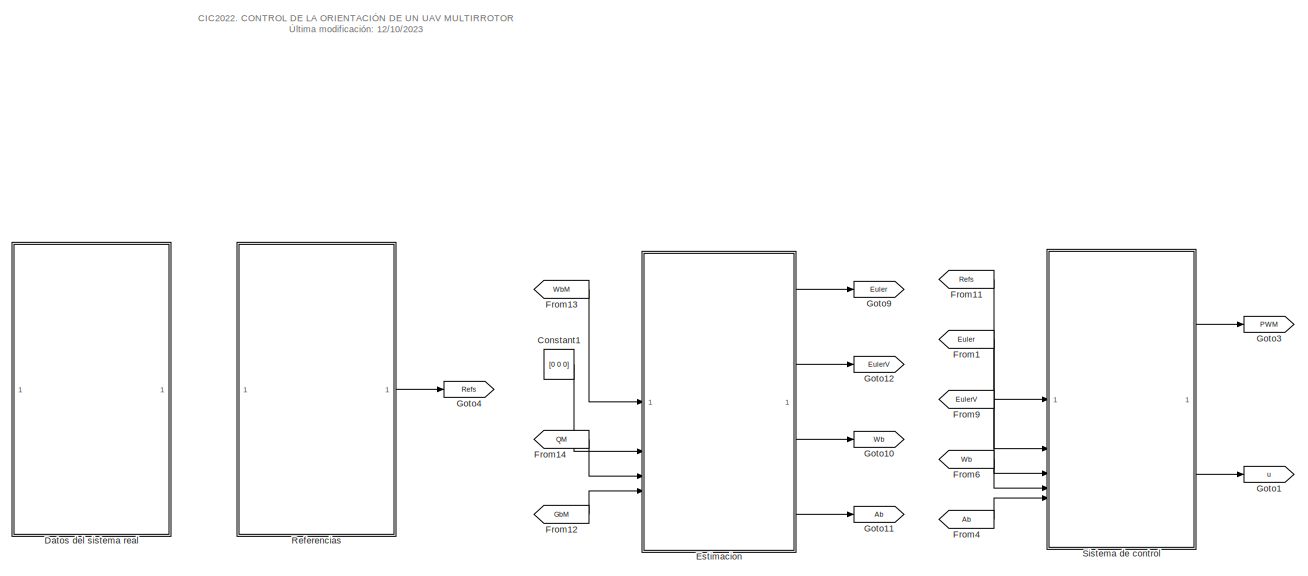
[diagram: root canvas - part 1/2, left side, full height]
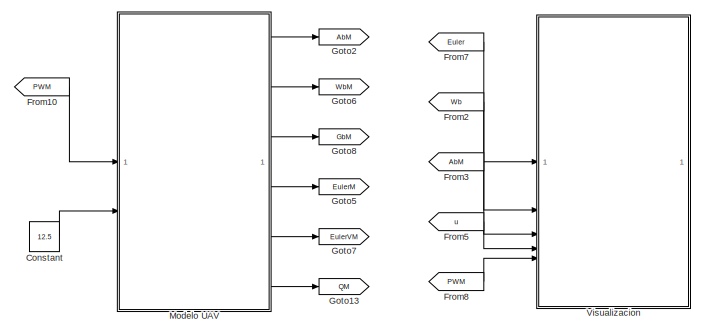
[diagram: root canvas - part 2/2, bottom right region]
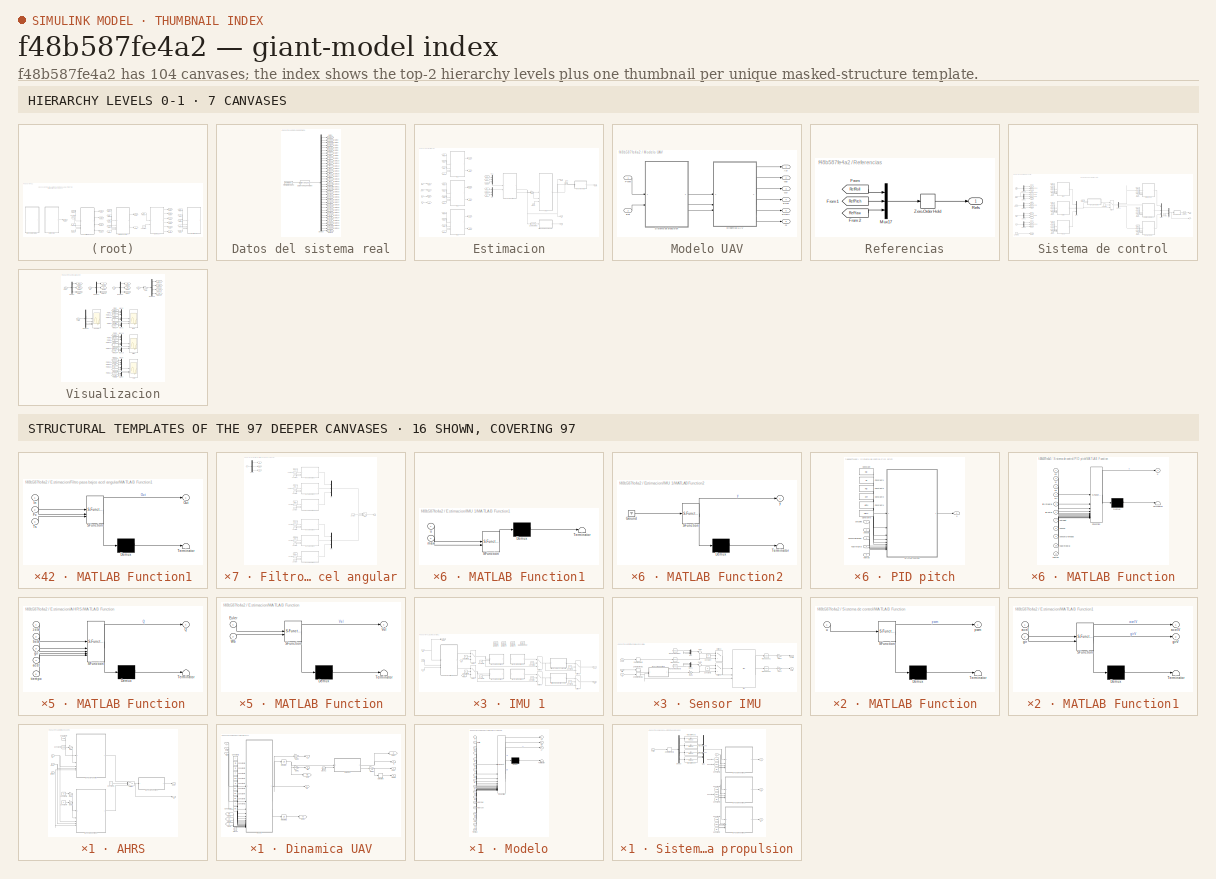
[diagram: thumbnail index - top-2 hierarchy levels (7 canvases) + 16 structural-template representatives of the remaining 97 canvases]
MODEL slx_f48b587fe4a2
KIND model
CONFIG AbsTol = auto
CONFIG EnableMultiTasking = off
CONFIG FixedStep = Ts
CONFIG MaxStep = auto
CONFIG MinStep = auto
CONFIG RelTol = 1e-3
CONFIG SampleTimeConstraint = Unconstrained
CONFIG SolverName = FixedStepAuto
CONFIG StartTime = 0.0
CONFIG StopTime = 70
BLOCK [Constant] Constant
  Value = 12.5
BLOCK [Constant] Constant1
  Value = [0 0 0]
BLOCK [SubSystem] Datos del sistema real
BLOCK [DataTypeConversion] Datos del sistema real/Data Type Conversion
  OutDataTypeStr = double
  RndMeth = Floor
  SaturateOnIntegerOverflow = off
BLOCK [Demux] Datos del sistema real/Demux
  Outputs = 38
BLOCK [FromWorkspace] Datos del sistema real/From Workspace
  SampleTime = Ts
  VariableName = Datos
BLOCK [Goto] Datos del sistema real/Goto1
  GotoTag = RefRoll
  TagVisibility = global
BLOCK [Goto] Datos del sistema real/Goto10
  GotoTag = pImu1
  TagVisibility = global
BLOCK [Goto] Datos del sistema real/Goto11
  GotoTag = qImu1
  TagVisibility = global
BLOCK [Goto] Datos del sistema real/Goto12
  GotoTag = rImu1
  TagVisibility = global
BLOCK [Goto] Datos del sistema real/Goto13
  GotoTag = mxVirt
  TagVisibility = global
BLOCK [Goto] Datos del sistema real/Goto14
  GotoTag = myVirt
  TagVisibility = global
BLOCK [Goto] Datos del sistema real/Goto15
  GotoTag = mzVirt
  TagVisibility = global
BLOCK [Goto] Datos del sistema real/Goto2
  GotoTag = RefPitch
  TagVisibility = global
BLOCK [Goto] Datos del sistema real/Goto21
  GotoTag = pImu2
  TagVisibility = global
BLOCK [Goto] Datos del sistema real/Goto22
  GotoTag = qImu2
  TagVisibility = global
BLOCK [Goto] Datos del sistema real/Goto26
  GotoTag = rImu2
  TagVisibility = global
BLOCK [Goto] Datos del sistema real/Goto27
  GotoTag = pImu3
  TagVisibility = global
BLOCK [Goto] Datos del sistema real/Goto28
  GotoTag = qImu3
  TagVisibility = global
BLOCK [Goto] Datos del sistema real/Goto29
  GotoTag = rImu3
  TagVisibility = global
BLOCK [Goto] Datos del sistema real/Goto3
  GotoTag = RefYaw
  TagVisibility = global
BLOCK [Goto] Datos del sistema real/Goto30
  GotoTag = axImuVirt
  TagVisibility = global
BLOCK [Goto] Datos del sistema real/Goto31
  GotoTag = ayImuVirt
  TagVisibility = global
BLOCK [Goto] Datos del sistema real/Goto32
  GotoTag = azImuVirt
  TagVisibility = global
BLOCK [Goto] Datos del sistema real/Goto33
  GotoTag = axImu1
  TagVisibility = global
BLOCK [Goto] Datos del sistema real/Goto34
  GotoTag = ayImu1
  TagVisibility = global
BLOCK [Goto] Datos del sistema real/Goto35
  GotoTag = azImu1
  TagVisibility = global
BLOCK [Goto] Datos del sistema real/Goto36
  GotoTag = axImu2
  TagVisibility = global
BLOCK [Goto] Datos del sistema real/Goto37
  GotoTag = ayImu2
  TagVisibility = global
BLOCK [Goto] Datos del sistema real/Goto38
  GotoTag = azImu2
  TagVisibility = global
BLOCK [Goto] Datos del sistema real/Goto39
  GotoTag = axImu3
  TagVisibility = global
BLOCK [Goto] Datos del sistema real/Goto4
  GotoTag = RollObj
  TagVisibility = global
BLOCK [Goto] Datos del sistema real/Goto40
  GotoTag = ayImu3
  TagVisibility = global
BLOCK [Goto] Datos del sistema real/Goto41
  GotoTag = azImu3
  TagVisibility = global
BLOCK [Goto] Datos del sistema real/Goto42
  GotoTag = uRollObj
  TagVisibility = global
BLOCK [Goto] Datos del sistema real/Goto43
  GotoTag = uPitchObj
  TagVisibility = global
BLOCK [Goto] Datos del sistema real/Goto44
  GotoTag = uYawObj
  TagVisibility = global
BLOCK [Goto] Datos del sistema real/Goto45
  GotoTag = uAltObj
  TagVisibility = global
BLOCK [Goto] Datos del sistema real/Goto5
  GotoTag = PitchObj
  TagVisibility = global
BLOCK [Goto] Datos del sistema real/Goto6
  GotoTag = YawObj
  TagVisibility = global
BLOCK [Goto] Datos del sistema real/Goto7
  GotoTag = pObj
  TagVisibility = global
BLOCK [Goto] Datos del sistema real/Goto8
  GotoTag = qObj
  TagVisibility = global
BLOCK [Goto] Datos del sistema real/Goto9
  GotoTag = rObj
  TagVisibility = global
BLOCK [SubSystem] Estimacion
BLOCK [SubSystem] Estimacion/AHRS
  SystemSampleTime = TsPos
  TreatAsAtomicUnit = on
BLOCK [Constant] Estimacion/AHRS/Constant1
  Value = T
BLOCK [Constant] Estimacion/AHRS/Constant2
  Value = Beta
BLOCK [Constant] Estimacion/AHRS/Constant3
  Value = Zeta
BLOCK [Constant] Estimacion/AHRS/Constant4
  Value = Ki
BLOCK [Constant] Estimacion/AHRS/Constant5
  Value = Kp
BLOCK [Outport] Estimacion/AHRS/Euler
BLOCK [Gain] Estimacion/AHRS/Gain
  Gain = 2
BLOCK [Gain] Estimacion/AHRS/Gain1
  Gain = 2
BLOCK [Gain] Estimacion/AHRS/Gain2
  Gain = 2
BLOCK [SubSystem] Estimacion/AHRS/MATLAB Function
  ErrorFcn = Stateflow.Translate.translate
  PermitHierarchicalResolution = ExplicitOnly
  SFBlockType = MATLAB Function
BLOCK [Demux] Estimacion/AHRS/MATLAB Function/ Demux 
  Outputs = 1
BLOCK [S-Function] Estimacion/AHRS/MATLAB Function/ SFunction 
  EnableBusSupport = on
  FunctionName = sf_sfun
  PortCounts = [5 2]
  SFcnIsStateOwnerBlock = off
  SFunctionDeploymentMode = off
  Tag = Stateflow S-Function 1
BLOCK [Terminator] Estimacion/AHRS/MATLAB Function/ Terminator 
BLOCK [Outport] Estimacion/AHRS/MATLAB Function/Q
BLOCK [Inport] Estimacion/AHRS/MATLAB Function/acel
  Port = 4
BLOCK [Inport] Estimacion/AHRS/MATLAB Function/beta
  Port = 2
BLOCK [Inport] Estimacion/AHRS/MATLAB Function/gir
  Port = 3
BLOCK [Inport] Estimacion/AHRS/MATLAB Function/tiempo
  Port = 5
BLOCK [Inport] Estimacion/AHRS/MATLAB Function/zeta
BLOCK [SubSystem] Estimacion/AHRS/MATLAB Function2
  ErrorFcn = Stateflow.Translate.translate
  PermitHierarchicalResolution = ExplicitOnly
  SFBlockType = MATLAB Function
BLOCK [Demux] Estimacion/AHRS/MATLAB Function2/ Demux 
  Outputs = 1
BLOCK [S-Function] Estimacion/AHRS/MATLAB Function2/ SFunction 
  EnableBusSupport = on
  FunctionName = sf_sfun
  PortCounts = [5 2]
  SFcnIsStateOwnerBlock = off
  SFunctionDeploymentMode = off
  Tag = Stateflow S-Function 6
BLOCK [Terminator] Estimacion/AHRS/MATLAB Function2/ Terminator 
BLOCK [Outport] Estimacion/AHRS/MATLAB Function2/Q
BLOCK [Inport] Estimacion/AHRS/MATLAB Function2/acel
  Port = 4
BLOCK [Inport] Estimacion/AHRS/MATLAB Function2/gir
  Port = 3
BLOCK [Inport] Estimacion/AHRS/MATLAB Function2/ki
  Port = 2
BLOCK [Inport] Estimacion/AHRS/MATLAB Function2/kp
BLOCK [Inport] Estimacion/AHRS/MATLAB Function2/tiempo
  Port = 5
BLOCK [SubSystem] Estimacion/AHRS/MATLAB Function4
  ErrorFcn = Stateflow.Translate.translate
  PermitHierarchicalResolution = ExplicitOnly
  SFBlockType = MATLAB Function
BLOCK [Demux] Estimacion/AHRS/MATLAB Function4/ Demux 
  Outputs = 1
BLOCK [S-Function] Estimacion/AHRS/MATLAB Function4/ SFunction 
  EnableBusSupport = on
  FunctionName = sf_sfun
  PortCounts = [1 2]
  SFcnIsStateOwnerBlock = off
  SFunctionDeploymentMode = off
  Tag = Stateflow S-Function 10
BLOCK [Terminator] Estimacion/AHRS/MATLAB Function4/ Terminator 
BLOCK [Outport] Estimacion/AHRS/MATLAB Function4/Euler
BLOCK [Inport] Estimacion/AHRS/MATLAB Function4/Q
BLOCK [Outport] Estimacion/AHRS/Q
  Port = 2
BLOCK [Switch] Estimacion/AHRS/Switch
  Criteria = u2 > Threshold
  InputSameDT = off
  SaturateOnIntegerOverflow = off
BLOCK [Inport] Estimacion/AHRS/acel
BLOCK [Inport] Estimacion/AHRS/gir
  Port = 2
BLOCK [Inport] Estimacion/AHRS/tiempo
  Port = 3
BLOCK [Outport] Estimacion/Ab
  Port = 4
BLOCK [Clock] Estimacion/Clock2
BLOCK [Reference] Estimacion/Discrete Derivative  REF=simulink/Discrete/Discrete Derivative
  SourceBlock = simulink/Discrete/Discrete Derivative
  SourceType = Discrete Derivative
BLOCK [Outport] Estimacion/Euler
BLOCK [Outport] Estimacion/EulerV
  Port = 2
BLOCK [SubSystem] Estimacion/Filtro pasa bajos acel angular
  SystemSampleTime = TsVel
  TreatAsAtomicUnit = on
BLOCK [Constant] Estimacion/Filtro pasa bajos acel angular/Constant
  Value = P
BLOCK [Constant] Estimacion/Filtro pasa bajos acel angular/Constant1
  Value = Fc
BLOCK [Constant] Estimacion/Filtro pasa bajos acel angular/Constant10
  Value = Fc
BLOCK [Constant] Estimacion/Filtro pasa bajos acel angular/Constant11
  Value = Fc
BLOCK [Constant] Estimacion/Filtro pasa bajos acel angular/Constant12
  Value = TsF
BLOCK [Constant] Estimacion/Filtro pasa bajos acel angular/Constant2
  Value = TsF
BLOCK [Constant] Estimacion/Filtro pasa bajos acel angular/Constant3
  Value = Fc
BLOCK [Constant] Estimacion/Filtro pasa bajos acel angular/Constant4
  Value = TsF
BLOCK [Constant] Estimacion/Filtro pasa bajos acel angular/Constant5
  Value = TsF
BLOCK [Constant] Estimacion/Filtro pasa bajos acel angular/Constant6
  Value = Fc
BLOCK [Constant] Estimacion/Filtro pasa bajos acel angular/Constant7
  Value = TsF
BLOCK [Constant] Estimacion/Filtro pasa bajos acel angular/Constant8
  Value = Fc
BLOCK [Constant] Estimacion/Filtro pasa bajos acel angular/Constant9
  Value = TsF
BLOCK [Demux] Estimacion/Filtro pasa bajos acel angular/Demux
  Outputs = 3
BLOCK [From] Estimacion/Filtro pasa bajos acel angular/From1
  GotoTag = In2
BLOCK [From] Estimacion/Filtro pasa bajos acel angular/From10
  GotoTag = In1
BLOCK [From] Estimacion/Filtro pasa bajos acel angular/From11
  GotoTag = In3
BLOCK [From] Estimacion/Filtro pasa bajos acel angular/From13
  GotoTag = In1
BLOCK [From] Estimacion/Filtro pasa bajos acel angular/From2
  GotoTag = In3
BLOCK [From] Estimacion/Filtro pasa bajos acel angular/From9
  GotoTag = In2
BLOCK [Goto] Estimacion/Filtro pasa bajos acel angular/Goto1
  GotoTag = In2
BLOCK [Goto] Estimacion/Filtro pasa bajos acel angular/Goto2
  GotoTag = In3
BLOCK [Goto] Estimacion/Filtro pasa bajos acel angular/Goto4
  GotoTag = In1
BLOCK [Inport] Estimacion/Filtro pasa bajos acel angular/In
BLOCK [SubSystem] Estimacion/Filtro pasa bajos acel angular/MATLAB Function1
  ErrorFcn = Stateflow.Translate.translate
  LibrarySourceBlock = simulink/User-Defined\nFunctions/MATLAB Function
  PermitHierarchicalResolution = ExplicitOnly
  SFBlockType = MATLAB Function
  TreatAsAtomicUnit = on
BLOCK [Demux] Estimacion/Filtro pasa bajos acel angular/MATLAB Function1/ Demux 
  Outputs = 1
BLOCK [S-Function] Estimacion/Filtro pasa bajos acel angular/MATLAB Function1/ SFunction 
  EnableBusSupport = on
  FunctionName = sf_sfun
  PortCounts = [3 2]
  SFcnIsStateOwnerBlock = off
  SFunctionDeploymentMode = off
  Tag = Stateflow S-Function 52
BLOCK [Terminator] Estimacion/Filtro pasa bajos acel angular/MATLAB Function1/ Terminator 
BLOCK [Inport] Estimacion/Filtro pasa bajos acel angular/MATLAB Function1/Fc
  Port = 2
BLOCK [Inport] Estimacion/Filtro pasa bajos acel angular/MATLAB Function1/In
BLOCK [Outport] Estimacion/Filtro pasa bajos acel angular/MATLAB Function1/Out
BLOCK [Inport] Estimacion/Filtro pasa bajos acel angular/MATLAB Function1/Ts
  Port = 3
BLOCK [SubSystem] Estimacion/Filtro pasa bajos acel angular/MATLAB Function2
  ErrorFcn = Stateflow.Translate.translate
  LibrarySourceBlock = simulink/User-Defined\nFunctions/MATLAB Function
  PermitHierarchicalResolution = ExplicitOnly
  SFBlockType = MATLAB Function
  TreatAsAtomicUnit = on
BLOCK [Demux] Estimacion/Filtro pasa bajos acel angular/MATLAB Function2/ Demux 
  Outputs = 1
BLOCK [S-Function] Estimacion/Filtro pasa bajos acel angular/MATLAB Function2/ SFunction 
  EnableBusSupport = on
  FunctionName = sf_sfun
  PortCounts = [3 2]
  SFcnIsStateOwnerBlock = off
  SFunctionDeploymentMode = off
  Tag = Stateflow S-Function 53
BLOCK [Terminator] Estimacion/Filtro pasa bajos acel angular/MATLAB Function2/ Terminator 
BLOCK [Inport] Estimacion/Filtro pasa bajos acel angular/MATLAB Function2/Fc
  Port = 2
BLOCK [Inport] Estimacion/Filtro pasa bajos acel angular/MATLAB Function2/In
BLOCK [Outport] Estimacion/Filtro pasa bajos acel angular/MATLAB Function2/Out
BLOCK [Inport] Estimacion/Filtro pasa bajos acel angular/MATLAB Function2/Ts
  Port = 3
BLOCK [SubSystem] Estimacion/Filtro pasa bajos acel angular/MATLAB Function3
  ErrorFcn = Stateflow.Translate.translate
  LibrarySourceBlock = simulink/User-Defined\nFunctions/MATLAB Function
  PermitHierarchicalResolution = ExplicitOnly
  SFBlockType = MATLAB Function
  TreatAsAtomicUnit = on
BLOCK [Demux] Estimacion/Filtro pasa bajos acel angular/MATLAB Function3/ Demux 
  Outputs = 1
BLOCK [S-Function] Estimacion/Filtro pasa bajos acel angular/MATLAB Function3/ SFunction 
  EnableBusSupport = on
  FunctionName = sf_sfun
  PortCounts = [3 2]
  SFcnIsStateOwnerBlock = off
  SFunctionDeploymentMode = off
  Tag = Stateflow S-Function 54
BLOCK [Terminator] Estimacion/Filtro pasa bajos acel angular/MATLAB Function3/ Terminator 
BLOCK [Inport] Estimacion/Filtro pasa bajos acel angular/MATLAB Function3/Fc
  Port = 2
BLOCK [Inport] Estimacion/Filtro pasa bajos acel angular/MATLAB Function3/In
BLOCK [Outport] Estimacion/Filtro pasa bajos acel angular/MATLAB Function3/Out
BLOCK [Inport] Estimacion/Filtro pasa bajos acel angular/MATLAB Function3/Ts
  Port = 3
BLOCK [SubSystem] Estimacion/Filtro pasa bajos acel angular/MATLAB Function4
  ErrorFcn = Stateflow.Translate.translate
  LibrarySourceBlock = simulink/User-Defined\nFunctions/MATLAB Function
  PermitHierarchicalResolution = ExplicitOnly
  SFBlockType = MATLAB Function
  TreatAsAtomicUnit = on
BLOCK [Demux] Estimacion/Filtro pasa bajos acel angular/MATLAB Function4/ Demux 
  Outputs = 1
BLOCK [S-Function] Estimacion/Filtro pasa bajos acel angular/MATLAB Function4/ SFunction 
  EnableBusSupport = on
  FunctionName = sf_sfun
  PortCounts = [3 2]
  SFcnIsStateOwnerBlock = off
  SFunctionDeploymentMode = off
  Tag = Stateflow S-Function 55
BLOCK [Terminator] Estimacion/Filtro pasa bajos acel angular/MATLAB Function4/ Terminator 
BLOCK [Inport] Estimacion/Filtro pasa bajos acel angular/MATLAB Function4/Fc
  Port = 2
BLOCK [Inport] Estimacion/Filtro pasa bajos acel angular/MATLAB Function4/In
BLOCK [Outport] Estimacion/Filtro pasa bajos acel angular/MATLAB Function4/Out
BLOCK [Inport] Estimacion/Filtro pasa bajos acel angular/MATLAB Function4/Ts
  Port = 3
BLOCK [SubSystem] Estimacion/Filtro pasa bajos acel angular/MATLAB Function5
  ErrorFcn = Stateflow.Translate.translate
  LibrarySourceBlock = simulink/User-Defined\nFunctions/MATLAB Function
  PermitHierarchicalResolution = ExplicitOnly
  SFBlockType = MATLAB Function
  TreatAsAtomicUnit = on
BLOCK [Demux] Estimacion/Filtro pasa bajos acel angular/MATLAB Function5/ Demux 
  Outputs = 1
BLOCK [S-Function] Estimacion/Filtro pasa bajos acel angular/MATLAB Function5/ SFunction 
  EnableBusSupport = on
  FunctionName = sf_sfun
  PortCounts = [3 2]
  SFcnIsStateOwnerBlock = off
  SFunctionDeploymentMode = off
  Tag = Stateflow S-Function 56
BLOCK [Terminator] Estimacion/Filtro pasa bajos acel angular/MATLAB Function5/ Terminator 
BLOCK [Inport] Estimacion/Filtro pasa bajos acel angular/MATLAB Function5/Fc
  Port = 2
BLOCK [Inport] Estimacion/Filtro pasa bajos acel angular/MATLAB Function5/In
BLOCK [Outport] Estimacion/Filtro pasa bajos acel angular/MATLAB Function5/Out
BLOCK [Inport] Estimacion/Filtro pasa bajos acel angular/MATLAB Function5/Ts
  Port = 3
BLOCK [SubSystem] Estimacion/Filtro pasa bajos acel angular/MATLAB Function6
  ErrorFcn = Stateflow.Translate.translate
  LibrarySourceBlock = simulink/User-Defined\nFunctions/MATLAB Function
  PermitHierarchicalResolution = ExplicitOnly
  SFBlockType = MATLAB Function
  TreatAsAtomicUnit = on
BLOCK [Demux] Estimacion/Filtro pasa bajos acel angular/MATLAB Function6/ Demux 
  Outputs = 1
BLOCK [S-Function] Estimacion/Filtro pasa bajos acel angular/MATLAB Function6/ SFunction 
  EnableBusSupport = on
  FunctionName = sf_sfun
  PortCounts = [3 2]
  SFcnIsStateOwnerBlock = off
  SFunctionDeploymentMode = off
  Tag = Stateflow S-Function 57
BLOCK [Terminator] Estimacion/Filtro pasa bajos acel angular/MATLAB Function6/ Terminator 
BLOCK [Inport] Estimacion/Filtro pasa bajos acel angular/MATLAB Function6/Fc
  Port = 2
BLOCK [Inport] Estimacion/Filtro pasa bajos acel angular/MATLAB Function6/In
BLOCK [Outport] Estimacion/Filtro pasa bajos acel angular/MATLAB Function6/Out
BLOCK [Inport] Estimacion/Filtro pasa bajos acel angular/MATLAB Function6/Ts
  Port = 3
BLOCK [Mux] Estimacion/Filtro pasa bajos acel angular/Mux
  DisplayOption = bar
  Inputs = 3
BLOCK [Mux] Estimacion/Filtro pasa bajos acel angular/Mux1
  DisplayOption = bar
  Inputs = 3
BLOCK [Switch] Estimacion/Filtro pasa bajos acel angular/Switch
  Criteria = u2 > Threshold
  InputSameDT = off
  SaturateOnIntegerOverflow = off
  Threshold = 1
BLOCK [Outport] Estimacion/Filtro pasa bajos acel angular/value
BLOCK [From] Estimacion/From1
  GotoTag = gir
BLOCK [From] Estimacion/From10
  GotoTag = Q
BLOCK [From] Estimacion/From11
  GotoTag = Q
BLOCK [From] Estimacion/From12
  GotoTag = Q
BLOCK [From] Estimacion/From13
  GotoTag = gir1
BLOCK [From] Estimacion/From14
  GotoTag = gir2
BLOCK [From] Estimacion/From15
  GotoTag = gir3
BLOCK [From] Estimacion/From16
  GotoTag = acel1
BLOCK [From] Estimacion/From17
  GotoTag = acel2
BLOCK [From] Estimacion/From18
  GotoTag = acel3
BLOCK [From] Estimacion/From2
  GotoTag = acel
BLOCK [From] Estimacion/From3
  GotoTag = gir
BLOCK [From] Estimacion/From4
  GotoTag = gir
BLOCK [From] Estimacion/From5
  GotoTag = acel
BLOCK [From] Estimacion/From6
  GotoTag = acel
BLOCK [From] Estimacion/From7
  GotoTag = Gb
BLOCK [From] Estimacion/From8
  GotoTag = Gb
BLOCK [From] Estimacion/From9
  GotoTag = Gb
BLOCK [Gain] Estimacion/Gain5
  Gain = pi/180
BLOCK [Gain] Estimacion/Gain6
  Gain = pi/180
BLOCK [Inport] Estimacion/Gb
  Port = 4
BLOCK [Goto] Estimacion/Goto1
  GotoTag = acel
BLOCK [Goto] Estimacion/Goto10
  GotoTag = gir3
BLOCK [Goto] Estimacion/Goto2
  GotoTag = Gb
BLOCK [Goto] Estimacion/Goto3
  GotoTag = Q
BLOCK [Goto] Estimacion/Goto4
  GotoTag = acel1
BLOCK [Goto] Estimacion/Goto5
  GotoTag = acel2
BLOCK [Goto] Estimacion/Goto6
  GotoTag = acel3
BLOCK [Goto] Estimacion/Goto7
  GotoTag = gir1
BLOCK [Goto] Estimacion/Goto8
  GotoTag = gir2
BLOCK [Goto] Estimacion/Goto9
  GotoTag = gir
BLOCK [SubSystem] Estimacion/IMU 1
BLOCK [Outport] Estimacion/IMU 1/Acel
BLOCK [Inport] Estimacion/IMU 1/AcelT
  Port = 2
BLOCK [Constant] Estimacion/IMU 1/Constant
  Value = ESM
BLOCK [Constant] Estimacion/IMU 1/Constant1
  Value = 20
BLOCK [Constant] Estimacion/IMU 1/Constant2
  Value = 20
BLOCK [Constant] Estimacion/IMU 1/Constant3
  Value = ESM
BLOCK [Constant] Estimacion/IMU 1/Constant4
  Value = EF
BLOCK [Constant] Estimacion/IMU 1/Constant5
  Value = E
BLOCK [Constant] Estimacion/IMU 1/Constant6
  Value = EF
BLOCK [Constant] Estimacion/IMU 1/Constant7
  Value = E
BLOCK [DataStoreMemory] Estimacion/IMU 1/Data Store Memory
  DataStoreName = acumW1
  Dimensions = 3
  InitialValue = [0 0 0]
  OutDataTypeStr = double
  ShowAdditionalParam = off
  SignalType = real
  WriteAfterWriteMsg = warning
BLOCK [DataStoreMemory] Estimacion/IMU 1/Data Store Memory1
  DataStoreName = cntW1
  OutDataTypeStr = double
  ShowAdditionalParam = off
  SignalType = real
  WriteAfterWriteMsg = warning
BLOCK [DataStoreMemory] Estimacion/IMU 1/Data Store Memory2
  DataStoreName = acumA1
  Dimensions = 3
  InitialValue = [0 0 0]
  OutDataTypeStr = double
  ShowAdditionalParam = off
  SignalType = real
  WriteAfterWriteMsg = warning
BLOCK [DataStoreMemory] Estimacion/IMU 1/Data Store Memory3
  DataStoreName = cntA1
  OutDataTypeStr = double
  ShowAdditionalParam = off
  SignalType = real
  WriteAfterWriteMsg = warning
BLOCK [SubSystem] Estimacion/IMU 1/Filtro pasa bajos  acelerometro
  SystemSampleTime = TsSenF
  TreatAsAtomicUnit = on
BLOCK [Constant] Estimacion/IMU 1/Filtro pasa bajos  acelerometro/Constant
  Value = P
BLOCK [Constant] Estimacion/IMU 1/Filtro pasa bajos  acelerometro/Constant1
  Value = Fc
BLOCK [Constant] Estimacion/IMU 1/Filtro pasa bajos  acelerometro/Constant10
  Value = Fc
BLOCK [Constant] Estimacion/IMU 1/Filtro pasa bajos  acelerometro/Constant11
  Value = Fc
BLOCK [Constant] Estimacion/IMU 1/Filtro pasa bajos  acelerometro/Constant12
  Value = TsF
BLOCK [Constant] Estimacion/IMU 1/Filtro pasa bajos  acelerometro/Constant2
  Value = TsF
BLOCK [Constant] Estimacion/IMU 1/Filtro pasa bajos  acelerometro/Constant3
  Value = Fc
BLOCK [Constant] Estimacion/IMU 1/Filtro pasa bajos  acelerometro/Constant4
  Value = TsF
BLOCK [Constant] Estimacion/IMU 1/Filtro pasa bajos  acelerometro/Constant5
  Value = TsF
BLOCK [Constant] Estimacion/IMU 1/Filtro pasa bajos  acelerometro/Constant6
  Value = Fc
BLOCK [Constant] Estimacion/IMU 1/Filtro pasa bajos  acelerometro/Constant7
  Value = TsF
BLOCK [Constant] Estimacion/IMU 1/Filtro pasa bajos  acelerometro/Constant8
  Value = Fc
BLOCK [Constant] Estimacion/IMU 1/Filtro pasa bajos  acelerometro/Constant9
  Value = TsF
BLOCK [Demux] Estimacion/IMU 1/Filtro pasa bajos  acelerometro/Demux
  Outputs = 3
BLOCK [From] Estimacion/IMU 1/Filtro pasa bajos  acelerometro/From1
  GotoTag = In2
BLOCK [From] Estimacion/IMU 1/Filtro pasa bajos  acelerometro/From10
  GotoTag = In1
BLOCK [From] Estimacion/IMU 1/Filtro pasa bajos  acelerometro/From11
  GotoTag = In3
BLOCK [From] Estimacion/IMU 1/Filtro pasa bajos  acelerometro/From13
  GotoTag = In1
BLOCK [From] Estimacion/IMU 1/Filtro pasa bajos  acelerometro/From2
  GotoTag = In3
BLOCK [From] Estimacion/IMU 1/Filtro pasa bajos  acelerometro/From9
  GotoTag = In2
BLOCK [Goto] Estimacion/IMU 1/Filtro pasa bajos  acelerometro/Goto1
  GotoTag = In2
BLOCK [Goto] Estimacion/IMU 1/Filtro pasa bajos  acelerometro/Goto2
  GotoTag = In3
BLOCK [Goto] Estimacion/IMU 1/Filtro pasa bajos  acelerometro/Goto4
  GotoTag = In1
BLOCK [Inport] Estimacion/IMU 1/Filtro pasa bajos  acelerometro/In
BLOCK [SubSystem] Estimacion/IMU 1/Filtro pasa bajos  acelerometro/MATLAB Function1
  ErrorFcn = Stateflow.Translate.translate
  LibrarySourceBlock = simulink/User-Defined\nFunctions/MATLAB Function
  PermitHierarchicalResolution = ExplicitOnly
  SFBlockType = MATLAB Function
  TreatAsAtomicUnit = on
BLOCK [Demux] Estimacion/IMU 1/Filtro pasa bajos  acelerometro/MATLAB Function1/ Demux 
  Outputs = 1
BLOCK [S-Function] Estimacion/IMU 1/Filtro pasa bajos  acelerometro/MATLAB Function1/ SFunction 
  EnableBusSupport = on
  FunctionName = sf_sfun
  PortCounts = [3 2]
  SFcnIsStateOwnerBlock = off
  SFunctionDeploymentMode = off
  Tag = Stateflow S-Function 11
BLOCK [Terminator] Estimacion/IMU 1/Filtro pasa bajos  acelerometro/MATLAB Function1/ Terminator 
BLOCK [Inport] Estimacion/IMU 1/Filtro pasa bajos  acelerometro/MATLAB Function1/Fc
  Port = 2
BLOCK [Inport] Estimacion/IMU 1/Filtro pasa bajos  acelerometro/MATLAB Function1/In
BLOCK [Outport] Estimacion/IMU 1/Filtro pasa bajos  acelerometro/MATLAB Function1/Out
BLOCK [Inport] Estimacion/IMU 1/Filtro pasa bajos  acelerometro/MATLAB Function1/Ts
  Port = 3
BLOCK [SubSystem] Estimacion/IMU 1/Filtro pasa bajos  acelerometro/MATLAB Function2
  ErrorFcn = Stateflow.Translate.translate
  LibrarySourceBlock = simulink/User-Defined\nFunctions/MATLAB Function
  PermitHierarchicalResolution = ExplicitOnly
  SFBlockType = MATLAB Function
  TreatAsAtomicUnit = on
BLOCK [Demux] Estimacion/IMU 1/Filtro pasa bajos  acelerometro/MATLAB Function2/ Demux 
  Outputs = 1
BLOCK [S-Function] Estimacion/IMU 1/Filtro pasa bajos  acelerometro/MATLAB Function2/ SFunction 
  EnableBusSupport = on
  FunctionName = sf_sfun
  PortCounts = [3 2]
  SFcnIsStateOwnerBlock = off
  SFunctionDeploymentMode = off
  Tag = Stateflow S-Function 47
BLOCK [Terminator] Estimacion/IMU 1/Filtro pasa bajos  acelerometro/MATLAB Function2/ Terminator 
BLOCK [Inport] Estimacion/IMU 1/Filtro pasa bajos  acelerometro/MATLAB Function2/Fc
  Port = 2
BLOCK [Inport] Estimacion/IMU 1/Filtro pasa bajos  acelerometro/MATLAB Function2/In
BLOCK [Outport] Estimacion/IMU 1/Filtro pasa bajos  acelerometro/MATLAB Function2/Out
BLOCK [Inport] Estimacion/IMU 1/Filtro pasa bajos  acelerometro/MATLAB Function2/Ts
  Port = 3
BLOCK [SubSystem] Estimacion/IMU 1/Filtro pasa bajos  acelerometro/MATLAB Function3
  ErrorFcn = Stateflow.Translate.translate
  LibrarySourceBlock = simulink/User-Defined\nFunctions/MATLAB Function
  PermitHierarchicalResolution = ExplicitOnly
  SFBlockType = MATLAB Function
  TreatAsAtomicUnit = on
BLOCK [Demux] Estimacion/IMU 1/Filtro pasa bajos  acelerometro/MATLAB Function3/ Demux 
  Outputs = 1
BLOCK [S-Function] Estimacion/IMU 1/Filtro pasa bajos  acelerometro/MATLAB Function3/ SFunction 
  EnableBusSupport = on
  FunctionName = sf_sfun
  PortCounts = [3 2]
  SFcnIsStateOwnerBlock = off
  SFunctionDeploymentMode = off
  Tag = Stateflow S-Function 48
BLOCK [Terminator] Estimacion/IMU 1/Filtro pasa bajos  acelerometro/MATLAB Function3/ Terminator 
BLOCK [Inport] Estimacion/IMU 1/Filtro pasa bajos  acelerometro/MATLAB Function3/Fc
  Port = 2
BLOCK [Inport] Estimacion/IMU 1/Filtro pasa bajos  acelerometro/MATLAB Function3/In
BLOCK [Outport] Estimacion/IMU 1/Filtro pasa bajos  acelerometro/MATLAB Function3/Out
BLOCK [Inport] Estimacion/IMU 1/Filtro pasa bajos  acelerometro/MATLAB Function3/Ts
  Port = 3
BLOCK [SubSystem] Estimacion/IMU 1/Filtro pasa bajos  acelerometro/MATLAB Function4
  ErrorFcn = Stateflow.Translate.translate
  LibrarySourceBlock = simulink/User-Defined\nFunctions/MATLAB Function
  PermitHierarchicalResolution = ExplicitOnly
  SFBlockType = MATLAB Function
  TreatAsAtomicUnit = on
BLOCK [Demux] Estimacion/IMU 1/Filtro pasa bajos  acelerometro/MATLAB Function4/ Demux 
  Outputs = 1
BLOCK [S-Function] Estimacion/IMU 1/Filtro pasa bajos  acelerometro/MATLAB Function4/ SFunction 
  EnableBusSupport = on
  FunctionName = sf_sfun
  PortCounts = [3 2]
  SFcnIsStateOwnerBlock = off
  SFunctionDeploymentMode = off
  Tag = Stateflow S-Function 49
BLOCK [Terminator] Estimacion/IMU 1/Filtro pasa bajos  acelerometro/MATLAB Function4/ Terminator 
BLOCK [Inport] Estimacion/IMU 1/Filtro pasa bajos  acelerometro/MATLAB Function4/Fc
  Port = 2
BLOCK [Inport] Estimacion/IMU 1/Filtro pasa bajos  acelerometro/MATLAB Function4/In
BLOCK [Outport] Estimacion/IMU 1/Filtro pasa bajos  acelerometro/MATLAB Function4/Out
BLOCK [Inport] Estimacion/IMU 1/Filtro pasa bajos  acelerometro/MATLAB Function4/Ts
  Port = 3
BLOCK [SubSystem] Estimacion/IMU 1/Filtro pasa bajos  acelerometro/MATLAB Function5
  ErrorFcn = Stateflow.Translate.translate
  LibrarySourceBlock = simulink/User-Defined\nFunctions/MATLAB Function
  PermitHierarchicalResolution = ExplicitOnly
  SFBlockType = MATLAB Function
  TreatAsAtomicUnit = on
BLOCK [Demux] Estimacion/IMU 1/Filtro pasa bajos  acelerometro/MATLAB Function5/ Demux 
  Outputs = 1
BLOCK [S-Function] Estimacion/IMU 1/Filtro pasa bajos  acelerometro/MATLAB Function5/ SFunction 
  EnableBusSupport = on
  FunctionName = sf_sfun
  PortCounts = [3 2]
  SFcnIsStateOwnerBlock = off
  SFunctionDeploymentMode = off
  Tag = Stateflow S-Function 50
BLOCK [Terminator] Estimacion/IMU 1/Filtro pasa bajos  acelerometro/MATLAB Function5/ Terminator 
BLOCK [Inport] Estimacion/IMU 1/Filtro pasa bajos  acelerometro/MATLAB Function5/Fc
  Port = 2
BLOCK [Inport] Estimacion/IMU 1/Filtro pasa bajos  acelerometro/MATLAB Function5/In
BLOCK [Outport] Estimacion/IMU 1/Filtro pasa bajos  acelerometro/MATLAB Function5/Out
BLOCK [Inport] Estimacion/IMU 1/Filtro pasa bajos  acelerometro/MATLAB Function5/Ts
  Port = 3
BLOCK [SubSystem] Estimacion/IMU 1/Filtro pasa bajos  acelerometro/MATLAB Function6
  ErrorFcn = Stateflow.Translate.translate
  LibrarySourceBlock = simulink/User-Defined\nFunctions/MATLAB Function
  PermitHierarchicalResolution = ExplicitOnly
  SFBlockType = MATLAB Function
  TreatAsAtomicUnit = on
BLOCK [Demux] Estimacion/IMU 1/Filtro pasa bajos  acelerometro/MATLAB Function6/ Demux 
  Outputs = 1
BLOCK [S-Function] Estimacion/IMU 1/Filtro pasa bajos  acelerometro/MATLAB Function6/ SFunction 
  EnableBusSupport = on
  FunctionName = sf_sfun
  PortCounts = [3 2]
  SFcnIsStateOwnerBlock = off
  SFunctionDeploymentMode = off
  Tag = Stateflow S-Function 51
BLOCK [Terminator] Estimacion/IMU 1/Filtro pasa bajos  acelerometro/MATLAB Function6/ Terminator 
BLOCK [Inport] Estimacion/IMU 1/Filtro pasa bajos  acelerometro/MATLAB Function6/Fc
  Port = 2
BLOCK [Inport] Estimacion/IMU 1/Filtro pasa bajos  acelerometro/MATLAB Function6/In
BLOCK [Outport] Estimacion/IMU 1/Filtro pasa bajos  acelerometro/MATLAB Function6/Out
BLOCK [Inport] Estimacion/IMU 1/Filtro pasa bajos  acelerometro/MATLAB Function6/Ts
  Port = 3
BLOCK [Mux] Estimacion/IMU 1/Filtro pasa bajos  acelerometro/Mux
  DisplayOption = bar
  Inputs = 3
BLOCK [Mux] Estimacion/IMU 1/Filtro pasa bajos  acelerometro/Mux1
  DisplayOption = bar
  Inputs = 3
BLOCK [Switch] Estimacion/IMU 1/Filtro pasa bajos  acelerometro/Switch
  Criteria = u2 > Threshold
  InputSameDT = off
  SaturateOnIntegerOverflow = off
  Threshold = 1
BLOCK [Outport] Estimacion/IMU 1/Filtro pasa bajos  acelerometro/value
BLOCK [SubSystem] Estimacion/IMU 1/Filtro pasa bajos giroscopio
  SystemSampleTime = TsSenF
  TreatAsAtomicUnit = on
BLOCK [Constant] Estimacion/IMU 1/Filtro pasa bajos giroscopio/Constant
  Value = P
BLOCK [Constant] Estimacion/IMU 1/Filtro pasa bajos giroscopio/Constant1
  Value = Fc
BLOCK [Constant] Estimacion/IMU 1/Filtro pasa bajos giroscopio/Constant10
  Value = Fc
BLOCK [Constant] Estimacion/IMU 1/Filtro pasa bajos giroscopio/Constant11
  Value = Fc
BLOCK [Constant] Estimacion/IMU 1/Filtro pasa bajos giroscopio/Constant12
  Value = TsF
BLOCK [Constant] Estimacion/IMU 1/Filtro pasa bajos giroscopio/Constant2
  Value = TsF
BLOCK [Constant] Estimacion/IMU 1/Filtro pasa bajos giroscopio/Constant3
  Value = Fc
BLOCK [Constant] Estimacion/IMU 1/Filtro pasa bajos giroscopio/Constant4
  Value = TsF
BLOCK [Constant] Estimacion/IMU 1/Filtro pasa bajos giroscopio/Constant5
  Value = TsF
BLOCK [Constant] Estimacion/IMU 1/Filtro pasa bajos giroscopio/Constant6
  Value = Fc
BLOCK [Constant] Estimacion/IMU 1/Filtro pasa bajos giroscopio/Constant7
  Value = TsF
BLOCK [Constant] Estimacion/IMU 1/Filtro pasa bajos giroscopio/Constant8
  Value = Fc
BLOCK [Constant] Estimacion/IMU 1/Filtro pasa bajos giroscopio/Constant9
  Value = TsF
BLOCK [Demux] Estimacion/IMU 1/Filtro pasa bajos giroscopio/Demux
  Outputs = 3
BLOCK [From] Estimacion/IMU 1/Filtro pasa bajos giroscopio/From1
  GotoTag = In2
BLOCK [From] Estimacion/IMU 1/Filtro pasa bajos giroscopio/From10
  GotoTag = In1
BLOCK [From] Estimacion/IMU 1/Filtro pasa bajos giroscopio/From11
  GotoTag = In3
BLOCK [From] Estimacion/IMU 1/Filtro pasa bajos giroscopio/From13
  GotoTag = In1
BLOCK [From] Estimacion/IMU 1/Filtro pasa bajos giroscopio/From2
  GotoTag = In3
BLOCK [From] Estimacion/IMU 1/Filtro pasa bajos giroscopio/From9
  GotoTag = In2
BLOCK [Goto] Estimacion/IMU 1/Filtro pasa bajos giroscopio/Goto1
  GotoTag = In2
BLOCK [Goto] Estimacion/IMU 1/Filtro pasa bajos giroscopio/Goto2
  GotoTag = In3
BLOCK [Goto] Estimacion/IMU 1/Filtro pasa bajos giroscopio/Goto4
  GotoTag = In1
BLOCK [Inport] Estimacion/IMU 1/Filtro pasa bajos giroscopio/In
BLOCK [SubSystem] Estimacion/IMU 1/Filtro pasa bajos giroscopio/MATLAB Function1
  ErrorFcn = Stateflow.Translate.translate
  LibrarySourceBlock = simulink/User-Defined\nFunctions/MATLAB Function
  PermitHierarchicalResolution = ExplicitOnly
  SFBlockType = MATLAB Function
  TreatAsAtomicUnit = on
BLOCK [Demux] Estimacion/IMU 1/Filtro pasa bajos giroscopio/MATLAB Function1/ Demux 
  Outputs = 1
BLOCK [S-Function] Estimacion/IMU 1/Filtro pasa bajos giroscopio/MATLAB Function1/ SFunction 
  EnableBusSupport = on
  FunctionName = sf_sfun
  PortCounts = [3 2]
  SFcnIsStateOwnerBlock = off
  SFunctionDeploymentMode = off
  Tag = Stateflow S-Function 58
BLOCK [Terminator] Estimacion/IMU 1/Filtro pasa bajos giroscopio/MATLAB Function1/ Terminator 
BLOCK [Inport] Estimacion/IMU 1/Filtro pasa bajos giroscopio/MATLAB Function1/Fc
  Port = 2
BLOCK [Inport] Estimacion/IMU 1/Filtro pasa bajos giroscopio/MATLAB Function1/In
BLOCK [Outport] Estimacion/IMU 1/Filtro pasa bajos giroscopio/MATLAB Function1/Out
BLOCK [Inport] Estimacion/IMU 1/Filtro pasa bajos giroscopio/MATLAB Function1/Ts
  Port = 3
BLOCK [SubSystem] Estimacion/IMU 1/Filtro pasa bajos giroscopio/MATLAB Function2
  ErrorFcn = Stateflow.Translate.translate
  LibrarySourceBlock = simulink/User-Defined\nFunctions/MATLAB Function
  PermitHierarchicalResolution = ExplicitOnly
  SFBlockType = MATLAB Function
  TreatAsAtomicUnit = on
BLOCK [Demux] Estimacion/IMU 1/Filtro pasa bajos giroscopio/MATLAB Function2/ Demux 
  Outputs = 1
BLOCK [S-Function] Estimacion/IMU 1/Filtro pasa bajos giroscopio/MATLAB Function2/ SFunction 
  EnableBusSupport = on
  FunctionName = sf_sfun
  PortCounts = [3 2]
  SFcnIsStateOwnerBlock = off
  SFunctionDeploymentMode = off
  Tag = Stateflow S-Function 59
BLOCK [Terminator] Estimacion/IMU 1/Filtro pasa bajos giroscopio/MATLAB Function2/ Terminator 
BLOCK [Inport] Estimacion/IMU 1/Filtro pasa bajos giroscopio/MATLAB Function2/Fc
  Port = 2
BLOCK [Inport] Estimacion/IMU 1/Filtro pasa bajos giroscopio/MATLAB Function2/In
BLOCK [Outport] Estimacion/IMU 1/Filtro pasa bajos giroscopio/MATLAB Function2/Out
BLOCK [Inport] Estimacion/IMU 1/Filtro pasa bajos giroscopio/MATLAB Function2/Ts
  Port = 3
BLOCK [SubSystem] Estimacion/IMU 1/Filtro pasa bajos giroscopio/MATLAB Function3
  ErrorFcn = Stateflow.Translate.translate
  LibrarySourceBlock = simulink/User-Defined\nFunctions/MATLAB Function
  PermitHierarchicalResolution = ExplicitOnly
  SFBlockType = MATLAB Function
  TreatAsAtomicUnit = on
BLOCK [Demux] Estimacion/IMU 1/Filtro pasa bajos giroscopio/MATLAB Function3/ Demux 
  Outputs = 1
BLOCK [S-Function] Estimacion/IMU 1/Filtro pasa bajos giroscopio/MATLAB Function3/ SFunction 
  EnableBusSupport = on
  FunctionName = sf_sfun
  PortCounts = [3 2]
  SFcnIsStateOwnerBlock = off
  SFunctionDeploymentMode = off
  Tag = Stateflow S-Function 60
BLOCK [Terminator] Estimacion/IMU 1/Filtro pasa bajos giroscopio/MATLAB Function3/ Terminator 
BLOCK [Inport] Estimacion/IMU 1/Filtro pasa bajos giroscopio/MATLAB Function3/Fc
  Port = 2
BLOCK [Inport] Estimacion/IMU 1/Filtro pasa bajos giroscopio/MATLAB Function3/In
BLOCK [Outport] Estimacion/IMU 1/Filtro pasa bajos giroscopio/MATLAB Function3/Out
BLOCK [Inport] Estimacion/IMU 1/Filtro pasa bajos giroscopio/MATLAB Function3/Ts
  Port = 3
BLOCK [SubSystem] Estimacion/IMU 1/Filtro pasa bajos giroscopio/MATLAB Function4
  ErrorFcn = Stateflow.Translate.translate
  LibrarySourceBlock = simulink/User-Defined\nFunctions/MATLAB Function
  PermitHierarchicalResolution = ExplicitOnly
  SFBlockType = MATLAB Function
  TreatAsAtomicUnit = on
BLOCK [Demux] Estimacion/IMU 1/Filtro pasa bajos giroscopio/MATLAB Function4/ Demux 
  Outputs = 1
BLOCK [S-Function] Estimacion/IMU 1/Filtro pasa bajos giroscopio/MATLAB Function4/ SFunction 
  EnableBusSupport = on
  FunctionName = sf_sfun
  PortCounts = [3 2]
  SFcnIsStateOwnerBlock = off
  SFunctionDeploymentMode = off
  Tag = Stateflow S-Function 61
BLOCK [Terminator] Estimacion/IMU 1/Filtro pasa bajos giroscopio/MATLAB Function4/ Terminator 
BLOCK [Inport] Estimacion/IMU 1/Filtro pasa bajos giroscopio/MATLAB Function4/Fc
  Port = 2
BLOCK [Inport] Estimacion/IMU 1/Filtro pasa bajos giroscopio/MATLAB Function4/In
BLOCK [Outport] Estimacion/IMU 1/Filtro pasa bajos giroscopio/MATLAB Function4/Out
BLOCK [Inport] Estimacion/IMU 1/Filtro pasa bajos giroscopio/MATLAB Function4/Ts
  Port = 3
BLOCK [SubSystem] Estimacion/IMU 1/Filtro pasa bajos giroscopio/MATLAB Function5
  ErrorFcn = Stateflow.Translate.translate
  LibrarySourceBlock = simulink/User-Defined\nFunctions/MATLAB Function
  PermitHierarchicalResolution = ExplicitOnly
  SFBlockType = MATLAB Function
  TreatAsAtomicUnit = on
BLOCK [Demux] Estimacion/IMU 1/Filtro pasa bajos giroscopio/MATLAB Function5/ Demux 
  Outputs = 1
BLOCK [S-Function] Estimacion/IMU 1/Filtro pasa bajos giroscopio/MATLAB Function5/ SFunction 
  EnableBusSupport = on
  FunctionName = sf_sfun
  PortCounts = [3 2]
  SFcnIsStateOwnerBlock = off
  SFunctionDeploymentMode = off
  Tag = Stateflow S-Function 62
BLOCK [Terminator] Estimacion/IMU 1/Filtro pasa bajos giroscopio/MATLAB Function5/ Terminator 
BLOCK [Inport] Estimacion/IMU 1/Filtro pasa bajos giroscopio/MATLAB Function5/Fc
  Port = 2
BLOCK [Inport] Estimacion/IMU 1/Filtro pasa bajos giroscopio/MATLAB Function5/In
BLOCK [Outport] Estimacion/IMU 1/Filtro pasa bajos giroscopio/MATLAB Function5/Out
BLOCK [Inport] Estimacion/IMU 1/Filtro pasa bajos giroscopio/MATLAB Function5/Ts
  Port = 3
BLOCK [SubSystem] Estimacion/IMU 1/Filtro pasa bajos giroscopio/MATLAB Function6
  ErrorFcn = Stateflow.Translate.translate
  LibrarySourceBlock = simulink/User-Defined\nFunctions/MATLAB Function
  PermitHierarchicalResolution = ExplicitOnly
  SFBlockType = MATLAB Function
  TreatAsAtomicUnit = on
BLOCK [Demux] Estimacion/IMU 1/Filtro pasa bajos giroscopio/MATLAB Function6/ Demux 
  Outputs = 1
BLOCK [S-Function] Estimacion/IMU 1/Filtro pasa bajos giroscopio/MATLAB Function6/ SFunction 
  EnableBusSupport = on
  FunctionName = sf_sfun
  PortCounts = [3 2]
  SFcnIsStateOwnerBlock = off
  SFunctionDeploymentMode = off
  Tag = Stateflow S-Function 63
BLOCK [Terminator] Estimacion/IMU 1/Filtro pasa bajos giroscopio/MATLAB Function6/ Terminator 
BLOCK [Inport] Estimacion/IMU 1/Filtro pasa bajos giroscopio/MATLAB Function6/Fc
  Port = 2
BLOCK [Inport] Estimacion/IMU 1/Filtro pasa bajos giroscopio/MATLAB Function6/In
BLOCK [Outport] Estimacion/IMU 1/Filtro pasa bajos giroscopio/MATLAB Function6/Out
BLOCK [Inport] Estimacion/IMU 1/Filtro pasa bajos giroscopio/MATLAB Function6/Ts
  Port = 3
BLOCK [Mux] Estimacion/IMU 1/Filtro pasa bajos giroscopio/Mux
  DisplayOption = bar
  Inputs = 3
BLOCK [Mux] Estimacion/IMU 1/Filtro pasa bajos giroscopio/Mux1
  DisplayOption = bar
  Inputs = 3
BLOCK [Switch] Estimacion/IMU 1/Filtro pasa bajos giroscopio/Switch
  Criteria = u2 > Threshold
  InputSameDT = off
  SaturateOnIntegerOverflow = off
  Threshold = 1
BLOCK [Outport] Estimacion/IMU 1/Filtro pasa bajos giroscopio/value
BLOCK [From] Estimacion/IMU 1/From1
  GotoTag = gir
BLOCK [Inport] Estimacion/IMU 1/Gb
  Port = 3
BLOCK [Outport] Estimacion/IMU 1/Gir
  Port = 2
BLOCK [Inport] Estimacion/IMU 1/GirT
BLOCK [Goto] Estimacion/IMU 1/Goto9
  GotoTag = gir
BLOCK [SubSystem] Estimacion/IMU 1/MATLAB Function1
  ErrorFcn = Stateflow.Translate.translate
  LibrarySourceBlock = simulink/User-Defined\nFunctions/MATLAB Function
  PermitHierarchicalResolution = ExplicitOnly
  SFBlockType = MATLAB Function
  SystemSampleTime = TsSenB
  TreatAsAtomicUnit = on
BLOCK [Demux] Estimacion/IMU 1/MATLAB Function1/ Demux 
  Outputs = 1
BLOCK [S-Function] Estimacion/IMU 1/MATLAB Function1/ SFunction 
  EnableBusSupport = on
  FunctionName = sf_sfun
  PortCounts = [2 1]
  SFcnIsStateOwnerBlock = off
  SFunctionDeploymentMode = off
  Tag = Stateflow S-Function 66
BLOCK [Terminator] Estimacion/IMU 1/MATLAB Function1/ Terminator 
BLOCK [Inport] Estimacion/IMU 1/MATLAB Function1/max
  Port = 2
BLOCK [Inport] Estimacion/IMU 1/MATLAB Function1/u
BLOCK [SubSystem] Estimacion/IMU 1/MATLAB Function2
  ErrorFcn = Stateflow.Translate.translate
  LibrarySourceBlock = simulink/User-Defined\nFunctions/MATLAB Function
  PermitHierarchicalResolution = ExplicitOnly
  SFBlockType = MATLAB Function
  SystemSampleTime = TsSenF
  TreatAsAtomicUnit = on
BLOCK [Demux] Estimacion/IMU 1/MATLAB Function2/ Demux 
  Outputs = 1
BLOCK [Ground] Estimacion/IMU 1/MATLAB Function2/ Ground 
BLOCK [S-Function] Estimacion/IMU 1/MATLAB Function2/ SFunction 
  EnableBusSupport = on
  FunctionName = sf_sfun
  PortCounts = [1 2]
  SFcnIsStateOwnerBlock = off
  SFunctionDeploymentMode = off
  Tag = Stateflow S-Function 67
BLOCK [Terminator] Estimacion/IMU 1/MATLAB Function2/ Terminator 
BLOCK [Outport] Estimacion/IMU 1/MATLAB Function2/y
BLOCK [SubSystem] Estimacion/IMU 1/MATLAB Function3
  ErrorFcn = Stateflow.Translate.translate
  LibrarySourceBlock = simulink/User-Defined\nFunctions/MATLAB Function
  PermitHierarchicalResolution = ExplicitOnly
  SFBlockType = MATLAB Function
  SystemSampleTime = TsSenF
  TreatAsAtomicUnit = on
BLOCK [Demux] Estimacion/IMU 1/MATLAB Function3/ Demux 
  Outputs = 1
BLOCK [Ground] Estimacion/IMU 1/MATLAB Function3/ Ground 
BLOCK [S-Function] Estimacion/IMU 1/MATLAB Function3/ SFunction 
  EnableBusSupport = on
  FunctionName = sf_sfun
  PortCounts = [1 2]
  SFcnIsStateOwnerBlock = off
  SFunctionDeploymentMode = off
  Tag = Stateflow S-Function 68
BLOCK [Terminator] Estimacion/IMU 1/MATLAB Function3/ Terminator 
BLOCK [Outport] Estimacion/IMU 1/MATLAB Function3/y
BLOCK [SubSystem] Estimacion/IMU 1/MATLAB Function4
  ErrorFcn = Stateflow.Translate.translate
  LibrarySourceBlock = simulink/User-Defined\nFunctions/MATLAB Function
  PermitHierarchicalResolution = ExplicitOnly
  SFBlockType = MATLAB Function
  SystemSampleTime = TsSenB
  TreatAsAtomicUnit = on
BLOCK [Demux] Estimacion/IMU 1/MATLAB Function4/ Demux 
  Outputs = 1
BLOCK [S-Function] Estimacion/IMU 1/MATLAB Function4/ SFunction 
  EnableBusSupport = on
  FunctionName = sf_sfun
  PortCounts = [2 1]
  SFcnIsStateOwnerBlock = off
  SFunctionDeploymentMode = off
  Tag = Stateflow S-Function 69
BLOCK [Terminator] Estimacion/IMU 1/MATLAB Function4/ Terminator 
BLOCK [Inport] Estimacion/IMU 1/MATLAB Function4/max
  Port = 2
BLOCK [Inport] Estimacion/IMU 1/MATLAB Function4/u
BLOCK [Inport] Estimacion/IMU 1/Q
  Port = 4
BLOCK [SubSystem] Estimacion/IMU 1/Sensor IMU
BLOCK [Outport] Estimacion/IMU 1/Sensor IMU/AcelB
BLOCK [Inport] Estimacion/IMU 1/Sensor IMU/AcelT
  Port = 2
BLOCK [Constant] Estimacion/IMU 1/Sensor IMU/Constant
  Value = R
BLOCK [Constant] Estimacion/IMU 1/Sensor IMU/Constant1
  Value = R
BLOCK [Gain] Estimacion/IMU 1/Sensor IMU/Gain1
  Gain = pi/180
BLOCK [Gain] Estimacion/IMU 1/Sensor IMU/Gain3
  Gain = 180/pi
BLOCK [Gain] Estimacion/IMU 1/Sensor IMU/Gain4
  Gain = 1/9.81
BLOCK [Inport] Estimacion/IMU 1/Sensor IMU/GirT
BLOCK [Reference] Estimacion/IMU 1/Sensor IMU/IMU  REF=mspsensorlib/IMU
  SourceBlock = mspsensorlib/IMU
  SourceType = fusion.simulink.imuSensor
BLOCK [SubSystem] Estimacion/IMU 1/Sensor IMU/MATLAB Function5
  ErrorFcn = Stateflow.Translate.translate
  LibrarySourceBlock = simulink/User-Defined\nFunctions/MATLAB Function
  PermitHierarchicalResolution = ExplicitOnly
  SFBlockType = MATLAB Function
  SystemSampleTime = Ts
  TreatAsAtomicUnit = on
BLOCK [Demux] Estimacion/IMU 1/Sensor IMU/MATLAB Function5/ Demux 
  Outputs = 1
BLOCK [S-Function] Estimacion/IMU 1/Sensor IMU/MATLAB Function5/ SFunction 
  EnableBusSupport = on
  FunctionName = sf_sfun
  PortCounts = [2 2]
  SFcnIsStateOwnerBlock = off
  SFunctionDeploymentMode = off
  Tag = Stateflow S-Function 64
BLOCK [Terminator] Estimacion/IMU 1/Sensor IMU/MATLAB Function5/ Terminator 
BLOCK [Inport] Estimacion/IMU 1/Sensor IMU/MATLAB Function5/Q
  Port = 2
BLOCK [Outport] Estimacion/IMU 1/Sensor IMU/MATLAB Function5/Vel
BLOCK [Inport] Estimacion/IMU 1/Sensor IMU/MATLAB Function5/Wb
BLOCK [Mux] Estimacion/IMU 1/Sensor IMU/Mux
  DisplayOption = bar
  Inputs = 3
BLOCK [Mux] Estimacion/IMU 1/Sensor IMU/Mux1
  DisplayOption = bar
  Inputs = 3
BLOCK [Inport] Estimacion/IMU 1/Sensor IMU/Q
  Port = 3
BLOCK [RandomNumber] Estimacion/IMU 1/Sensor IMU/Random Number
  SampleTime = Ts
  Variance = 0.1492^2*1000
BLOCK [RandomNumber] Estimacion/IMU 1/Sensor IMU/Random Number3
  SampleTime = Ts
  Variance = 0.0154^2*1000
BLOCK [Sum] Estimacion/IMU 1/Sensor IMU/Sum
  Inputs = |++
BLOCK [Sum] Estimacion/IMU 1/Sensor IMU/Sum1
  Inputs = |++
BLOCK [Switch] Estimacion/IMU 1/Sensor IMU/Switch1
  Criteria = u2 > Threshold
  InputSameDT = off
  SaturateOnIntegerOverflow = off
BLOCK [Switch] Estimacion/IMU 1/Sensor IMU/Switch2
  Criteria = u2 > Threshold
  InputSameDT = off
  SaturateOnIntegerOverflow = off
BLOCK [Math] Estimacion/IMU 1/Sensor IMU/Transpose1
  Operator = transpose
BLOCK [Math] Estimacion/IMU 1/Sensor IMU/Transpose2
  Operator = transpose
BLOCK [Math] Estimacion/IMU 1/Sensor IMU/Transpose3
  Operator = transpose
BLOCK [Outport] Estimacion/IMU 1/Sensor IMU/VelB
  Port = 2
BLOCK [ZeroOrderHold] Estimacion/IMU 1/Sensor IMU/Zero-Order Hold
  SampleTime = Ts
BLOCK [ZeroOrderHold] Estimacion/IMU 1/Sensor IMU/Zero-Order Hold1
  SampleTime = Ts
BLOCK [ZeroOrderHold] Estimacion/IMU 1/Sensor IMU/Zero-Order Hold2
  SampleTime = Ts
BLOCK [Switch] Estimacion/IMU 1/Switch1
  Criteria = u2 > Threshold
  InputSameDT = off
  SaturateOnIntegerOverflow = off
BLOCK [Switch] Estimacion/IMU 1/Switch2
  Criteria = u2 > Threshold
  InputSameDT = off
  SaturateOnIntegerOverflow = off
BLOCK [Switch] Estimacion/IMU 1/Switch3
  Criteria = u2 > Threshold
  InputSameDT = off
  SaturateOnIntegerOverflow = off
BLOCK [Switch] Estimacion/IMU 1/Switch4
  Criteria = u2 > Threshold
  InputSameDT = off
  SaturateOnIntegerOverflow = off
BLOCK [Switch] Estimacion/IMU 1/Switch5
  Criteria = u2 > Threshold
  InputSameDT = off
  SaturateOnIntegerOverflow = off
BLOCK [Switch] Estimacion/IMU 1/Switch6
  Criteria = u2 > Threshold
  InputSameDT = off
  SaturateOnIntegerOverflow = off
BLOCK [SubSystem] Estimacion/IMU 2
BLOCK [Outport] Estimacion/IMU 2/Acel
BLOCK [Inport] Estimacion/IMU 2/AcelT
  Port = 2
BLOCK [Constant] Estimacion/IMU 2/Constant
  Value = ESM
BLOCK [Constant] Estimacion/IMU 2/Constant1
  Value = 20
BLOCK [Constant] Estimacion/IMU 2/Constant2
  Value = 20
BLOCK [Constant] Estimacion/IMU 2/Constant3
  Value = ESM
BLOCK [Constant] Estimacion/IMU 2/Constant4
  Value = EF
BLOCK [Constant] Estimacion/IMU 2/Constant5
  Value = E
BLOCK [Constant] Estimacion/IMU 2/Constant6
  Value = EF
BLOCK [Constant] Estimacion/IMU 2/Constant7
  Value = E
BLOCK [DataStoreMemory] Estimacion/IMU 2/Data Store Memory
  DataStoreName = acumW2
  Dimensions = 3
  InitialValue = [0 0 0]
  OutDataTypeStr = double
  ShowAdditionalParam = off
  SignalType = real
  WriteAfterWriteMsg = warning
BLOCK [DataStoreMemory] Estimacion/IMU 2/Data Store Memory1
  DataStoreName = cntW2
  OutDataTypeStr = double
  ShowAdditionalParam = off
  SignalType = real
  WriteAfterWriteMsg = warning
BLOCK [DataStoreMemory] Estimacion/IMU 2/Data Store Memory2
  DataStoreName = acumA2
  Dimensions = 3
  InitialValue = [0 0 0]
  OutDataTypeStr = double
  ShowAdditionalParam = off
  SignalType = real
  WriteAfterWriteMsg = warning
BLOCK [DataStoreMemory] Estimacion/IMU 2/Data Store Memory3
  DataStoreName = cntA2
  OutDataTypeStr = double
  ShowAdditionalParam = off
  SignalType = real
  WriteAfterWriteMsg = warning
BLOCK [SubSystem] Estimacion/IMU 2/Filtro pasa bajos  acelerometro
  SystemSampleTime = TsSenF
  TreatAsAtomicUnit = on
BLOCK [Constant] Estimacion/IMU 2/Filtro pasa bajos  acelerometro/Constant
  Value = P
BLOCK [Constant] Estimacion/IMU 2/Filtro pasa bajos  acelerometro/Constant1
  Value = Fc
BLOCK [Constant] Estimacion/IMU 2/Filtro pasa bajos  acelerometro/Constant10
  Value = Fc
BLOCK [Constant] Estimacion/IMU 2/Filtro pasa bajos  acelerometro/Constant11
  Value = Fc
BLOCK [Constant] Estimacion/IMU 2/Filtro pasa bajos  acelerometro/Constant12
  Value = TsF
BLOCK [Constant] Estimacion/IMU 2/Filtro pasa bajos  acelerometro/Constant2
  Value = TsF
BLOCK [Constant] Estimacion/IMU 2/Filtro pasa bajos  acelerometro/Constant3
  Value = Fc
BLOCK [Constant] Estimacion/IMU 2/Filtro pasa bajos  acelerometro/Constant4
  Value = TsF
BLOCK [Constant] Estimacion/IMU 2/Filtro pasa bajos  acelerometro/Constant5
  Value = TsF
BLOCK [Constant] Estimacion/IMU 2/Filtro pasa bajos  acelerometro/Constant6
  Value = Fc
BLOCK [Constant] Estimacion/IMU 2/Filtro pasa bajos  acelerometro/Constant7
  Value = TsF
BLOCK [Constant] Estimacion/IMU 2/Filtro pasa bajos  acelerometro/Constant8
  Value = Fc
BLOCK [Constant] Estimacion/IMU 2/Filtro pasa bajos  acelerometro/Constant9
  Value = TsF
BLOCK [Demux] Estimacion/IMU 2/Filtro pasa bajos  acelerometro/Demux
  Outputs = 3
BLOCK [From] Estimacion/IMU 2/Filtro pasa bajos  acelerometro/From1
  GotoTag = In2
BLOCK [From] Estimacion/IMU 2/Filtro pasa bajos  acelerometro/From10
  GotoTag = In1
BLOCK [From] Estimacion/IMU 2/Filtro pasa bajos  acelerometro/From11
  GotoTag = In3
BLOCK [From] Estimacion/IMU 2/Filtro pasa bajos  acelerometro/From13
  GotoTag = In1
BLOCK [From] Estimacion/IMU 2/Filtro pasa bajos  acelerometro/From2
  GotoTag = In3
BLOCK [From] Estimacion/IMU 2/Filtro pasa bajos  acelerometro/From9
  GotoTag = In2
BLOCK [Goto] Estimacion/IMU 2/Filtro pasa bajos  acelerometro/Goto1
  GotoTag = In2
BLOCK [Goto] Estimacion/IMU 2/Filtro pasa bajos  acelerometro/Goto2
  GotoTag = In3
BLOCK [Goto] Estimacion/IMU 2/Filtro pasa bajos  acelerometro/Goto4
  GotoTag = In1
BLOCK [Inport] Estimacion/IMU 2/Filtro pasa bajos  acelerometro/In
BLOCK [SubSystem] Estimacion/IMU 2/Filtro pasa bajos  acelerometro/MATLAB Function1
  ErrorFcn = Stateflow.Translate.translate
  LibrarySourceBlock = simulink/User-Defined\nFunctions/MATLAB Function
  PermitHierarchicalResolution = ExplicitOnly
  SFBlockType = MATLAB Function
  TreatAsAtomicUnit = on
BLOCK [Demux] Estimacion/IMU 2/Filtro pasa bajos  acelerometro/MATLAB Function1/ Demux 
  Outputs = 1
BLOCK [S-Function] Estimacion/IMU 2/Filtro pasa bajos  acelerometro/MATLAB Function1/ SFunction 
  EnableBusSupport = on
  FunctionName = sf_sfun
  PortCounts = [3 2]
  SFcnIsStateOwnerBlock = off
  SFunctionDeploymentMode = off
  Tag = Stateflow S-Function 12
BLOCK [Terminator] Estimacion/IMU 2/Filtro pasa bajos  acelerometro/MATLAB Function1/ Terminator 
BLOCK [Inport] Estimacion/IMU 2/Filtro pasa bajos  acelerometro/MATLAB Function1/Fc
  Port = 2
BLOCK [Inport] Estimacion/IMU 2/Filtro pasa bajos  acelerometro/MATLAB Function1/In
BLOCK [Outport] Estimacion/IMU 2/Filtro pasa bajos  acelerometro/MATLAB Function1/Out
BLOCK [Inport] Estimacion/IMU 2/Filtro pasa bajos  acelerometro/MATLAB Function1/Ts
  Port = 3
BLOCK [SubSystem] Estimacion/IMU 2/Filtro pasa bajos  acelerometro/MATLAB Function2
  ErrorFcn = Stateflow.Translate.translate
  LibrarySourceBlock = simulink/User-Defined\nFunctions/MATLAB Function
  PermitHierarchicalResolution = ExplicitOnly
  SFBlockType = MATLAB Function
  TreatAsAtomicUnit = on
BLOCK [Demux] Estimacion/IMU 2/Filtro pasa bajos  acelerometro/MATLAB Function2/ Demux 
  Outputs = 1
BLOCK [S-Function] Estimacion/IMU 2/Filtro pasa bajos  acelerometro/MATLAB Function2/ SFunction 
  EnableBusSupport = on
  FunctionName = sf_sfun
  PortCounts = [3 2]
  SFcnIsStateOwnerBlock = off
  SFunctionDeploymentMode = off
  Tag = Stateflow S-Function 13
BLOCK [Terminator] Estimacion/IMU 2/Filtro pasa bajos  acelerometro/MATLAB Function2/ Terminator 
BLOCK [Inport] Estimacion/IMU 2/Filtro pasa bajos  acelerometro/MATLAB Function2/Fc
  Port = 2
BLOCK [Inport] Estimacion/IMU 2/Filtro pasa bajos  acelerometro/MATLAB Function2/In
BLOCK [Outport] Estimacion/IMU 2/Filtro pasa bajos  acelerometro/MATLAB Function2/Out
BLOCK [Inport] Estimacion/IMU 2/Filtro pasa bajos  acelerometro/MATLAB Function2/Ts
  Port = 3
BLOCK [SubSystem] Estimacion/IMU 2/Filtro pasa bajos  acelerometro/MATLAB Function3
  ErrorFcn = Stateflow.Translate.translate
  LibrarySourceBlock = simulink/User-Defined\nFunctions/MATLAB Function
  PermitHierarchicalResolution = ExplicitOnly
  SFBlockType = MATLAB Function
  TreatAsAtomicUnit = on
BLOCK [Demux] Estimacion/IMU 2/Filtro pasa bajos  acelerometro/MATLAB Function3/ Demux 
  Outputs = 1
BLOCK [S-Function] Estimacion/IMU 2/Filtro pasa bajos  acelerometro/MATLAB Function3/ SFunction 
  EnableBusSupport = on
  FunctionName = sf_sfun
  PortCounts = [3 2]
  SFcnIsStateOwnerBlock = off
  SFunctionDeploymentMode = off
  Tag = Stateflow S-Function 14
BLOCK [Terminator] Estimacion/IMU 2/Filtro pasa bajos  acelerometro/MATLAB Function3/ Terminator 
BLOCK [Inport] Estimacion/IMU 2/Filtro pasa bajos  acelerometro/MATLAB Function3/Fc
  Port = 2
BLOCK [Inport] Estimacion/IMU 2/Filtro pasa bajos  acelerometro/MATLAB Function3/In
BLOCK [Outport] Estimacion/IMU 2/Filtro pasa bajos  acelerometro/MATLAB Function3/Out
BLOCK [Inport] Estimacion/IMU 2/Filtro pasa bajos  acelerometro/MATLAB Function3/Ts
  Port = 3
BLOCK [SubSystem] Estimacion/IMU 2/Filtro pasa bajos  acelerometro/MATLAB Function4
  ErrorFcn = Stateflow.Translate.translate
  LibrarySourceBlock = simulink/User-Defined\nFunctions/MATLAB Function
  PermitHierarchicalResolution = ExplicitOnly
  SFBlockType = MATLAB Function
  TreatAsAtomicUnit = on
BLOCK [Demux] Estimacion/IMU 2/Filtro pasa bajos  acelerometro/MATLAB Function4/ Demux 
  Outputs = 1
BLOCK [S-Function] Estimacion/IMU 2/Filtro pasa bajos  acelerometro/MATLAB Function4/ SFunction 
  EnableBusSupport = on
  FunctionName = sf_sfun
  PortCounts = [3 2]
  SFcnIsStateOwnerBlock = off
  SFunctionDeploymentMode = off
  Tag = Stateflow S-Function 15
BLOCK [Terminator] Estimacion/IMU 2/Filtro pasa bajos  acelerometro/MATLAB Function4/ Terminator 
BLOCK [Inport] Estimacion/IMU 2/Filtro pasa bajos  acelerometro/MATLAB Function4/Fc
  Port = 2
BLOCK [Inport] Estimacion/IMU 2/Filtro pasa bajos  acelerometro/MATLAB Function4/In
BLOCK [Outport] Estimacion/IMU 2/Filtro pasa bajos  acelerometro/MATLAB Function4/Out
BLOCK [Inport] Estimacion/IMU 2/Filtro pasa bajos  acelerometro/MATLAB Function4/Ts
  Port = 3
BLOCK [SubSystem] Estimacion/IMU 2/Filtro pasa bajos  acelerometro/MATLAB Function5
  ErrorFcn = Stateflow.Translate.translate
  LibrarySourceBlock = simulink/User-Defined\nFunctions/MATLAB Function
  PermitHierarchicalResolution = ExplicitOnly
  SFBlockType = MATLAB Function
  TreatAsAtomicUnit = on
BLOCK [Demux] Estimacion/IMU 2/Filtro pasa bajos  acelerometro/MATLAB Function5/ Demux 
  Outputs = 1
BLOCK [S-Function] Estimacion/IMU 2/Filtro pasa bajos  acelerometro/MATLAB Function5/ SFunction 
  EnableBusSupport = on
  FunctionName = sf_sfun
  PortCounts = [3 2]
  SFcnIsStateOwnerBlock = off
  SFunctionDeploymentMode = off
  Tag = Stateflow S-Function 16
BLOCK [Terminator] Estimacion/IMU 2/Filtro pasa bajos  acelerometro/MATLAB Function5/ Terminator 
BLOCK [Inport] Estimacion/IMU 2/Filtro pasa bajos  acelerometro/MATLAB Function5/Fc
  Port = 2
BLOCK [Inport] Estimacion/IMU 2/Filtro pasa bajos  acelerometro/MATLAB Function5/In
BLOCK [Outport] Estimacion/IMU 2/Filtro pasa bajos  acelerometro/MATLAB Function5/Out
BLOCK [Inport] Estimacion/IMU 2/Filtro pasa bajos  acelerometro/MATLAB Function5/Ts
  Port = 3
BLOCK [SubSystem] Estimacion/IMU 2/Filtro pasa bajos  acelerometro/MATLAB Function6
  ErrorFcn = Stateflow.Translate.translate
  LibrarySourceBlock = simulink/User-Defined\nFunctions/MATLAB Function
  PermitHierarchicalResolution = ExplicitOnly
  SFBlockType = MATLAB Function
  TreatAsAtomicUnit = on
BLOCK [Demux] Estimacion/IMU 2/Filtro pasa bajos  acelerometro/MATLAB Function6/ Demux 
  Outputs = 1
BLOCK [S-Function] Estimacion/IMU 2/Filtro pasa bajos  acelerometro/MATLAB Function6/ SFunction 
  EnableBusSupport = on
  FunctionName = sf_sfun
  PortCounts = [3 2]
  SFcnIsStateOwnerBlock = off
  SFunctionDeploymentMode = off
  Tag = Stateflow S-Function 17
BLOCK [Terminator] Estimacion/IMU 2/Filtro pasa bajos  acelerometro/MATLAB Function6/ Terminator 
BLOCK [Inport] Estimacion/IMU 2/Filtro pasa bajos  acelerometro/MATLAB Function6/Fc
  Port = 2
BLOCK [Inport] Estimacion/IMU 2/Filtro pasa bajos  acelerometro/MATLAB Function6/In
BLOCK [Outport] Estimacion/IMU 2/Filtro pasa bajos  acelerometro/MATLAB Function6/Out
BLOCK [Inport] Estimacion/IMU 2/Filtro pasa bajos  acelerometro/MATLAB Function6/Ts
  Port = 3
BLOCK [Mux] Estimacion/IMU 2/Filtro pasa bajos  acelerometro/Mux
  DisplayOption = bar
  Inputs = 3
BLOCK [Mux] Estimacion/IMU 2/Filtro pasa bajos  acelerometro/Mux1
  DisplayOption = bar
  Inputs = 3
BLOCK [Switch] Estimacion/IMU 2/Filtro pasa bajos  acelerometro/Switch
  Criteria = u2 > Threshold
  InputSameDT = off
  SaturateOnIntegerOverflow = off
  Threshold = 1
BLOCK [Outport] Estimacion/IMU 2/Filtro pasa bajos  acelerometro/value
BLOCK [SubSystem] Estimacion/IMU 2/Filtro pasa bajos giroscopio
  SystemSampleTime = TsSenF
  TreatAsAtomicUnit = on
BLOCK [Constant] Estimacion/IMU 2/Filtro pasa bajos giroscopio/Constant
  Value = P
BLOCK [Constant] Estimacion/IMU 2/Filtro pasa bajos giroscopio/Constant1
  Value = Fc
BLOCK [Constant] Estimacion/IMU 2/Filtro pasa bajos giroscopio/Constant10
  Value = Fc
BLOCK [Constant] Estimacion/IMU 2/Filtro pasa bajos giroscopio/Constant11
  Value = Fc
BLOCK [Constant] Estimacion/IMU 2/Filtro pasa bajos giroscopio/Constant12
  Value = TsF
BLOCK [Constant] Estimacion/IMU 2/Filtro pasa bajos giroscopio/Constant2
  Value = TsF
BLOCK [Constant] Estimacion/IMU 2/Filtro pasa bajos giroscopio/Constant3
  Value = Fc
BLOCK [Constant] Estimacion/IMU 2/Filtro pasa bajos giroscopio/Constant4
  Value = TsF
BLOCK [Constant] Estimacion/IMU 2/Filtro pasa bajos giroscopio/Constant5
  Value = TsF
BLOCK [Constant] Estimacion/IMU 2/Filtro pasa bajos giroscopio/Constant6
  Value = Fc
BLOCK [Constant] Estimacion/IMU 2/Filtro pasa bajos giroscopio/Constant7
  Value = TsF
BLOCK [Constant] Estimacion/IMU 2/Filtro pasa bajos giroscopio/Constant8
  Value = Fc
BLOCK [Constant] Estimacion/IMU 2/Filtro pasa bajos giroscopio/Constant9
  Value = TsF
BLOCK [Demux] Estimacion/IMU 2/Filtro pasa bajos giroscopio/Demux
  Outputs = 3
BLOCK [From] Estimacion/IMU 2/Filtro pasa bajos giroscopio/From1
  GotoTag = In2
BLOCK [From] Estimacion/IMU 2/Filtro pasa bajos giroscopio/From10
  GotoTag = In1
BLOCK [From] Estimacion/IMU 2/Filtro pasa bajos giroscopio/From11
  GotoTag = In3
BLOCK [From] Estimacion/IMU 2/Filtro pasa bajos giroscopio/From13
  GotoTag = In1
BLOCK [From] Estimacion/IMU 2/Filtro pasa bajos giroscopio/From2
  GotoTag = In3
BLOCK [From] Estimacion/IMU 2/Filtro pasa bajos giroscopio/From9
  GotoTag = In2
BLOCK [Goto] Estimacion/IMU 2/Filtro pasa bajos giroscopio/Goto1
  GotoTag = In2
BLOCK [Goto] Estimacion/IMU 2/Filtro pasa bajos giroscopio/Goto2
  GotoTag = In3
BLOCK [Goto] Estimacion/IMU 2/Filtro pasa bajos giroscopio/Goto4
  GotoTag = In1
BLOCK [Inport] Estimacion/IMU 2/Filtro pasa bajos giroscopio/In
BLOCK [SubSystem] Estimacion/IMU 2/Filtro pasa bajos giroscopio/MATLAB Function1
  ErrorFcn = Stateflow.Translate.translate
  LibrarySourceBlock = simulink/User-Defined\nFunctions/MATLAB Function
  PermitHierarchicalResolution = ExplicitOnly
  SFBlockType = MATLAB Function
  TreatAsAtomicUnit = on
BLOCK [Demux] Estimacion/IMU 2/Filtro pasa bajos giroscopio/MATLAB Function1/ Demux 
  Outputs = 1
BLOCK [S-Function] Estimacion/IMU 2/Filtro pasa bajos giroscopio/MATLAB Function1/ SFunction 
  EnableBusSupport = on
  FunctionName = sf_sfun
  PortCounts = [3 2]
  SFcnIsStateOwnerBlock = off
  SFunctionDeploymentMode = off
  Tag = Stateflow S-Function 18
BLOCK [Terminator] Estimacion/IMU 2/Filtro pasa bajos giroscopio/MATLAB Function1/ Terminator 
BLOCK [Inport] Estimacion/IMU 2/Filtro pasa bajos giroscopio/MATLAB Function1/Fc
  Port = 2
BLOCK [Inport] Estimacion/IMU 2/Filtro pasa bajos giroscopio/MATLAB Function1/In
BLOCK [Outport] Estimacion/IMU 2/Filtro pasa bajos giroscopio/MATLAB Function1/Out
BLOCK [Inport] Estimacion/IMU 2/Filtro pasa bajos giroscopio/MATLAB Function1/Ts
  Port = 3
BLOCK [SubSystem] Estimacion/IMU 2/Filtro pasa bajos giroscopio/MATLAB Function2
  ErrorFcn = Stateflow.Translate.translate
  LibrarySourceBlock = simulink/User-Defined\nFunctions/MATLAB Function
  PermitHierarchicalResolution = ExplicitOnly
  SFBlockType = MATLAB Function
  TreatAsAtomicUnit = on
BLOCK [Demux] Estimacion/IMU 2/Filtro pasa bajos giroscopio/MATLAB Function2/ Demux 
  Outputs = 1
BLOCK [S-Function] Estimacion/IMU 2/Filtro pasa bajos giroscopio/MATLAB Function2/ SFunction 
  EnableBusSupport = on
  FunctionName = sf_sfun
  PortCounts = [3 2]
  SFcnIsStateOwnerBlock = off
  SFunctionDeploymentMode = off
  Tag = Stateflow S-Function 19
BLOCK [Terminator] Estimacion/IMU 2/Filtro pasa bajos giroscopio/MATLAB Function2/ Terminator 
BLOCK [Inport] Estimacion/IMU 2/Filtro pasa bajos giroscopio/MATLAB Function2/Fc
  Port = 2
BLOCK [Inport] Estimacion/IMU 2/Filtro pasa bajos giroscopio/MATLAB Function2/In
BLOCK [Outport] Estimacion/IMU 2/Filtro pasa bajos giroscopio/MATLAB Function2/Out
BLOCK [Inport] Estimacion/IMU 2/Filtro pasa bajos giroscopio/MATLAB Function2/Ts
  Port = 3
BLOCK [SubSystem] Estimacion/IMU 2/Filtro pasa bajos giroscopio/MATLAB Function3
  ErrorFcn = Stateflow.Translate.translate
  LibrarySourceBlock = simulink/User-Defined\nFunctions/MATLAB Function
  PermitHierarchicalResolution = ExplicitOnly
  SFBlockType = MATLAB Function
  TreatAsAtomicUnit = on
BLOCK [Demux] Estimacion/IMU 2/Filtro pasa bajos giroscopio/MATLAB Function3/ Demux 
  Outputs = 1
BLOCK [S-Function] Estimacion/IMU 2/Filtro pasa bajos giroscopio/MATLAB Function3/ SFunction 
  EnableBusSupport = on
  FunctionName = sf_sfun
  PortCounts = [3 2]
  SFcnIsStateOwnerBlock = off
  SFunctionDeploymentMode = off
  Tag = Stateflow S-Function 20
BLOCK [Terminator] Estimacion/IMU 2/Filtro pasa bajos giroscopio/MATLAB Function3/ Terminator 
BLOCK [Inport] Estimacion/IMU 2/Filtro pasa bajos giroscopio/MATLAB Function3/Fc
  Port = 2
BLOCK [Inport] Estimacion/IMU 2/Filtro pasa bajos giroscopio/MATLAB Function3/In
BLOCK [Outport] Estimacion/IMU 2/Filtro pasa bajos giroscopio/MATLAB Function3/Out
BLOCK [Inport] Estimacion/IMU 2/Filtro pasa bajos giroscopio/MATLAB Function3/Ts
  Port = 3
BLOCK [SubSystem] Estimacion/IMU 2/Filtro pasa bajos giroscopio/MATLAB Function4
  ErrorFcn = Stateflow.Translate.translate
  LibrarySourceBlock = simulink/User-Defined\nFunctions/MATLAB Function
  PermitHierarchicalResolution = ExplicitOnly
  SFBlockType = MATLAB Function
  TreatAsAtomicUnit = on
BLOCK [Demux] Estimacion/IMU 2/Filtro pasa bajos giroscopio/MATLAB Function4/ Demux 
  Outputs = 1
BLOCK [S-Function] Estimacion/IMU 2/Filtro pasa bajos giroscopio/MATLAB Function4/ SFunction 
  EnableBusSupport = on
  FunctionName = sf_sfun
  PortCounts = [3 2]
  SFcnIsStateOwnerBlock = off
  SFunctionDeploymentMode = off
  Tag = Stateflow S-Function 21
BLOCK [Terminator] Estimacion/IMU 2/Filtro pasa bajos giroscopio/MATLAB Function4/ Terminator 
BLOCK [Inport] Estimacion/IMU 2/Filtro pasa bajos giroscopio/MATLAB Function4/Fc
  Port = 2
BLOCK [Inport] Estimacion/IMU 2/Filtro pasa bajos giroscopio/MATLAB Function4/In
BLOCK [Outport] Estimacion/IMU 2/Filtro pasa bajos giroscopio/MATLAB Function4/Out
BLOCK [Inport] Estimacion/IMU 2/Filtro pasa bajos giroscopio/MATLAB Function4/Ts
  Port = 3
BLOCK [SubSystem] Estimacion/IMU 2/Filtro pasa bajos giroscopio/MATLAB Function5
  ErrorFcn = Stateflow.Translate.translate
  LibrarySourceBlock = simulink/User-Defined\nFunctions/MATLAB Function
  PermitHierarchicalResolution = ExplicitOnly
  SFBlockType = MATLAB Function
  TreatAsAtomicUnit = on
BLOCK [Demux] Estimacion/IMU 2/Filtro pasa bajos giroscopio/MATLAB Function5/ Demux 
  Outputs = 1
BLOCK [S-Function] Estimacion/IMU 2/Filtro pasa bajos giroscopio/MATLAB Function5/ SFunction 
  EnableBusSupport = on
  FunctionName = sf_sfun
  PortCounts = [3 2]
  SFcnIsStateOwnerBlock = off
  SFunctionDeploymentMode = off
  Tag = Stateflow S-Function 22
BLOCK [Terminator] Estimacion/IMU 2/Filtro pasa bajos giroscopio/MATLAB Function5/ Terminator 
BLOCK [Inport] Estimacion/IMU 2/Filtro pasa bajos giroscopio/MATLAB Function5/Fc
  Port = 2
BLOCK [Inport] Estimacion/IMU 2/Filtro pasa bajos giroscopio/MATLAB Function5/In
BLOCK [Outport] Estimacion/IMU 2/Filtro pasa bajos giroscopio/MATLAB Function5/Out
BLOCK [Inport] Estimacion/IMU 2/Filtro pasa bajos giroscopio/MATLAB Function5/Ts
  Port = 3
BLOCK [SubSystem] Estimacion/IMU 2/Filtro pasa bajos giroscopio/MATLAB Function6
  ErrorFcn = Stateflow.Translate.translate
  LibrarySourceBlock = simulink/User-Defined\nFunctions/MATLAB Function
  PermitHierarchicalResolution = ExplicitOnly
  SFBlockType = MATLAB Function
  TreatAsAtomicUnit = on
BLOCK [Demux] Estimacion/IMU 2/Filtro pasa bajos giroscopio/MATLAB Function6/ Demux 
  Outputs = 1
BLOCK [S-Function] Estimacion/IMU 2/Filtro pasa bajos giroscopio/MATLAB Function6/ SFunction 
  EnableBusSupport = on
  FunctionName = sf_sfun
  PortCounts = [3 2]
  SFcnIsStateOwnerBlock = off
  SFunctionDeploymentMode = off
  Tag = Stateflow S-Function 23
BLOCK [Terminator] Estimacion/IMU 2/Filtro pasa bajos giroscopio/MATLAB Function6/ Terminator 
BLOCK [Inport] Estimacion/IMU 2/Filtro pasa bajos giroscopio/MATLAB Function6/Fc
  Port = 2
BLOCK [Inport] Estimacion/IMU 2/Filtro pasa bajos giroscopio/MATLAB Function6/In
BLOCK [Outport] Estimacion/IMU 2/Filtro pasa bajos giroscopio/MATLAB Function6/Out
BLOCK [Inport] Estimacion/IMU 2/Filtro pasa bajos giroscopio/MATLAB Function6/Ts
  Port = 3
BLOCK [Mux] Estimacion/IMU 2/Filtro pasa bajos giroscopio/Mux
  DisplayOption = bar
  Inputs = 3
BLOCK [Mux] Estimacion/IMU 2/Filtro pasa bajos giroscopio/Mux1
  DisplayOption = bar
  Inputs = 3
BLOCK [Switch] Estimacion/IMU 2/Filtro pasa bajos giroscopio/Switch
  Criteria = u2 > Threshold
  InputSameDT = off
  SaturateOnIntegerOverflow = off
  Threshold = 1
BLOCK [Outport] Estimacion/IMU 2/Filtro pasa bajos giroscopio/value
BLOCK [From] Estimacion/IMU 2/From1
  GotoTag = gir
BLOCK [Inport] Estimacion/IMU 2/Gb
  Port = 3
BLOCK [Outport] Estimacion/IMU 2/Gir
  Port = 2
BLOCK [Inport] Estimacion/IMU 2/GirT
BLOCK [Goto] Estimacion/IMU 2/Goto9
  GotoTag = gir
BLOCK [SubSystem] Estimacion/IMU 2/MATLAB Function1
  ErrorFcn = Stateflow.Translate.translate
  LibrarySourceBlock = simulink/User-Defined\nFunctions/MATLAB Function
  PermitHierarchicalResolution = ExplicitOnly
  SFBlockType = MATLAB Function
  SystemSampleTime = TsSenB
  TreatAsAtomicUnit = on
BLOCK [Demux] Estimacion/IMU 2/MATLAB Function1/ Demux 
  Outputs = 1
BLOCK [S-Function] Estimacion/IMU 2/MATLAB Function1/ SFunction 
  EnableBusSupport = on
  FunctionName = sf_sfun
  PortCounts = [2 1]
  SFcnIsStateOwnerBlock = off
  SFunctionDeploymentMode = off
  Tag = Stateflow S-Function 24
BLOCK [Terminator] Estimacion/IMU 2/MATLAB Function1/ Terminator 
BLOCK [Inport] Estimacion/IMU 2/MATLAB Function1/max
  Port = 2
BLOCK [Inport] Estimacion/IMU 2/MATLAB Function1/u
BLOCK [SubSystem] Estimacion/IMU 2/MATLAB Function2
  ErrorFcn = Stateflow.Translate.translate
  LibrarySourceBlock = simulink/User-Defined\nFunctions/MATLAB Function
  PermitHierarchicalResolution = ExplicitOnly
  SFBlockType = MATLAB Function
  SystemSampleTime = TsSenF
  TreatAsAtomicUnit = on
BLOCK [Demux] Estimacion/IMU 2/MATLAB Function2/ Demux 
  Outputs = 1
BLOCK [Ground] Estimacion/IMU 2/MATLAB Function2/ Ground 
BLOCK [S-Function] Estimacion/IMU 2/MATLAB Function2/ SFunction 
  EnableBusSupport = on
  FunctionName = sf_sfun
  PortCounts = [1 2]
  SFcnIsStateOwnerBlock = off
  SFunctionDeploymentMode = off
  Tag = Stateflow S-Function 25
BLOCK [Terminator] Estimacion/IMU 2/MATLAB Function2/ Terminator 
BLOCK [Outport] Estimacion/IMU 2/MATLAB Function2/y
BLOCK [SubSystem] Estimacion/IMU 2/MATLAB Function3
  ErrorFcn = Stateflow.Translate.translate
  LibrarySourceBlock = simulink/User-Defined\nFunctions/MATLAB Function
  PermitHierarchicalResolution = ExplicitOnly
  SFBlockType = MATLAB Function
  SystemSampleTime = TsSenF
  TreatAsAtomicUnit = on
BLOCK [Demux] Estimacion/IMU 2/MATLAB Function3/ Demux 
  Outputs = 1
BLOCK [Ground] Estimacion/IMU 2/MATLAB Function3/ Ground 
BLOCK [S-Function] Estimacion/IMU 2/MATLAB Function3/ SFunction 
  EnableBusSupport = on
  FunctionName = sf_sfun
  PortCounts = [1 2]
  SFcnIsStateOwnerBlock = off
  SFunctionDeploymentMode = off
  Tag = Stateflow S-Function 26
BLOCK [Terminator] Estimacion/IMU 2/MATLAB Function3/ Terminator 
BLOCK [Outport] Estimacion/IMU 2/MATLAB Function3/y
BLOCK [SubSystem] Estimacion/IMU 2/MATLAB Function4
  ErrorFcn = Stateflow.Translate.translate
  LibrarySourceBlock = simulink/User-Defined\nFunctions/MATLAB Function
  PermitHierarchicalResolution = ExplicitOnly
  SFBlockType = MATLAB Function
  SystemSampleTime = TsSenB
  TreatAsAtomicUnit = on
BLOCK [Demux] Estimacion/IMU 2/MATLAB Function4/ Demux 
  Outputs = 1
BLOCK [S-Function] Estimacion/IMU 2/MATLAB Function4/ SFunction 
  EnableBusSupport = on
  FunctionName = sf_sfun
  PortCounts = [2 1]
  SFcnIsStateOwnerBlock = off
  SFunctionDeploymentMode = off
  Tag = Stateflow S-Function 27
BLOCK [Terminator] Estimacion/IMU 2/MATLAB Function4/ Terminator 
BLOCK [Inport] Estimacion/IMU 2/MATLAB Function4/max
  Port = 2
BLOCK [Inport] Estimacion/IMU 2/MATLAB Function4/u
BLOCK [Inport] Estimacion/IMU 2/Q
  Port = 4
BLOCK [SubSystem] Estimacion/IMU 2/Sensor IMU
BLOCK [Outport] Estimacion/IMU 2/Sensor IMU/AcelB
BLOCK [Inport] Estimacion/IMU 2/Sensor IMU/AcelT
  Port = 2
BLOCK [Constant] Estimacion/IMU 2/Sensor IMU/Constant
  Value = R
BLOCK [Constant] Estimacion/IMU 2/Sensor IMU/Constant1
  Value = R
BLOCK [Gain] Estimacion/IMU 2/Sensor IMU/Gain1
  Gain = pi/180
BLOCK [Gain] Estimacion/IMU 2/Sensor IMU/Gain3
  Gain = 180/pi
BLOCK [Gain] Estimacion/IMU 2/Sensor IMU/Gain4
  Gain = 1/9.81
BLOCK [Inport] Estimacion/IMU 2/Sensor IMU/GirT
BLOCK [Reference] Estimacion/IMU 2/Sensor IMU/IMU  REF=mspsensorlib/IMU
  SourceBlock = mspsensorlib/IMU
  SourceType = fusion.simulink.imuSensor
BLOCK [SubSystem] Estimacion/IMU 2/Sensor IMU/MATLAB Function5
  ErrorFcn = Stateflow.Translate.translate
  LibrarySourceBlock = simulink/User-Defined\nFunctions/MATLAB Function
  PermitHierarchicalResolution = ExplicitOnly
  SFBlockType = MATLAB Function
  SystemSampleTime = Ts
  TreatAsAtomicUnit = on
BLOCK [Demux] Estimacion/IMU 2/Sensor IMU/MATLAB Function5/ Demux 
  Outputs = 1
BLOCK [S-Function] Estimacion/IMU 2/Sensor IMU/MATLAB Function5/ SFunction 
  EnableBusSupport = on
  FunctionName = sf_sfun
  PortCounts = [2 2]
  SFcnIsStateOwnerBlock = off
  SFunctionDeploymentMode = off
  Tag = Stateflow S-Function 28
BLOCK [Terminator] Estimacion/IMU 2/Sensor IMU/MATLAB Function5/ Terminator 
BLOCK [Inport] Estimacion/IMU 2/Sensor IMU/MATLAB Function5/Q
  Port = 2
BLOCK [Outport] Estimacion/IMU 2/Sensor IMU/MATLAB Function5/Vel
BLOCK [Inport] Estimacion/IMU 2/Sensor IMU/MATLAB Function5/Wb
BLOCK [Mux] Estimacion/IMU 2/Sensor IMU/Mux
  DisplayOption = bar
  Inputs = 3
BLOCK [Mux] Estimacion/IMU 2/Sensor IMU/Mux1
  DisplayOption = bar
  Inputs = 3
BLOCK [Inport] Estimacion/IMU 2/Sensor IMU/Q
  Port = 3
BLOCK [RandomNumber] Estimacion/IMU 2/Sensor IMU/Random Number
  SampleTime = Ts
  Variance = 0.1492^2*1000
BLOCK [RandomNumber] Estimacion/IMU 2/Sensor IMU/Random Number3
  SampleTime = Ts
  Variance = 0.0154^2*1000
BLOCK [Sum] Estimacion/IMU 2/Sensor IMU/Sum
  Inputs = |++
BLOCK [Sum] Estimacion/IMU 2/Sensor IMU/Sum1
  Inputs = |++
BLOCK [Switch] Estimacion/IMU 2/Sensor IMU/Switch1
  Criteria = u2 > Threshold
  InputSameDT = off
  SaturateOnIntegerOverflow = off
BLOCK [Switch] Estimacion/IMU 2/Sensor IMU/Switch2
  Criteria = u2 > Threshold
  InputSameDT = off
  SaturateOnIntegerOverflow = off
BLOCK [Math] Estimacion/IMU 2/Sensor IMU/Transpose1
  Operator = transpose
BLOCK [Math] Estimacion/IMU 2/Sensor IMU/Transpose2
  Operator = transpose
BLOCK [Math] Estimacion/IMU 2/Sensor IMU/Transpose3
  Operator = transpose
BLOCK [Outport] Estimacion/IMU 2/Sensor IMU/VelB
  Port = 2
BLOCK [ZeroOrderHold] Estimacion/IMU 2/Sensor IMU/Zero-Order Hold
  SampleTime = Ts
BLOCK [ZeroOrderHold] Estimacion/IMU 2/Sensor IMU/Zero-Order Hold1
  SampleTime = Ts
BLOCK [ZeroOrderHold] Estimacion/IMU 2/Sensor IMU/Zero-Order Hold2
  SampleTime = Ts
BLOCK [Switch] Estimacion/IMU 2/Switch1
  Criteria = u2 > Threshold
  InputSameDT = off
  SaturateOnIntegerOverflow = off
BLOCK [Switch] Estimacion/IMU 2/Switch2
  Criteria = u2 > Threshold
  InputSameDT = off
  SaturateOnIntegerOverflow = off
BLOCK [Switch] Estimacion/IMU 2/Switch3
  Criteria = u2 > Threshold
  InputSameDT = off
  SaturateOnIntegerOverflow = off
BLOCK [Switch] Estimacion/IMU 2/Switch4
  Criteria = u2 > Threshold
  InputSameDT = off
  SaturateOnIntegerOverflow = off
BLOCK [Switch] Estimacion/IMU 2/Switch5
  Criteria = u2 > Threshold
  InputSameDT = off
  SaturateOnIntegerOverflow = off
BLOCK [Switch] Estimacion/IMU 2/Switch6
  Criteria = u2 > Threshold
  InputSameDT = off
  SaturateOnIntegerOverflow = off
BLOCK [SubSystem] Estimacion/IMU 3
BLOCK [Outport] Estimacion/IMU 3/Acel
BLOCK [Inport] Estimacion/IMU 3/AcelT
  Port = 2
BLOCK [Constant] Estimacion/IMU 3/Constant
  Value = ESM
BLOCK [Constant] Estimacion/IMU 3/Constant1
  Value = 20
BLOCK [Constant] Estimacion/IMU 3/Constant2
  Value = 20
BLOCK [Constant] Estimacion/IMU 3/Constant3
  Value = ESM
BLOCK [Constant] Estimacion/IMU 3/Constant4
  Value = EF
BLOCK [Constant] Estimacion/IMU 3/Constant5
  Value = E
BLOCK [Constant] Estimacion/IMU 3/Constant6
  Value = EF
BLOCK [Constant] Estimacion/IMU 3/Constant7
  Value = E
BLOCK [DataStoreMemory] Estimacion/IMU 3/Data Store Memory
  DataStoreName = acumW3
  Dimensions = 3
  InitialValue = [0 0 0]
  OutDataTypeStr = double
  ShowAdditionalParam = off
  SignalType = real
  WriteAfterWriteMsg = warning
BLOCK [DataStoreMemory] Estimacion/IMU 3/Data Store Memory1
  DataStoreName = cntW3
  OutDataTypeStr = double
  ShowAdditionalParam = off
  SignalType = real
  WriteAfterWriteMsg = warning
BLOCK [DataStoreMemory] Estimacion/IMU 3/Data Store Memory2
  DataStoreName = acumA3
  Dimensions = 3
  InitialValue = [0 0 0]
  OutDataTypeStr = double
  ShowAdditionalParam = off
  SignalType = real
  WriteAfterWriteMsg = warning
BLOCK [DataStoreMemory] Estimacion/IMU 3/Data Store Memory3
  DataStoreName = cntA3
  OutDataTypeStr = double
  ShowAdditionalParam = off
  SignalType = real
  WriteAfterWriteMsg = warning
BLOCK [SubSystem] Estimacion/IMU 3/Filtro pasa bajos  acelerometro
  SystemSampleTime = TsSenF
  TreatAsAtomicUnit = on
BLOCK [Constant] Estimacion/IMU 3/Filtro pasa bajos  acelerometro/Constant
  Value = P
BLOCK [Constant] Estimacion/IMU 3/Filtro pasa bajos  acelerometro/Constant1
  Value = Fc
BLOCK [Constant] Estimacion/IMU 3/Filtro pasa bajos  acelerometro/Constant10
  Value = Fc
BLOCK [Constant] Estimacion/IMU 3/Filtro pasa bajos  acelerometro/Constant11
  Value = Fc
BLOCK [Constant] Estimacion/IMU 3/Filtro pasa bajos  acelerometro/Constant12
  Value = TsF
BLOCK [Constant] Estimacion/IMU 3/Filtro pasa bajos  acelerometro/Constant2
  Value = TsF
BLOCK [Constant] Estimacion/IMU 3/Filtro pasa bajos  acelerometro/Constant3
  Value = Fc
BLOCK [Constant] Estimacion/IMU 3/Filtro pasa bajos  acelerometro/Constant4
  Value = TsF
BLOCK [Constant] Estimacion/IMU 3/Filtro pasa bajos  acelerometro/Constant5
  Value = TsF
BLOCK [Constant] Estimacion/IMU 3/Filtro pasa bajos  acelerometro/Constant6
  Value = Fc
BLOCK [Constant] Estimacion/IMU 3/Filtro pasa bajos  acelerometro/Constant7
  Value = TsF
BLOCK [Constant] Estimacion/IMU 3/Filtro pasa bajos  acelerometro/Constant8
  Value = Fc
BLOCK [Constant] Estimacion/IMU 3/Filtro pasa bajos  acelerometro/Constant9
  Value = TsF
BLOCK [Demux] Estimacion/IMU 3/Filtro pasa bajos  acelerometro/Demux
  Outputs = 3
BLOCK [From] Estimacion/IMU 3/Filtro pasa bajos  acelerometro/From1
  GotoTag = In2
BLOCK [From] Estimacion/IMU 3/Filtro pasa bajos  acelerometro/From10
  GotoTag = In1
BLOCK [From] Estimacion/IMU 3/Filtro pasa bajos  acelerometro/From11
  GotoTag = In3
BLOCK [From] Estimacion/IMU 3/Filtro pasa bajos  acelerometro/From13
  GotoTag = In1
BLOCK [From] Estimacion/IMU 3/Filtro pasa bajos  acelerometro/From2
  GotoTag = In3
BLOCK [From] Estimacion/IMU 3/Filtro pasa bajos  acelerometro/From9
  GotoTag = In2
BLOCK [Goto] Estimacion/IMU 3/Filtro pasa bajos  acelerometro/Goto1
  GotoTag = In2
BLOCK [Goto] Estimacion/IMU 3/Filtro pasa bajos  acelerometro/Goto2
  GotoTag = In3
BLOCK [Goto] Estimacion/IMU 3/Filtro pasa bajos  acelerometro/Goto4
  GotoTag = In1
BLOCK [Inport] Estimacion/IMU 3/Filtro pasa bajos  acelerometro/In
BLOCK [SubSystem] Estimacion/IMU 3/Filtro pasa bajos  acelerometro/MATLAB Function1
  ErrorFcn = Stateflow.Translate.translate
  LibrarySourceBlock = simulink/User-Defined\nFunctions/MATLAB Function
  PermitHierarchicalResolution = ExplicitOnly
  SFBlockType = MATLAB Function
  TreatAsAtomicUnit = on
BLOCK [Demux] Estimacion/IMU 3/Filtro pasa bajos  acelerometro/MATLAB Function1/ Demux 
  Outputs = 1
BLOCK [S-Function] Estimacion/IMU 3/Filtro pasa bajos  acelerometro/MATLAB Function1/ SFunction 
  EnableBusSupport = on
  FunctionName = sf_sfun
  PortCounts = [3 2]
  SFcnIsStateOwnerBlock = off
  SFunctionDeploymentMode = off
  Tag = Stateflow S-Function 29
BLOCK [Terminator] Estimacion/IMU 3/Filtro pasa bajos  acelerometro/MATLAB Function1/ Terminator 
BLOCK [Inport] Estimacion/IMU 3/Filtro pasa bajos  acelerometro/MATLAB Function1/Fc
  Port = 2
BLOCK [Inport] Estimacion/IMU 3/Filtro pasa bajos  acelerometro/MATLAB Function1/In
BLOCK [Outport] Estimacion/IMU 3/Filtro pasa bajos  acelerometro/MATLAB Function1/Out
BLOCK [Inport] Estimacion/IMU 3/Filtro pasa bajos  acelerometro/MATLAB Function1/Ts
  Port = 3
BLOCK [SubSystem] Estimacion/IMU 3/Filtro pasa bajos  acelerometro/MATLAB Function2
  ErrorFcn = Stateflow.Translate.translate
  LibrarySourceBlock = simulink/User-Defined\nFunctions/MATLAB Function
  PermitHierarchicalResolution = ExplicitOnly
  SFBlockType = MATLAB Function
  TreatAsAtomicUnit = on
BLOCK [Demux] Estimacion/IMU 3/Filtro pasa bajos  acelerometro/MATLAB Function2/ Demux 
  Outputs = 1
BLOCK [S-Function] Estimacion/IMU 3/Filtro pasa bajos  acelerometro/MATLAB Function2/ SFunction 
  EnableBusSupport = on
  FunctionName = sf_sfun
  PortCounts = [3 2]
  SFcnIsStateOwnerBlock = off
  SFunctionDeploymentMode = off
  Tag = Stateflow S-Function 30
BLOCK [Terminator] Estimacion/IMU 3/Filtro pasa bajos  acelerometro/MATLAB Function2/ Terminator 
BLOCK [Inport] Estimacion/IMU 3/Filtro pasa bajos  acelerometro/MATLAB Function2/Fc
  Port = 2
BLOCK [Inport] Estimacion/IMU 3/Filtro pasa bajos  acelerometro/MATLAB Function2/In
BLOCK [Outport] Estimacion/IMU 3/Filtro pasa bajos  acelerometro/MATLAB Function2/Out
BLOCK [Inport] Estimacion/IMU 3/Filtro pasa bajos  acelerometro/MATLAB Function2/Ts
  Port = 3
BLOCK [SubSystem] Estimacion/IMU 3/Filtro pasa bajos  acelerometro/MATLAB Function3
  ErrorFcn = Stateflow.Translate.translate
  LibrarySourceBlock = simulink/User-Defined\nFunctions/MATLAB Function
  PermitHierarchicalResolution = ExplicitOnly
  SFBlockType = MATLAB Function
  TreatAsAtomicUnit = on
BLOCK [Demux] Estimacion/IMU 3/Filtro pasa bajos  acelerometro/MATLAB Function3/ Demux 
  Outputs = 1
BLOCK [S-Function] Estimacion/IMU 3/Filtro pasa bajos  acelerometro/MATLAB Function3/ SFunction 
  EnableBusSupport = on
  FunctionName = sf_sfun
  PortCounts = [3 2]
  SFcnIsStateOwnerBlock = off
  SFunctionDeploymentMode = off
  Tag = Stateflow S-Function 31
BLOCK [Terminator] Estimacion/IMU 3/Filtro pasa bajos  acelerometro/MATLAB Function3/ Terminator 
BLOCK [Inport] Estimacion/IMU 3/Filtro pasa bajos  acelerometro/MATLAB Function3/Fc
  Port = 2
BLOCK [Inport] Estimacion/IMU 3/Filtro pasa bajos  acelerometro/MATLAB Function3/In
BLOCK [Outport] Estimacion/IMU 3/Filtro pasa bajos  acelerometro/MATLAB Function3/Out
BLOCK [Inport] Estimacion/IMU 3/Filtro pasa bajos  acelerometro/MATLAB Function3/Ts
  Port = 3
BLOCK [SubSystem] Estimacion/IMU 3/Filtro pasa bajos  acelerometro/MATLAB Function4
  ErrorFcn = Stateflow.Translate.translate
  LibrarySourceBlock = simulink/User-Defined\nFunctions/MATLAB Function
  PermitHierarchicalResolution = ExplicitOnly
  SFBlockType = MATLAB Function
  TreatAsAtomicUnit = on
BLOCK [Demux] Estimacion/IMU 3/Filtro pasa bajos  acelerometro/MATLAB Function4/ Demux 
  Outputs = 1
BLOCK [S-Function] Estimacion/IMU 3/Filtro pasa bajos  acelerometro/MATLAB Function4/ SFunction 
  EnableBusSupport = on
  FunctionName = sf_sfun
  PortCounts = [3 2]
  SFcnIsStateOwnerBlock = off
  SFunctionDeploymentMode = off
  Tag = Stateflow S-Function 32
BLOCK [Terminator] Estimacion/IMU 3/Filtro pasa bajos  acelerometro/MATLAB Function4/ Terminator 
BLOCK [Inport] Estimacion/IMU 3/Filtro pasa bajos  acelerometro/MATLAB Function4/Fc
  Port = 2
BLOCK [Inport] Estimacion/IMU 3/Filtro pasa bajos  acelerometro/MATLAB Function4/In
BLOCK [Outport] Estimacion/IMU 3/Filtro pasa bajos  acelerometro/MATLAB Function4/Out
BLOCK [Inport] Estimacion/IMU 3/Filtro pasa bajos  acelerometro/MATLAB Function4/Ts
  Port = 3
BLOCK [SubSystem] Estimacion/IMU 3/Filtro pasa bajos  acelerometro/MATLAB Function5
  ErrorFcn = Stateflow.Translate.translate
  LibrarySourceBlock = simulink/User-Defined\nFunctions/MATLAB Function
  PermitHierarchicalResolution = ExplicitOnly
  SFBlockType = MATLAB Function
  TreatAsAtomicUnit = on
BLOCK [Demux] Estimacion/IMU 3/Filtro pasa bajos  acelerometro/MATLAB Function5/ Demux 
  Outputs = 1
BLOCK [S-Function] Estimacion/IMU 3/Filtro pasa bajos  acelerometro/MATLAB Function5/ SFunction 
  EnableBusSupport = on
  FunctionName = sf_sfun
  PortCounts = [3 2]
  SFcnIsStateOwnerBlock = off
  SFunctionDeploymentMode = off
  Tag = Stateflow S-Function 33
BLOCK [Terminator] Estimacion/IMU 3/Filtro pasa bajos  acelerometro/MATLAB Function5/ Terminator 
BLOCK [Inport] Estimacion/IMU 3/Filtro pasa bajos  acelerometro/MATLAB Function5/Fc
  Port = 2
BLOCK [Inport] Estimacion/IMU 3/Filtro pasa bajos  acelerometro/MATLAB Function5/In
BLOCK [Outport] Estimacion/IMU 3/Filtro pasa bajos  acelerometro/MATLAB Function5/Out
BLOCK [Inport] Estimacion/IMU 3/Filtro pasa bajos  acelerometro/MATLAB Function5/Ts
  Port = 3
BLOCK [SubSystem] Estimacion/IMU 3/Filtro pasa bajos  acelerometro/MATLAB Function6
  ErrorFcn = Stateflow.Translate.translate
  LibrarySourceBlock = simulink/User-Defined\nFunctions/MATLAB Function
  PermitHierarchicalResolution = ExplicitOnly
  SFBlockType = MATLAB Function
  TreatAsAtomicUnit = on
BLOCK [Demux] Estimacion/IMU 3/Filtro pasa bajos  acelerometro/MATLAB Function6/ Demux 
  Outputs = 1
BLOCK [S-Function] Estimacion/IMU 3/Filtro pasa bajos  acelerometro/MATLAB Function6/ SFunction 
  EnableBusSupport = on
  FunctionName = sf_sfun
  PortCounts = [3 2]
  SFcnIsStateOwnerBlock = off
  SFunctionDeploymentMode = off
  Tag = Stateflow S-Function 34
BLOCK [Terminator] Estimacion/IMU 3/Filtro pasa bajos  acelerometro/MATLAB Function6/ Terminator 
BLOCK [Inport] Estimacion/IMU 3/Filtro pasa bajos  acelerometro/MATLAB Function6/Fc
  Port = 2
BLOCK [Inport] Estimacion/IMU 3/Filtro pasa bajos  acelerometro/MATLAB Function6/In
BLOCK [Outport] Estimacion/IMU 3/Filtro pasa bajos  acelerometro/MATLAB Function6/Out
BLOCK [Inport] Estimacion/IMU 3/Filtro pasa bajos  acelerometro/MATLAB Function6/Ts
  Port = 3
BLOCK [Mux] Estimacion/IMU 3/Filtro pasa bajos  acelerometro/Mux
  DisplayOption = bar
  Inputs = 3
BLOCK [Mux] Estimacion/IMU 3/Filtro pasa bajos  acelerometro/Mux1
  DisplayOption = bar
  Inputs = 3
BLOCK [Switch] Estimacion/IMU 3/Filtro pasa bajos  acelerometro/Switch
  Criteria = u2 > Threshold
  InputSameDT = off
  SaturateOnIntegerOverflow = off
  Threshold = 1
BLOCK [Outport] Estimacion/IMU 3/Filtro pasa bajos  acelerometro/value
BLOCK [SubSystem] Estimacion/IMU 3/Filtro pasa bajos giroscopio
  SystemSampleTime = TsSenF
  TreatAsAtomicUnit = on
BLOCK [Constant] Estimacion/IMU 3/Filtro pasa bajos giroscopio/Constant
  Value = P
BLOCK [Constant] Estimacion/IMU 3/Filtro pasa bajos giroscopio/Constant1
  Value = Fc
BLOCK [Constant] Estimacion/IMU 3/Filtro pasa bajos giroscopio/Constant10
  Value = Fc
BLOCK [Constant] Estimacion/IMU 3/Filtro pasa bajos giroscopio/Constant11
  Value = Fc
BLOCK [Constant] Estimacion/IMU 3/Filtro pasa bajos giroscopio/Constant12
  Value = TsF
BLOCK [Constant] Estimacion/IMU 3/Filtro pasa bajos giroscopio/Constant2
  Value = TsF
BLOCK [Constant] Estimacion/IMU 3/Filtro pasa bajos giroscopio/Constant3
  Value = Fc
BLOCK [Constant] Estimacion/IMU 3/Filtro pasa bajos giroscopio/Constant4
  Value = TsF
BLOCK [Constant] Estimacion/IMU 3/Filtro pasa bajos giroscopio/Constant5
  Value = TsF
BLOCK [Constant] Estimacion/IMU 3/Filtro pasa bajos giroscopio/Constant6
  Value = Fc
BLOCK [Constant] Estimacion/IMU 3/Filtro pasa bajos giroscopio/Constant7
  Value = TsF
BLOCK [Constant] Estimacion/IMU 3/Filtro pasa bajos giroscopio/Constant8
  Value = Fc
BLOCK [Constant] Estimacion/IMU 3/Filtro pasa bajos giroscopio/Constant9
  Value = TsF
BLOCK [Demux] Estimacion/IMU 3/Filtro pasa bajos giroscopio/Demux
  Outputs = 3
BLOCK [From] Estimacion/IMU 3/Filtro pasa bajos giroscopio/From1
  GotoTag = In2
BLOCK [From] Estimacion/IMU 3/Filtro pasa bajos giroscopio/From10
  GotoTag = In1
BLOCK [From] Estimacion/IMU 3/Filtro pasa bajos giroscopio/From11
  GotoTag = In3
BLOCK [From] Estimacion/IMU 3/Filtro pasa bajos giroscopio/From13
  GotoTag = In1
BLOCK [From] Estimacion/IMU 3/Filtro pasa bajos giroscopio/From2
  GotoTag = In3
BLOCK [From] Estimacion/IMU 3/Filtro pasa bajos giroscopio/From9
  GotoTag = In2
BLOCK [Goto] Estimacion/IMU 3/Filtro pasa bajos giroscopio/Goto1
  GotoTag = In2
BLOCK [Goto] Estimacion/IMU 3/Filtro pasa bajos giroscopio/Goto2
  GotoTag = In3
BLOCK [Goto] Estimacion/IMU 3/Filtro pasa bajos giroscopio/Goto4
  GotoTag = In1
BLOCK [Inport] Estimacion/IMU 3/Filtro pasa bajos giroscopio/In
BLOCK [SubSystem] Estimacion/IMU 3/Filtro pasa bajos giroscopio/MATLAB Function1
  ErrorFcn = Stateflow.Translate.translate
  LibrarySourceBlock = simulink/User-Defined\nFunctions/MATLAB Function
  PermitHierarchicalResolution = ExplicitOnly
  SFBlockType = MATLAB Function
  TreatAsAtomicUnit = on
BLOCK [Demux] Estimacion/IMU 3/Filtro pasa bajos giroscopio/MATLAB Function1/ Demux 
  Outputs = 1
BLOCK [S-Function] Estimacion/IMU 3/Filtro pasa bajos giroscopio/MATLAB Function1/ SFunction 
  EnableBusSupport = on
  FunctionName = sf_sfun
  PortCounts = [3 2]
  SFcnIsStateOwnerBlock = off
  SFunctionDeploymentMode = off
  Tag = Stateflow S-Function 35
BLOCK [Terminator] Estimacion/IMU 3/Filtro pasa bajos giroscopio/MATLAB Function1/ Terminator 
BLOCK [Inport] Estimacion/IMU 3/Filtro pasa bajos giroscopio/MATLAB Function1/Fc
  Port = 2
BLOCK [Inport] Estimacion/IMU 3/Filtro pasa bajos giroscopio/MATLAB Function1/In
BLOCK [Outport] Estimacion/IMU 3/Filtro pasa bajos giroscopio/MATLAB Function1/Out
BLOCK [Inport] Estimacion/IMU 3/Filtro pasa bajos giroscopio/MATLAB Function1/Ts
  Port = 3
BLOCK [SubSystem] Estimacion/IMU 3/Filtro pasa bajos giroscopio/MATLAB Function2
  ErrorFcn = Stateflow.Translate.translate
  LibrarySourceBlock = simulink/User-Defined\nFunctions/MATLAB Function
  PermitHierarchicalResolution = ExplicitOnly
  SFBlockType = MATLAB Function
  TreatAsAtomicUnit = on
BLOCK [Demux] Estimacion/IMU 3/Filtro pasa bajos giroscopio/MATLAB Function2/ Demux 
  Outputs = 1
BLOCK [S-Function] Estimacion/IMU 3/Filtro pasa bajos giroscopio/MATLAB Function2/ SFunction 
  EnableBusSupport = on
  FunctionName = sf_sfun
  PortCounts = [3 2]
  SFcnIsStateOwnerBlock = off
  SFunctionDeploymentMode = off
  Tag = Stateflow S-Function 36
BLOCK [Terminator] Estimacion/IMU 3/Filtro pasa bajos giroscopio/MATLAB Function2/ Terminator 
BLOCK [Inport] Estimacion/IMU 3/Filtro pasa bajos giroscopio/MATLAB Function2/Fc
  Port = 2
BLOCK [Inport] Estimacion/IMU 3/Filtro pasa bajos giroscopio/MATLAB Function2/In
BLOCK [Outport] Estimacion/IMU 3/Filtro pasa bajos giroscopio/MATLAB Function2/Out
BLOCK [Inport] Estimacion/IMU 3/Filtro pasa bajos giroscopio/MATLAB Function2/Ts
  Port = 3
BLOCK [SubSystem] Estimacion/IMU 3/Filtro pasa bajos giroscopio/MATLAB Function3
  ErrorFcn = Stateflow.Translate.translate
  LibrarySourceBlock = simulink/User-Defined\nFunctions/MATLAB Function
  PermitHierarchicalResolution = ExplicitOnly
  SFBlockType = MATLAB Function
  TreatAsAtomicUnit = on
BLOCK [Demux] Estimacion/IMU 3/Filtro pasa bajos giroscopio/MATLAB Function3/ Demux 
  Outputs = 1
BLOCK [S-Function] Estimacion/IMU 3/Filtro pasa bajos giroscopio/MATLAB Function3/ SFunction 
  EnableBusSupport = on
  FunctionName = sf_sfun
  PortCounts = [3 2]
  SFcnIsStateOwnerBlock = off
  SFunctionDeploymentMode = off
  Tag = Stateflow S-Function 37
BLOCK [Terminator] Estimacion/IMU 3/Filtro pasa bajos giroscopio/MATLAB Function3/ Terminator 
BLOCK [Inport] Estimacion/IMU 3/Filtro pasa bajos giroscopio/MATLAB Function3/Fc
  Port = 2
BLOCK [Inport] Estimacion/IMU 3/Filtro pasa bajos giroscopio/MATLAB Function3/In
BLOCK [Outport] Estimacion/IMU 3/Filtro pasa bajos giroscopio/MATLAB Function3/Out
BLOCK [Inport] Estimacion/IMU 3/Filtro pasa bajos giroscopio/MATLAB Function3/Ts
  Port = 3
BLOCK [SubSystem] Estimacion/IMU 3/Filtro pasa bajos giroscopio/MATLAB Function4
  ErrorFcn = Stateflow.Translate.translate
  LibrarySourceBlock = simulink/User-Defined\nFunctions/MATLAB Function
  PermitHierarchicalResolution = ExplicitOnly
  SFBlockType = MATLAB Function
  TreatAsAtomicUnit = on
BLOCK [Demux] Estimacion/IMU 3/Filtro pasa bajos giroscopio/MATLAB Function4/ Demux 
  Outputs = 1
BLOCK [S-Function] Estimacion/IMU 3/Filtro pasa bajos giroscopio/MATLAB Function4/ SFunction 
  EnableBusSupport = on
  FunctionName = sf_sfun
  PortCounts = [3 2]
  SFcnIsStateOwnerBlock = off
  SFunctionDeploymentMode = off
  Tag = Stateflow S-Function 38
BLOCK [Terminator] Estimacion/IMU 3/Filtro pasa bajos giroscopio/MATLAB Function4/ Terminator 
BLOCK [Inport] Estimacion/IMU 3/Filtro pasa bajos giroscopio/MATLAB Function4/Fc
  Port = 2
BLOCK [Inport] Estimacion/IMU 3/Filtro pasa bajos giroscopio/MATLAB Function4/In
BLOCK [Outport] Estimacion/IMU 3/Filtro pasa bajos giroscopio/MATLAB Function4/Out
BLOCK [Inport] Estimacion/IMU 3/Filtro pasa bajos giroscopio/MATLAB Function4/Ts
  Port = 3
BLOCK [SubSystem] Estimacion/IMU 3/Filtro pasa bajos giroscopio/MATLAB Function5
  ErrorFcn = Stateflow.Translate.translate
  LibrarySourceBlock = simulink/User-Defined\nFunctions/MATLAB Function
  PermitHierarchicalResolution = ExplicitOnly
  SFBlockType = MATLAB Function
  TreatAsAtomicUnit = on
BLOCK [Demux] Estimacion/IMU 3/Filtro pasa bajos giroscopio/MATLAB Function5/ Demux 
  Outputs = 1
BLOCK [S-Function] Estimacion/IMU 3/Filtro pasa bajos giroscopio/MATLAB Function5/ SFunction 
  EnableBusSupport = on
  FunctionName = sf_sfun
  PortCounts = [3 2]
  SFcnIsStateOwnerBlock = off
  SFunctionDeploymentMode = off
  Tag = Stateflow S-Function 46
BLOCK [Terminator] Estimacion/IMU 3/Filtro pasa bajos giroscopio/MATLAB Function5/ Terminator 
BLOCK [Inport] Estimacion/IMU 3/Filtro pasa bajos giroscopio/MATLAB Function5/Fc
  Port = 2
BLOCK [Inport] Estimacion/IMU 3/Filtro pasa bajos giroscopio/MATLAB Function5/In
BLOCK [Outport] Estimacion/IMU 3/Filtro pasa bajos giroscopio/MATLAB Function5/Out
BLOCK [Inport] Estimacion/IMU 3/Filtro pasa bajos giroscopio/MATLAB Function5/Ts
  Port = 3
BLOCK [SubSystem] Estimacion/IMU 3/Filtro pasa bajos giroscopio/MATLAB Function6
  ErrorFcn = Stateflow.Translate.translate
  LibrarySourceBlock = simulink/User-Defined\nFunctions/MATLAB Function
  PermitHierarchicalResolution = ExplicitOnly
  SFBlockType = MATLAB Function
  TreatAsAtomicUnit = on
BLOCK [Demux] Estimacion/IMU 3/Filtro pasa bajos giroscopio/MATLAB Function6/ Demux 
  Outputs = 1
BLOCK [S-Function] Estimacion/IMU 3/Filtro pasa bajos giroscopio/MATLAB Function6/ SFunction 
  EnableBusSupport = on
  FunctionName = sf_sfun
  PortCounts = [3 2]
  SFcnIsStateOwnerBlock = off
  SFunctionDeploymentMode = off
  Tag = Stateflow S-Function 70
BLOCK [Terminator] Estimacion/IMU 3/Filtro pasa bajos giroscopio/MATLAB Function6/ Terminator 
BLOCK [Inport] Estimacion/IMU 3/Filtro pasa bajos giroscopio/MATLAB Function6/Fc
  Port = 2
BLOCK [Inport] Estimacion/IMU 3/Filtro pasa bajos giroscopio/MATLAB Function6/In
BLOCK [Outport] Estimacion/IMU 3/Filtro pasa bajos giroscopio/MATLAB Function6/Out
BLOCK [Inport] Estimacion/IMU 3/Filtro pasa bajos giroscopio/MATLAB Function6/Ts
  Port = 3
BLOCK [Mux] Estimacion/IMU 3/Filtro pasa bajos giroscopio/Mux
  DisplayOption = bar
  Inputs = 3
BLOCK [Mux] Estimacion/IMU 3/Filtro pasa bajos giroscopio/Mux1
  DisplayOption = bar
  Inputs = 3
BLOCK [Switch] Estimacion/IMU 3/Filtro pasa bajos giroscopio/Switch
  Criteria = u2 > Threshold
  InputSameDT = off
  SaturateOnIntegerOverflow = off
  Threshold = 1
BLOCK [Outport] Estimacion/IMU 3/Filtro pasa bajos giroscopio/value
BLOCK [From] Estimacion/IMU 3/From1
  GotoTag = gir
BLOCK [Inport] Estimacion/IMU 3/Gb
  Port = 3
BLOCK [Outport] Estimacion/IMU 3/Gir
  Port = 2
BLOCK [Inport] Estimacion/IMU 3/GirT
BLOCK [Goto] Estimacion/IMU 3/Goto9
  GotoTag = gir
BLOCK [SubSystem] Estimacion/IMU 3/MATLAB Function1
  ErrorFcn = Stateflow.Translate.translate
  LibrarySourceBlock = simulink/User-Defined\nFunctions/MATLAB Function
  PermitHierarchicalResolution = ExplicitOnly
  SFBlockType = MATLAB Function
  SystemSampleTime = TsSenB
  TreatAsAtomicUnit = on
BLOCK [Demux] Estimacion/IMU 3/MATLAB Function1/ Demux 
  Outputs = 1
BLOCK [S-Function] Estimacion/IMU 3/MATLAB Function1/ SFunction 
  EnableBusSupport = on
  FunctionName = sf_sfun
  PortCounts = [2 1]
  SFcnIsStateOwnerBlock = off
  SFunctionDeploymentMode = off
  Tag = Stateflow S-Function 71
BLOCK [Terminator] Estimacion/IMU 3/MATLAB Function1/ Terminator 
BLOCK [Inport] Estimacion/IMU 3/MATLAB Function1/max
  Port = 2
BLOCK [Inport] Estimacion/IMU 3/MATLAB Function1/u
BLOCK [SubSystem] Estimacion/IMU 3/MATLAB Function2
  ErrorFcn = Stateflow.Translate.translate
  LibrarySourceBlock = simulink/User-Defined\nFunctions/MATLAB Function
  PermitHierarchicalResolution = ExplicitOnly
  SFBlockType = MATLAB Function
  SystemSampleTime = TsSenF
  TreatAsAtomicUnit = on
BLOCK [Demux] Estimacion/IMU 3/MATLAB Function2/ Demux 
  Outputs = 1
BLOCK [Ground] Estimacion/IMU 3/MATLAB Function2/ Ground 
BLOCK [S-Function] Estimacion/IMU 3/MATLAB Function2/ SFunction 
  EnableBusSupport = on
  FunctionName = sf_sfun
  PortCounts = [1 2]
  SFcnIsStateOwnerBlock = off
  SFunctionDeploymentMode = off
  Tag = Stateflow S-Function 72
BLOCK [Terminator] Estimacion/IMU 3/MATLAB Function2/ Terminator 
BLOCK [Outport] Estimacion/IMU 3/MATLAB Function2/y
BLOCK [SubSystem] Estimacion/IMU 3/MATLAB Function3
  ErrorFcn = Stateflow.Translate.translate
  LibrarySourceBlock = simulink/User-Defined\nFunctions/MATLAB Function
  PermitHierarchicalResolution = ExplicitOnly
  SFBlockType = MATLAB Function
  SystemSampleTime = TsSenF
  TreatAsAtomicUnit = on
BLOCK [Demux] Estimacion/IMU 3/MATLAB Function3/ Demux 
  Outputs = 1
BLOCK [Ground] Estimacion/IMU 3/MATLAB Function3/ Ground 
BLOCK [S-Function] Estimacion/IMU 3/MATLAB Function3/ SFunction 
  EnableBusSupport = on
  FunctionName = sf_sfun
  PortCounts = [1 2]
  SFcnIsStateOwnerBlock = off
  SFunctionDeploymentMode = off
  Tag = Stateflow S-Function 73
BLOCK [Terminator] Estimacion/IMU 3/MATLAB Function3/ Terminator 
BLOCK [Outport] Estimacion/IMU 3/MATLAB Function3/y
BLOCK [SubSystem] Estimacion/IMU 3/MATLAB Function4
  ErrorFcn = Stateflow.Translate.translate
  LibrarySourceBlock = simulink/User-Defined\nFunctions/MATLAB Function
  PermitHierarchicalResolution = ExplicitOnly
  SFBlockType = MATLAB Function
  SystemSampleTime = TsSenB
  TreatAsAtomicUnit = on
BLOCK [Demux] Estimacion/IMU 3/MATLAB Function4/ Demux 
  Outputs = 1
BLOCK [S-Function] Estimacion/IMU 3/MATLAB Function4/ SFunction 
  EnableBusSupport = on
  FunctionName = sf_sfun
  PortCounts = [2 1]
  SFcnIsStateOwnerBlock = off
  SFunctionDeploymentMode = off
  Tag = Stateflow S-Function 74
BLOCK [Terminator] Estimacion/IMU 3/MATLAB Function4/ Terminator 
BLOCK [Inport] Estimacion/IMU 3/MATLAB Function4/max
  Port = 2
BLOCK [Inport] Estimacion/IMU 3/MATLAB Function4/u
BLOCK [Inport] Estimacion/IMU 3/Q
  Port = 4
BLOCK [SubSystem] Estimacion/IMU 3/Sensor IMU
BLOCK [Outport] Estimacion/IMU 3/Sensor IMU/AcelB
BLOCK [Inport] Estimacion/IMU 3/Sensor IMU/AcelT
  Port = 2
BLOCK [Constant] Estimacion/IMU 3/Sensor IMU/Constant
  Value = R
BLOCK [Constant] Estimacion/IMU 3/Sensor IMU/Constant1
  Value = R
BLOCK [Gain] Estimacion/IMU 3/Sensor IMU/Gain1
  Gain = pi/180
BLOCK [Gain] Estimacion/IMU 3/Sensor IMU/Gain3
  Gain = 180/pi
BLOCK [Gain] Estimacion/IMU 3/Sensor IMU/Gain4
  Gain = 1/9.81
BLOCK [Inport] Estimacion/IMU 3/Sensor IMU/GirT
BLOCK [Reference] Estimacion/IMU 3/Sensor IMU/IMU  REF=mspsensorlib/IMU
  SourceBlock = mspsensorlib/IMU
  SourceType = fusion.simulink.imuSensor
BLOCK [SubSystem] Estimacion/IMU 3/Sensor IMU/MATLAB Function5
  ErrorFcn = Stateflow.Translate.translate
  LibrarySourceBlock = simulink/User-Defined\nFunctions/MATLAB Function
  PermitHierarchicalResolution = ExplicitOnly
  SFBlockType = MATLAB Function
  SystemSampleTime = Ts
  TreatAsAtomicUnit = on
BLOCK [Demux] Estimacion/IMU 3/Sensor IMU/MATLAB Function5/ Demux 
  Outputs = 1
BLOCK [S-Function] Estimacion/IMU 3/Sensor IMU/MATLAB Function5/ SFunction 
  EnableBusSupport = on
  FunctionName = sf_sfun
  PortCounts = [2 2]
  SFcnIsStateOwnerBlock = off
  SFunctionDeploymentMode = off
  Tag = Stateflow S-Function 75
BLOCK [Terminator] Estimacion/IMU 3/Sensor IMU/MATLAB Function5/ Terminator 
BLOCK [Inport] Estimacion/IMU 3/Sensor IMU/MATLAB Function5/Q
  Port = 2
BLOCK [Outport] Estimacion/IMU 3/Sensor IMU/MATLAB Function5/Vel
BLOCK [Inport] Estimacion/IMU 3/Sensor IMU/MATLAB Function5/Wb
BLOCK [Mux] Estimacion/IMU 3/Sensor IMU/Mux
  DisplayOption = bar
  Inputs = 3
BLOCK [Mux] Estimacion/IMU 3/Sensor IMU/Mux1
  DisplayOption = bar
  Inputs = 3
BLOCK [Inport] Estimacion/IMU 3/Sensor IMU/Q
  Port = 3
BLOCK [RandomNumber] Estimacion/IMU 3/Sensor IMU/Random Number
  SampleTime = Ts
  Variance = 0.1492^2*1000
BLOCK [RandomNumber] Estimacion/IMU 3/Sensor IMU/Random Number3
  SampleTime = Ts
  Variance = 0.0154^2*1000
BLOCK [Sum] Estimacion/IMU 3/Sensor IMU/Sum
  Inputs = |++
BLOCK [Sum] Estimacion/IMU 3/Sensor IMU/Sum1
  Inputs = |++
BLOCK [Switch] Estimacion/IMU 3/Sensor IMU/Switch1
  Criteria = u2 > Threshold
  InputSameDT = off
  SaturateOnIntegerOverflow = off
BLOCK [Switch] Estimacion/IMU 3/Sensor IMU/Switch2
  Criteria = u2 > Threshold
  InputSameDT = off
  SaturateOnIntegerOverflow = off
BLOCK [Math] Estimacion/IMU 3/Sensor IMU/Transpose1
  Operator = transpose
BLOCK [Math] Estimacion/IMU 3/Sensor IMU/Transpose2
  Operator = transpose
BLOCK [Math] Estimacion/IMU 3/Sensor IMU/Transpose3
  Operator = transpose
BLOCK [Outport] Estimacion/IMU 3/Sensor IMU/VelB
  Port = 2
BLOCK [ZeroOrderHold] Estimacion/IMU 3/Sensor IMU/Zero-Order Hold
  SampleTime = Ts
BLOCK [ZeroOrderHold] Estimacion/IMU 3/Sensor IMU/Zero-Order Hold1
  SampleTime = Ts
BLOCK [ZeroOrderHold] Estimacion/IMU 3/Sensor IMU/Zero-Order Hold2
  SampleTime = Ts
BLOCK [Switch] Estimacion/IMU 3/Switch1
  Criteria = u2 > Threshold
  InputSameDT = off
  SaturateOnIntegerOverflow = off
BLOCK [Switch] Estimacion/IMU 3/Switch2
  Criteria = u2 > Threshold
  InputSameDT = off
  SaturateOnIntegerOverflow = off
BLOCK [Switch] Estimacion/IMU 3/Switch3
  Criteria = u2 > Threshold
  InputSameDT = off
  SaturateOnIntegerOverflow = off
BLOCK [Switch] Estimacion/IMU 3/Switch4
  Criteria = u2 > Threshold
  InputSameDT = off
  SaturateOnIntegerOverflow = off
BLOCK [Switch] Estimacion/IMU 3/Switch5
  Criteria = u2 > Threshold
  InputSameDT = off
  SaturateOnIntegerOverflow = off
BLOCK [Switch] Estimacion/IMU 3/Switch6
  Criteria = u2 > Threshold
  InputSameDT = off
  SaturateOnIntegerOverflow = off
BLOCK [SubSystem] Estimacion/MATLAB Function
  ErrorFcn = Stateflow.Translate.translate
  LibrarySourceBlock = simulink/User-Defined\nFunctions/MATLAB Function
  PermitHierarchicalResolution = ExplicitOnly
  SFBlockType = MATLAB Function
  SystemSampleTime = TsPos
  TreatAsAtomicUnit = on
BLOCK [Demux] Estimacion/MATLAB Function/ Demux 
  Outputs = 1
BLOCK [S-Function] Estimacion/MATLAB Function/ SFunction 
  EnableBusSupport = on
  FunctionName = sf_sfun
  PortCounts = [2 2]
  SFcnIsStateOwnerBlock = off
  SFunctionDeploymentMode = off
  Tag = Stateflow S-Function 65
BLOCK [Terminator] Estimacion/MATLAB Function/ Terminator 
BLOCK [Inport] Estimacion/MATLAB Function/Euler
BLOCK [Outport] Estimacion/MATLAB Function/Vel
BLOCK [Inport] Estimacion/MATLAB Function/Wb
  Port = 2
BLOCK [SubSystem] Estimacion/MATLAB Function1
  ErrorFcn = Stateflow.Translate.translate
  LibrarySourceBlock = simulink/User-Defined\nFunctions/MATLAB Function
  PermitHierarchicalResolution = ExplicitOnly
  SFBlockType = MATLAB Function
  SystemSampleTime = TsSenF
  TreatAsAtomicUnit = on
BLOCK [Demux] Estimacion/MATLAB Function1/ Demux 
  Outputs = 1
BLOCK [S-Function] Estimacion/MATLAB Function1/ SFunction 
  EnableBusSupport = on
  FunctionName = sf_sfun
  PortCounts = [2 3]
  SFcnIsStateOwnerBlock = off
  SFunctionDeploymentMode = off
  Tag = Stateflow S-Function 7
BLOCK [Terminator] Estimacion/MATLAB Function1/ Terminator 
BLOCK [Inport] Estimacion/MATLAB Function1/acel
BLOCK [Outport] Estimacion/MATLAB Function1/acelV
BLOCK [Inport] Estimacion/MATLAB Function1/gir
  Port = 2
BLOCK [Outport] Estimacion/MATLAB Function1/girV
  Port = 2
BLOCK [Mux] Estimacion/Mux
  DisplayOption = bar
  Inputs = 3
BLOCK [Mux] Estimacion/Mux1
  DisplayOption = bar
  Inputs = 3
BLOCK [Inport] Estimacion/Q
  Port = 3
BLOCK [Outport] Estimacion/Wb
  Port = 3
BLOCK [Inport] Estimacion/acel
  Port = 2
BLOCK [Inport] Estimacion/gir
BLOCK [From] From1
  GotoTag = Euler
BLOCK [From] From10
  GotoTag = PWM
BLOCK [From] From11
  GotoTag = Refs
BLOCK [From] From12
  GotoTag = GbM
BLOCK [From] From13
  GotoTag = WbM
BLOCK [From] From14
  GotoTag = QM
BLOCK [From] From2
  GotoTag = Wb
BLOCK [From] From3
  GotoTag = AbM
BLOCK [From] From4
  GotoTag = Ab
BLOCK [From] From5
  GotoTag = u
BLOCK [From] From6
  GotoTag = Wb
BLOCK [From] From7
  GotoTag = Euler
BLOCK [From] From8
  GotoTag = PWM
BLOCK [From] From9
  GotoTag = EulerV
BLOCK [Goto] Goto1
  GotoTag = u
BLOCK [Goto] Goto10
  GotoTag = Wb
BLOCK [Goto] Goto11
  GotoTag = Ab
BLOCK [Goto] Goto12
  GotoTag = EulerV
BLOCK [Goto] Goto13
  GotoTag = QM
BLOCK [Goto] Goto2
  GotoTag = AbM
BLOCK [Goto] Goto3
  GotoTag = PWM
BLOCK [Goto] Goto4
  GotoTag = Refs
BLOCK [Goto] Goto5
  GotoTag = EulerM
BLOCK [Goto] Goto6
  GotoTag = WbM
BLOCK [Goto] Goto7
  GotoTag = EulerVM
BLOCK [Goto] Goto8
  GotoTag = GbM
BLOCK [Goto] Goto9
  GotoTag = Euler
BLOCK [SubSystem] Modelo UAV
BLOCK [Outport] Modelo UAV/Ab
BLOCK [Inport] Modelo UAV/Bat
  Port = 2
BLOCK [SubSystem] Modelo UAV/Dinamica UAV
BLOCK [Outport] Modelo UAV/Dinamica UAV/Ab
  VectorParamsAs1DForOutWhenUnconnected = off
BLOCK [Clock] Modelo UAV/Dinamica UAV/Clock1
BLOCK [Clock] Modelo UAV/Dinamica UAV/Clock2
BLOCK [Constant] Modelo UAV/Dinamica UAV/Constant1
  Value = M
BLOCK [Constant] Modelo UAV/Dinamica UAV/Constant11
  Value = Mq
BLOCK [Constant] Modelo UAV/Dinamica UAV/Constant12
  Value = Y
BLOCK [Constant] Modelo UAV/Dinamica UAV/Constant2
  Value = I
BLOCK [Constant] Modelo UAV/Dinamica UAV/Constant3
  Value = B
BLOCK [Constant] Modelo UAV/Dinamica UAV/Constant4
  Value = dM
BLOCK [Constant] Modelo UAV/Dinamica UAV/Constant5
  Value = F
BLOCK [Constant] Modelo UAV/Dinamica UAV/Constant6
  Value = Dr
BLOCK [Constant] Modelo UAV/Dinamica UAV/Constant7
  Value = Dp
BLOCK [Constant] Modelo UAV/Dinamica UAV/Constant8
  Value = Im
BLOCK [Constant] Modelo UAV/Dinamica UAV/Constant9
  Value = Mo
BLOCK [Inport] Modelo UAV/Dinamica UAV/Delta
  Port = 2
BLOCK [Derivative] Modelo UAV/Dinamica UAV/Derivative
BLOCK [Outport] Modelo UAV/Dinamica UAV/Euler
  Port = 4
  VectorParamsAs1DForOutWhenUnconnected = off
BLOCK [Outport] Modelo UAV/Dinamica UAV/EulerV
  Port = 5
  VectorParamsAs1DForOutWhenUnconnected = off
BLOCK [From] Modelo UAV/Dinamica UAV/From1
  GotoTag = Vb
BLOCK [From] Modelo UAV/Dinamica UAV/From2
  GotoTag = Q
BLOCK [From] Modelo UAV/Dinamica UAV/From7
  GotoTag = Wb
BLOCK [Gain] Modelo UAV/Dinamica UAV/Gain1
  Gain = 180/pi
BLOCK [Gain] Modelo UAV/Dinamica UAV/Gain2
  Gain = 180/pi
BLOCK [Gain] Modelo UAV/Dinamica UAV/Gain3
  Gain = 180/pi
BLOCK [Outport] Modelo UAV/Dinamica UAV/Gb
  Port = 3
  VectorParamsAs1DForOutWhenUnconnected = off
BLOCK [Goto] Modelo UAV/Dinamica UAV/Goto
  GotoTag = Wb
BLOCK [Goto] Modelo UAV/Dinamica UAV/Goto1
  GotoTag = Vb
BLOCK [Goto] Modelo UAV/Dinamica UAV/Goto2
  GotoTag = Q
BLOCK [Integrator] Modelo UAV/Dinamica UAV/Integrator
BLOCK [Integrator] Modelo UAV/Dinamica UAV/Integrator1
BLOCK [SubSystem] Modelo UAV/Dinamica UAV/Modelo
  ErrorFcn = Stateflow.Translate.translate
  PermitHierarchicalResolution = ExplicitOnly
  SFBlockType = MATLAB Function
BLOCK [Demux] Modelo UAV/Dinamica UAV/Modelo/ Demux 
  Outputs = 1
BLOCK [S-Function] Modelo UAV/Dinamica UAV/Modelo/ SFunction 
  EnableBusSupport = on
  FunctionName = sf_sfun
  PortCounts = [18 4]
  SFcnIsStateOwnerBlock = off
  SFunctionDeploymentMode = off
  Tag = Stateflow S-Function 2
BLOCK [Terminator] Modelo UAV/Dinamica UAV/Modelo/ Terminator 
BLOCK [Outport] Modelo UAV/Dinamica UAV/Modelo/Ab
  VectorParamsAs1DForOutWhenUnconnected = off
BLOCK [Outport] Modelo UAV/Dinamica UAV/Modelo/Al
  Port = 3
BLOCK [Inport] Modelo UAV/Dinamica UAV/Modelo/B
  Port = 6
BLOCK [Inport] Modelo UAV/Dinamica UAV/Modelo/Delta
  Port = 2
BLOCK [Inport] Modelo UAV/Dinamica UAV/Modelo/Dp
  Port = 11
BLOCK [Inport] Modelo UAV/Dinamica UAV/Modelo/Dr
  Port = 10
BLOCK [Inport] Modelo UAV/Dinamica UAV/Modelo/F
  Port = 7
BLOCK [Outport] Modelo UAV/Dinamica UAV/Modelo/Gb
  Port = 2
BLOCK [Inport] Modelo UAV/Dinamica UAV/Modelo/HabAcel
  Port = 14
BLOCK [Inport] Modelo UAV/Dinamica UAV/Modelo/HabYaw
  Port = 13
BLOCK [Inport] Modelo UAV/Dinamica UAV/Modelo/I
  Port = 4
BLOCK [Inport] Modelo UAV/Dinamica UAV/Modelo/Im
  Port = 5
BLOCK [Inport] Modelo UAV/Dinamica UAV/Modelo/M
  Port = 9
BLOCK [Inport] Modelo UAV/Dinamica UAV/Modelo/Mo
  Port = 12
BLOCK [Inport] Modelo UAV/Dinamica UAV/Modelo/Q
  Port = 17
BLOCK [Inport] Modelo UAV/Dinamica UAV/Modelo/T
BLOCK [Inport] Modelo UAV/Dinamica UAV/Modelo/Tiempo
  Port = 18
BLOCK [Inport] Modelo UAV/Dinamica UAV/Modelo/Velb
  Port = 16
BLOCK [Inport] Modelo UAV/Dinamica UAV/Modelo/Wb
  Port = 15
BLOCK [Inport] Modelo UAV/Dinamica UAV/Modelo/Wm
  Port = 3
BLOCK [Inport] Modelo UAV/Dinamica UAV/Modelo/dM
  Port = 8
BLOCK [Outport] Modelo UAV/Dinamica UAV/Q
  Port = 6
  VectorParamsAs1DForOutWhenUnconnected = off
BLOCK [SubSystem] Modelo UAV/Dinamica UAV/Rotacion
  ErrorFcn = Stateflow.Translate.translate
  PermitHierarchicalResolution = ExplicitOnly
  SFBlockType = MATLAB Function
BLOCK [Demux] Modelo UAV/Dinamica UAV/Rotacion/ Demux 
  Outputs = 1
BLOCK [S-Function] Modelo UAV/Dinamica UAV/Rotacion/ SFunction 
  EnableBusSupport = on
  FunctionName = sf_sfun
  PortCounts = [2 3]
  SFcnIsStateOwnerBlock = off
  SFunctionDeploymentMode = off
  Tag = Stateflow S-Function 9
BLOCK [Terminator] Modelo UAV/Dinamica UAV/Rotacion/ Terminator 
BLOCK [Outport] Modelo UAV/Dinamica UAV/Rotacion/Euler
  Port = 2
  VectorParamsAs1DForOutWhenUnconnected = off
BLOCK [Outport] Modelo UAV/Dinamica UAV/Rotacion/Q
BLOCK [Inport] Modelo UAV/Dinamica UAV/Rotacion/Tiempo
  Port = 2
BLOCK [Inport] Modelo UAV/Dinamica UAV/Rotacion/Wb
BLOCK [Inport] Modelo UAV/Dinamica UAV/T
BLOCK [Outport] Modelo UAV/Dinamica UAV/Wb
  Port = 2
  VectorParamsAs1DForOutWhenUnconnected = off
BLOCK [Inport] Modelo UAV/Dinamica UAV/Wm
  Port = 3
BLOCK [Outport] Modelo UAV/Euler
  Port = 4
BLOCK [Outport] Modelo UAV/EulerV
  Port = 5
BLOCK [Outport] Modelo UAV/Gb
  Port = 3
BLOCK [Inport] Modelo UAV/PWM
BLOCK [Outport] Modelo UAV/Q
  Port = 6
BLOCK [SubSystem] Modelo UAV/Sistema de propulsion
BLOCK [Constant] Modelo UAV/Sistema de propulsion/Constant
  Value = Vmin
BLOCK [Constant] Modelo UAV/Sistema de propulsion/Constant1
  Value = MF
BLOCK [Constant] Modelo UAV/Sistema de propulsion/Constant2
  Value = Vmax
BLOCK [Constant] Modelo UAV/Sistema de propulsion/Constant3
  Value = Vmin
BLOCK [Constant] Modelo UAV/Sistema de propulsion/Constant4
  Value = MF
BLOCK [Constant] Modelo UAV/Sistema de propulsion/Constant5
  Value = Vmax
BLOCK [Constant] Modelo UAV/Sistema de propulsion/Constant6
  Value = Vmin
BLOCK [Constant] Modelo UAV/Sistema de propulsion/Constant7
  Value = MF
BLOCK [Constant] Modelo UAV/Sistema de propulsion/Constant8
  Value = Vmax
BLOCK [Outport] Modelo UAV/Sistema de propulsion/D
  Port = 2
BLOCK [Demux] Modelo UAV/Sistema de propulsion/Demux
BLOCK [SubSystem] Modelo UAV/Sistema de propulsion/MATLAB Function1
  ErrorFcn = Stateflow.Translate.translate
  LibrarySourceBlock = simulink/User-Defined\nFunctions/MATLAB Function
  PermitHierarchicalResolution = ExplicitOnly
  SFBlockType = MATLAB Function
  TreatAsAtomicUnit = on
BLOCK [Demux] Modelo UAV/Sistema de propulsion/MATLAB Function1/ Demux 
  Outputs = 1
BLOCK [S-Function] Modelo UAV/Sistema de propulsion/MATLAB Function1/ SFunction 
  EnableBusSupport = on
  FunctionName = sf_sfun
  PortCounts = [5 2]
  SFcnIsStateOwnerBlock = off
  SFunctionDeploymentMode = off
  Tag = Stateflow S-Function 4
BLOCK [Terminator] Modelo UAV/Sistema de propulsion/MATLAB Function1/ Terminator 
BLOCK [Inport] Modelo UAV/Sistema de propulsion/MATLAB Function1/m
  Port = 5
BLOCK [Inport] Modelo UAV/Sistema de propulsion/MATLAB Function1/u
BLOCK [Inport] Modelo UAV/Sistema de propulsion/MATLAB Function1/v
  Port = 2
BLOCK [Inport] Modelo UAV/Sistema de propulsion/MATLAB Function1/vMax
  Port = 4
BLOCK [Inport] Modelo UAV/Sistema de propulsion/MATLAB Function1/vMin
  Port = 3
BLOCK [Outport] Modelo UAV/Sistema de propulsion/MATLAB Function1/y
BLOCK [SubSystem] Modelo UAV/Sistema de propulsion/MATLAB Function2
  ErrorFcn = Stateflow.Translate.translate
  LibrarySourceBlock = simulink/User-Defined\nFunctions/MATLAB Function
  PermitHierarchicalResolution = ExplicitOnly
  SFBlockType = MATLAB Function
  TreatAsAtomicUnit = on
BLOCK [Demux] Modelo UAV/Sistema de propulsion/MATLAB Function2/ Demux 
  Outputs = 1
BLOCK [S-Function] Modelo UAV/Sistema de propulsion/MATLAB Function2/ SFunction 
  EnableBusSupport = on
  FunctionName = sf_sfun
  PortCounts = [5 2]
  SFcnIsStateOwnerBlock = off
  SFunctionDeploymentMode = off
  Tag = Stateflow S-Function 3
BLOCK [Terminator] Modelo UAV/Sistema de propulsion/MATLAB Function2/ Terminator 
BLOCK [Inport] Modelo UAV/Sistema de propulsion/MATLAB Function2/m
  Port = 5
BLOCK [Inport] Modelo UAV/Sistema de propulsion/MATLAB Function2/u
BLOCK [Inport] Modelo UAV/Sistema de propulsion/MATLAB Function2/v
  Port = 2
BLOCK [Inport] Modelo UAV/Sistema de propulsion/MATLAB Function2/vMax
  Port = 4
BLOCK [Inport] Modelo UAV/Sistema de propulsion/MATLAB Function2/vMin
  Port = 3
BLOCK [Outport] Modelo UAV/Sistema de propulsion/MATLAB Function2/y
BLOCK [SubSystem] Modelo UAV/Sistema de propulsion/MATLAB Function3
  ErrorFcn = Stateflow.Translate.translate
  LibrarySourceBlock = simulink/User-Defined\nFunctions/MATLAB Function
  PermitHierarchicalResolution = ExplicitOnly
  SFBlockType = MATLAB Function
  TreatAsAtomicUnit = on
BLOCK [Demux] Modelo UAV/Sistema de propulsion/MATLAB Function3/ Demux 
  Outputs = 1
BLOCK [S-Function] Modelo UAV/Sistema de propulsion/MATLAB Function3/ SFunction 
  EnableBusSupport = on
  FunctionName = sf_sfun
  PortCounts = [5 2]
  SFcnIsStateOwnerBlock = off
  SFunctionDeploymentMode = off
  Tag = Stateflow S-Function 5
BLOCK [Terminator] Modelo UAV/Sistema de propulsion/MATLAB Function3/ Terminator 
BLOCK [Inport] Modelo UAV/Sistema de propulsion/MATLAB Function3/m
  Port = 5
BLOCK [Inport] Modelo UAV/Sistema de propulsion/MATLAB Function3/u
BLOCK [Inport] Modelo UAV/Sistema de propulsion/MATLAB Function3/v
  Port = 2
BLOCK [Inport] Modelo UAV/Sistema de propulsion/MATLAB Function3/vMax
  Port = 4
BLOCK [Inport] Modelo UAV/Sistema de propulsion/MATLAB Function3/vMin
  Port = 3
BLOCK [Outport] Modelo UAV/Sistema de propulsion/MATLAB Function3/y
BLOCK [Mux] Modelo UAV/Sistema de propulsion/Mux
  DisplayOption = bar
BLOCK [Inport] Modelo UAV/Sistema de propulsion/PWM
BLOCK [Outport] Modelo UAV/Sistema de propulsion/T
BLOCK [TransferFcn] Modelo UAV/Sistema de propulsion/Transfer Fcn1
  Denominator = [Tau 1]
BLOCK [TransferFcn] Modelo UAV/Sistema de propulsion/Transfer Fcn2
  Denominator = [Tau 1]
BLOCK [TransferFcn] Modelo UAV/Sistema de propulsion/Transfer Fcn3
  Denominator = [Tau 1]
BLOCK [TransferFcn] Modelo UAV/Sistema de propulsion/Transfer Fcn4
  Denominator = [Tau 1]
BLOCK [Outport] Modelo UAV/Sistema de propulsion/W
  Port = 3
BLOCK [ZeroOrderHold] Modelo UAV/Sistema de propulsion/Zero-Order Hold
  SampleTime = TsMot
BLOCK [Inport] Modelo UAV/Sistema de propulsion/v
  Port = 2
BLOCK [Outport] Modelo UAV/Wb
  Port = 2
BLOCK [SubSystem] Referencias
BLOCK [From] Referencias/From
  GotoTag = RefRoll
  TagVisibility = global
BLOCK [From] Referencias/From1
  GotoTag = RefPitch
  TagVisibility = global
BLOCK [From] Referencias/From2
  GotoTag = RefYaw
  TagVisibility = global
BLOCK [Mux] Referencias/Mux17
  DisplayOption = bar
  Inputs = 3
BLOCK [Outport] Referencias/Refs
  VectorParamsAs1DForOutWhenUnconnected = off
BLOCK [ZeroOrderHold] Referencias/Zero-Order Hold
  SampleTime = TsRef
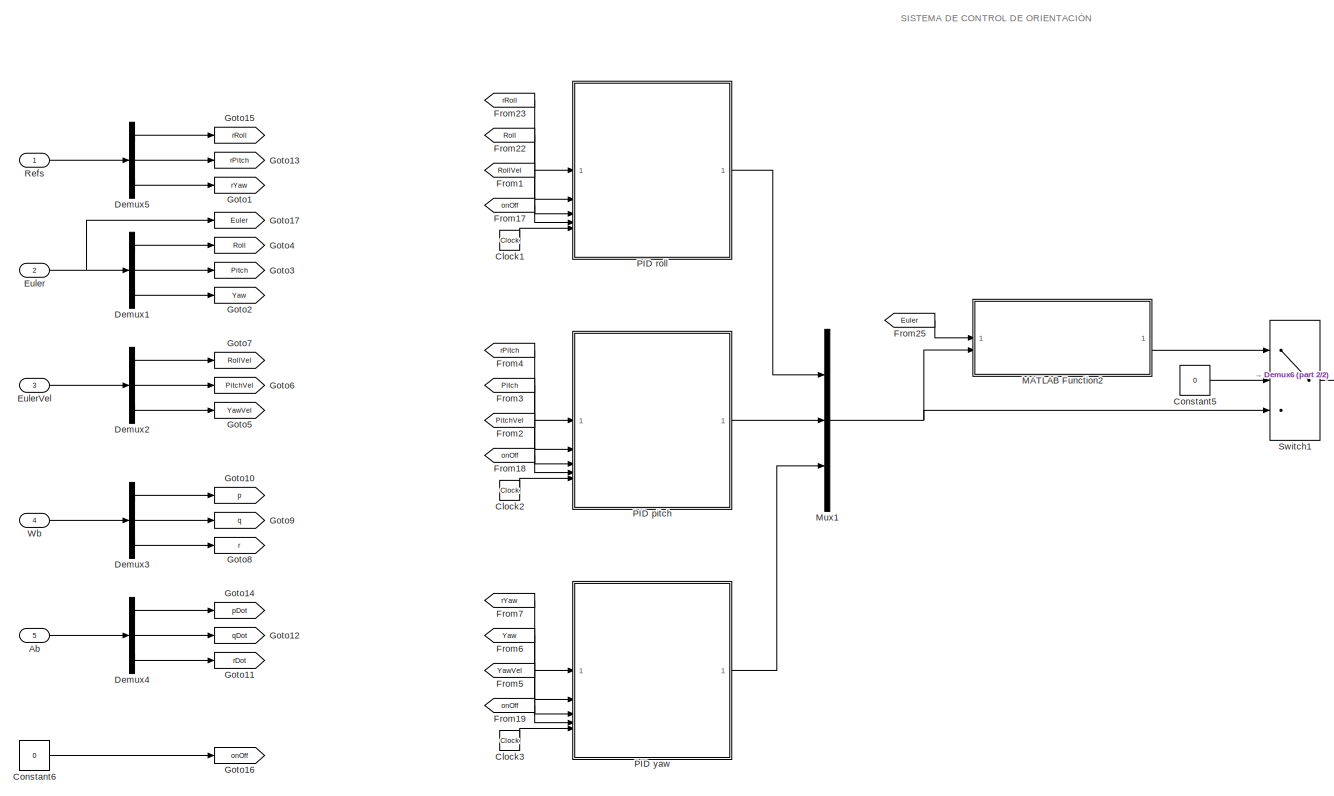
[diagram: Sistema de control - part 1/2, left side, full height]
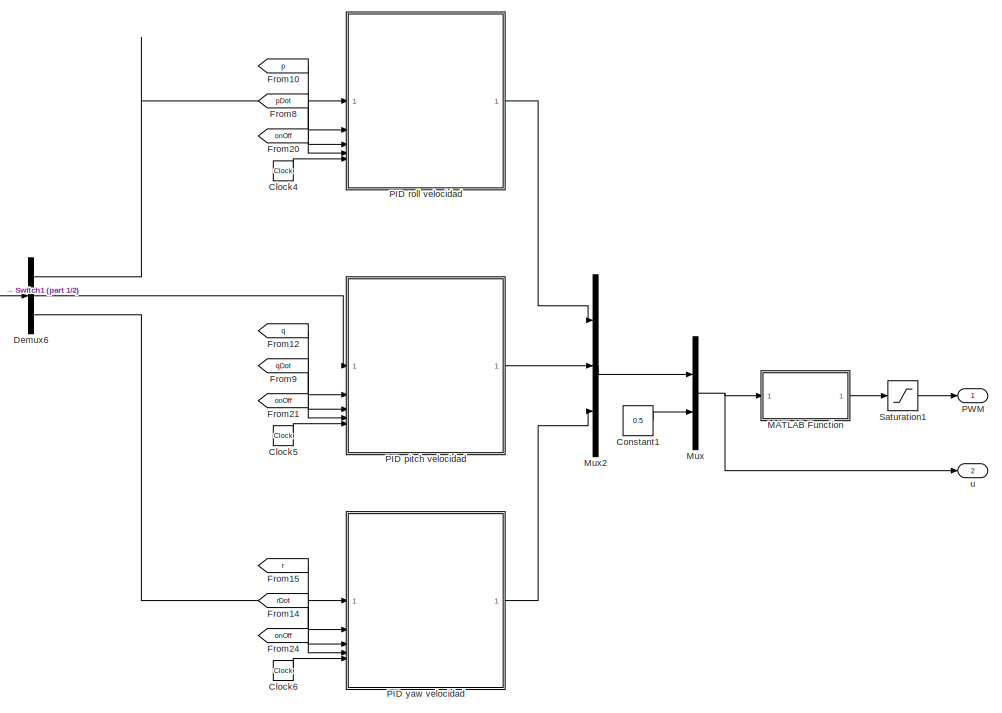
[diagram: Sistema de control - part 2/2, right side, full height]
BLOCK [SubSystem] Sistema de control
BLOCK [Inport] Sistema de control/Ab
  Port = 5
BLOCK [Clock] Sistema de control/Clock1
BLOCK [Clock] Sistema de control/Clock2
BLOCK [Clock] Sistema de control/Clock3
BLOCK [Clock] Sistema de control/Clock4
BLOCK [Clock] Sistema de control/Clock5
BLOCK [Clock] Sistema de control/Clock6
BLOCK [Constant] Sistema de control/Constant1
  SampleTime = -1
  Value = 0.5
BLOCK [Constant] Sistema de control/Constant5
  Value = 0
BLOCK [Constant] Sistema de control/Constant6
  SampleTime = -1
  Value = 0
BLOCK [Demux] Sistema de control/Demux1
  Outputs = 3
BLOCK [Demux] Sistema de control/Demux2
  Outputs = 3
BLOCK [Demux] Sistema de control/Demux3
  Outputs = 3
BLOCK [Demux] Sistema de control/Demux4
  Outputs = 3
BLOCK [Demux] Sistema de control/Demux5
  Outputs = 3
BLOCK [Demux] Sistema de control/Demux6
  Outputs = 3
BLOCK [Inport] Sistema de control/Euler
  Port = 2
BLOCK [Inport] Sistema de control/EulerVel
  Port = 3
BLOCK [From] Sistema de control/From1
  GotoTag = RollVel
BLOCK [From] Sistema de control/From10
  GotoTag = p
BLOCK [From] Sistema de control/From12
  GotoTag = q
BLOCK [From] Sistema de control/From14
  GotoTag = rDot
BLOCK [From] Sistema de control/From15
  GotoTag = r
BLOCK [From] Sistema de control/From17
  GotoTag = onOff
BLOCK [From] Sistema de control/From18
  GotoTag = onOff
BLOCK [From] Sistema de control/From19
  GotoTag = onOff
BLOCK [From] Sistema de control/From2
  GotoTag = PitchVel
BLOCK [From] Sistema de control/From20
  GotoTag = onOff
BLOCK [From] Sistema de control/From21
  GotoTag = onOff
BLOCK [From] Sistema de control/From22
  GotoTag = Roll
BLOCK [From] Sistema de control/From23
  GotoTag = rRoll
BLOCK [From] Sistema de control/From24
  GotoTag = onOff
BLOCK [From] Sistema de control/From25
  GotoTag = Euler
BLOCK [From] Sistema de control/From3
  GotoTag = Pitch
BLOCK [From] Sistema de control/From4
  GotoTag = rPitch
BLOCK [From] Sistema de control/From5
  GotoTag = YawVel
BLOCK [From] Sistema de control/From6
  GotoTag = Yaw
BLOCK [From] Sistema de control/From7
  GotoTag = rYaw
BLOCK [From] Sistema de control/From8
  GotoTag = pDot
BLOCK [From] Sistema de control/From9
  GotoTag = qDot
BLOCK [Goto] Sistema de control/Goto1
  GotoTag = rYaw
BLOCK [Goto] Sistema de control/Goto10
  GotoTag = p
BLOCK [Goto] Sistema de control/Goto11
  GotoTag = rDot
BLOCK [Goto] Sistema de control/Goto12
  GotoTag = qDot
BLOCK [Goto] Sistema de control/Goto13
  GotoTag = rPitch
BLOCK [Goto] Sistema de control/Goto14
  GotoTag = pDot
BLOCK [Goto] Sistema de control/Goto15
  GotoTag = rRoll
BLOCK [Goto] Sistema de control/Goto16
  GotoTag = onOff
BLOCK [Goto] Sistema de control/Goto17
  GotoTag = Euler
BLOCK [Goto] Sistema de control/Goto2
  GotoTag = Yaw
BLOCK [Goto] Sistema de control/Goto3
  GotoTag = Pitch
BLOCK [Goto] Sistema de control/Goto4
  GotoTag = Roll
BLOCK [Goto] Sistema de control/Goto5
  GotoTag = YawVel
BLOCK [Goto] Sistema de control/Goto6
  GotoTag = PitchVel
BLOCK [Goto] Sistema de control/Goto7
  GotoTag = RollVel
BLOCK [Goto] Sistema de control/Goto8
  GotoTag = r
BLOCK [Goto] Sistema de control/Goto9
  GotoTag = q
BLOCK [SubSystem] Sistema de control/MATLAB Function
  ErrorFcn = Stateflow.Translate.translate
  PermitHierarchicalResolution = ExplicitOnly
  SFBlockType = MATLAB Function
  TreatAsAtomicUnit = on
BLOCK [Demux] Sistema de control/MATLAB Function/ Demux 
  Outputs = 1
BLOCK [S-Function] Sistema de control/MATLAB Function/ SFunction 
  EnableBusSupport = on
  FunctionName = sf_sfun
  PortCounts = [1 2]
  SFcnIsStateOwnerBlock = off
  SFunctionDeploymentMode = off
  Tag = Stateflow S-Function 8
BLOCK [Terminator] Sistema de control/MATLAB Function/ Terminator 
BLOCK [Outport] Sistema de control/MATLAB Function/pwm
BLOCK [Inport] Sistema de control/MATLAB Function/u
BLOCK [SubSystem] Sistema de control/MATLAB Function2
  ErrorFcn = Stateflow.Translate.translate
  LibrarySourceBlock = simulink/User-Defined\nFunctions/MATLAB Function
  PermitHierarchicalResolution = ExplicitOnly
  SFBlockType = MATLAB Function
  SystemSampleTime = TsVel
  TreatAsAtomicUnit = on
BLOCK [Demux] Sistema de control/MATLAB Function2/ Demux 
  Outputs = 1
BLOCK [S-Function] Sistema de control/MATLAB Function2/ SFunction 
  EnableBusSupport = on
  FunctionName = sf_sfun
  PortCounts = [2 2]
  SFcnIsStateOwnerBlock = off
  SFunctionDeploymentMode = off
  Tag = Stateflow S-Function 45
BLOCK [Terminator] Sistema de control/MATLAB Function2/ Terminator 
BLOCK [Inport] Sistema de control/MATLAB Function2/Euler
BLOCK [Inport] Sistema de control/MATLAB Function2/Vel
  Port = 2
BLOCK [Outport] Sistema de control/MATLAB Function2/Wb
BLOCK [Mux] Sistema de control/Mux
  DisplayOption = bar
  Inputs = 2
BLOCK [Mux] Sistema de control/Mux1
  DisplayOption = bar
  Inputs = 3
BLOCK [Mux] Sistema de control/Mux2
  DisplayOption = bar
  Inputs = 3
BLOCK [SubSystem] Sistema de control/PID pitch
  SystemSampleTime = TsPos
  TreatAsAtomicUnit = on
BLOCK [SubSystem] Sistema de control/PID pitch velocidad
  SystemSampleTime = TsVel
  TreatAsAtomicUnit = on
BLOCK [Constant] Sistema de control/PID pitch velocidad/Constant
  Value = Kp
BLOCK [Constant] Sistema de control/PID pitch velocidad/Constant1
  Value = Ki
BLOCK [Constant] Sistema de control/PID pitch velocidad/Constant2
  Value = Kd
BLOCK [Constant] Sistema de control/PID pitch velocidad/Constant3
  Value = Kff
BLOCK [Constant] Sistema de control/PID pitch velocidad/Constant4
  Value = LimI
BLOCK [Constant] Sistema de control/PID pitch velocidad/Constant5
  Value = LimT
BLOCK [SubSystem] Sistema de control/PID pitch velocidad/MATLAB Function
  ErrorFcn = Stateflow.Translate.translate
  PermitHierarchicalResolution = ExplicitOnly
  SFBlockType = MATLAB Function
  TreatAsAtomicUnit = on
BLOCK [Demux] Sistema de control/PID pitch velocidad/MATLAB Function/ Demux 
  Outputs = 1
BLOCK [S-Function] Sistema de control/PID pitch velocidad/MATLAB Function/ SFunction 
  EnableBusSupport = on
  FunctionName = sf_sfun
  PortCounts = [11 2]
  SFcnIsStateOwnerBlock = off
  SFunctionDeploymentMode = off
  Tag = Stateflow S-Function 42
BLOCK [Terminator] Sistema de control/PID pitch velocidad/MATLAB Function/ Terminator 
BLOCK [Inport] Sistema de control/PID pitch velocidad/MATLAB Function/habIntegral
  Port = 10
BLOCK [Inport] Sistema de control/PID pitch velocidad/MATLAB Function/kd
  Port = 3
BLOCK [Inport] Sistema de control/PID pitch velocidad/MATLAB Function/kff
  Port = 4
BLOCK [Inport] Sistema de control/PID pitch velocidad/MATLAB Function/ki
  Port = 2
BLOCK [Inport] Sistema de control/PID pitch velocidad/MATLAB Function/kp
BLOCK [Inport] Sistema de control/PID pitch velocidad/MATLAB Function/limIntegral
  Port = 5
BLOCK [Inport] Sistema de control/PID pitch velocidad/MATLAB Function/limTotal
  Port = 6
BLOCK [Inport] Sistema de control/PID pitch velocidad/MATLAB Function/sensor
  Port = 8
BLOCK [Inport] Sistema de control/PID pitch velocidad/MATLAB Function/sensorDerivada
  Port = 9
BLOCK [Inport] Sistema de control/PID pitch velocidad/MATLAB Function/setPoint
  Port = 7
BLOCK [Inport] Sistema de control/PID pitch velocidad/MATLAB Function/tiempo
  Port = 11
BLOCK [Outport] Sistema de control/PID pitch velocidad/MATLAB Function/u
BLOCK [Inport] Sistema de control/PID pitch velocidad/habIntegral
  Port = 4
BLOCK [Inport] Sistema de control/PID pitch velocidad/sensor
  Port = 2
BLOCK [Inport] Sistema de control/PID pitch velocidad/sensorDerivada
  Port = 3
BLOCK [Inport] Sistema de control/PID pitch velocidad/setpoint
BLOCK [Inport] Sistema de control/PID pitch velocidad/tiempo
  Port = 5
BLOCK [Outport] Sistema de control/PID pitch velocidad/u
BLOCK [Constant] Sistema de control/PID pitch/Constant
  Value = Kp
BLOCK [Constant] Sistema de control/PID pitch/Constant1
  Value = Ki
BLOCK [Constant] Sistema de control/PID pitch/Constant2
  Value = Kd
BLOCK [Constant] Sistema de control/PID pitch/Constant3
  Value = Kff
BLOCK [Constant] Sistema de control/PID pitch/Constant4
  Value = LimI
BLOCK [Constant] Sistema de control/PID pitch/Constant5
  Value = LimT
BLOCK [SubSystem] Sistema de control/PID pitch/MATLAB Function
  ErrorFcn = Stateflow.Translate.translate
  PermitHierarchicalResolution = ExplicitOnly
  SFBlockType = MATLAB Function
  TreatAsAtomicUnit = on
BLOCK [Demux] Sistema de control/PID pitch/MATLAB Function/ Demux 
  Outputs = 1
BLOCK [S-Function] Sistema de control/PID pitch/MATLAB Function/ SFunction 
  EnableBusSupport = on
  FunctionName = sf_sfun
  PortCounts = [11 2]
  SFcnIsStateOwnerBlock = off
  SFunctionDeploymentMode = off
  Tag = Stateflow S-Function 39
BLOCK [Terminator] Sistema de control/PID pitch/MATLAB Function/ Terminator 
BLOCK [Inport] Sistema de control/PID pitch/MATLAB Function/habIntegral
  Port = 10
BLOCK [Inport] Sistema de control/PID pitch/MATLAB Function/kd
  Port = 3
BLOCK [Inport] Sistema de control/PID pitch/MATLAB Function/kff
  Port = 4
BLOCK [Inport] Sistema de control/PID pitch/MATLAB Function/ki
  Port = 2
BLOCK [Inport] Sistema de control/PID pitch/MATLAB Function/kp
BLOCK [Inport] Sistema de control/PID pitch/MATLAB Function/limIntegral
  Port = 5
BLOCK [Inport] Sistema de control/PID pitch/MATLAB Function/limTotal
  Port = 6
BLOCK [Inport] Sistema de control/PID pitch/MATLAB Function/sensor
  Port = 8
BLOCK [Inport] Sistema de control/PID pitch/MATLAB Function/sensorDerivada
  Port = 9
BLOCK [Inport] Sistema de control/PID pitch/MATLAB Function/setPoint
  Port = 7
BLOCK [Inport] Sistema de control/PID pitch/MATLAB Function/tiempo
  Port = 11
BLOCK [Outport] Sistema de control/PID pitch/MATLAB Function/u
BLOCK [Inport] Sistema de control/PID pitch/habIntegral
  Port = 4
BLOCK [Inport] Sistema de control/PID pitch/sensor
  Port = 2
BLOCK [Inport] Sistema de control/PID pitch/sensorDerivada
  Port = 3
BLOCK [Inport] Sistema de control/PID pitch/setpoint
BLOCK [Inport] Sistema de control/PID pitch/tiempo
  Port = 5
BLOCK [Outport] Sistema de control/PID pitch/u
BLOCK [SubSystem] Sistema de control/PID roll
  SystemSampleTime = TsPos
  TreatAsAtomicUnit = on
BLOCK [SubSystem] Sistema de control/PID roll velocidad
  SystemSampleTime = TsVel
  TreatAsAtomicUnit = on
BLOCK [Constant] Sistema de control/PID roll velocidad/Constant
  Value = Kp
BLOCK [Constant] Sistema de control/PID roll velocidad/Constant1
  Value = Ki
BLOCK [Constant] Sistema de control/PID roll velocidad/Constant2
  Value = Kd
BLOCK [Constant] Sistema de control/PID roll velocidad/Constant3
  Value = Kff
BLOCK [Constant] Sistema de control/PID roll velocidad/Constant4
  Value = LimI
BLOCK [Constant] Sistema de control/PID roll velocidad/Constant5
  Value = LimT
BLOCK [SubSystem] Sistema de control/PID roll velocidad/MATLAB Function
  ErrorFcn = Stateflow.Translate.translate
  PermitHierarchicalResolution = ExplicitOnly
  SFBlockType = MATLAB Function
  TreatAsAtomicUnit = on
BLOCK [Demux] Sistema de control/PID roll velocidad/MATLAB Function/ Demux 
  Outputs = 1
BLOCK [S-Function] Sistema de control/PID roll velocidad/MATLAB Function/ SFunction 
  EnableBusSupport = on
  FunctionName = sf_sfun
  PortCounts = [11 2]
  SFcnIsStateOwnerBlock = off
  SFunctionDeploymentMode = off
  Tag = Stateflow S-Function 43
BLOCK [Terminator] Sistema de control/PID roll velocidad/MATLAB Function/ Terminator 
BLOCK [Inport] Sistema de control/PID roll velocidad/MATLAB Function/habIntegral
  Port = 10
BLOCK [Inport] Sistema de control/PID roll velocidad/MATLAB Function/kd
  Port = 3
BLOCK [Inport] Sistema de control/PID roll velocidad/MATLAB Function/kff
  Port = 4
BLOCK [Inport] Sistema de control/PID roll velocidad/MATLAB Function/ki
  Port = 2
BLOCK [Inport] Sistema de control/PID roll velocidad/MATLAB Function/kp
BLOCK [Inport] Sistema de control/PID roll velocidad/MATLAB Function/limIntegral
  Port = 5
BLOCK [Inport] Sistema de control/PID roll velocidad/MATLAB Function/limTotal
  Port = 6
BLOCK [Inport] Sistema de control/PID roll velocidad/MATLAB Function/sensor
  Port = 8
BLOCK [Inport] Sistema de control/PID roll velocidad/MATLAB Function/sensorDerivada
  Port = 9
BLOCK [Inport] Sistema de control/PID roll velocidad/MATLAB Function/setpoint
  Port = 7
BLOCK [Inport] Sistema de control/PID roll velocidad/MATLAB Function/tiempo
  Port = 11
BLOCK [Outport] Sistema de control/PID roll velocidad/MATLAB Function/u
BLOCK [Inport] Sistema de control/PID roll velocidad/habIntegral
  Port = 4
BLOCK [Inport] Sistema de control/PID roll velocidad/sensor
  Port = 2
BLOCK [Inport] Sistema de control/PID roll velocidad/sensorDerivada
  Port = 3
BLOCK [Inport] Sistema de control/PID roll velocidad/setpoint
BLOCK [Inport] Sistema de control/PID roll velocidad/tiempo
  Port = 5
BLOCK [Outport] Sistema de control/PID roll velocidad/u
BLOCK [Constant] Sistema de control/PID roll/Constant
  Value = Kp
BLOCK [Constant] Sistema de control/PID roll/Constant1
  Value = Ki
BLOCK [Constant] Sistema de control/PID roll/Constant2
  Value = Kd
BLOCK [Constant] Sistema de control/PID roll/Constant3
  Value = Kff
BLOCK [Constant] Sistema de control/PID roll/Constant4
  Value = LimI
BLOCK [Constant] Sistema de control/PID roll/Constant5
  Value = LimT
BLOCK [SubSystem] Sistema de control/PID roll/MATLAB Function
  ErrorFcn = Stateflow.Translate.translate
  PermitHierarchicalResolution = ExplicitOnly
  SFBlockType = MATLAB Function
  TreatAsAtomicUnit = on
BLOCK [Demux] Sistema de control/PID roll/MATLAB Function/ Demux 
  Outputs = 1
BLOCK [S-Function] Sistema de control/PID roll/MATLAB Function/ SFunction 
  EnableBusSupport = on
  FunctionName = sf_sfun
  PortCounts = [11 2]
  SFcnIsStateOwnerBlock = off
  SFunctionDeploymentMode = off
  Tag = Stateflow S-Function 40
BLOCK [Terminator] Sistema de control/PID roll/MATLAB Function/ Terminator 
BLOCK [Inport] Sistema de control/PID roll/MATLAB Function/habIntegral
  Port = 10
BLOCK [Inport] Sistema de control/PID roll/MATLAB Function/kd
  Port = 3
BLOCK [Inport] Sistema de control/PID roll/MATLAB Function/kff
  Port = 4
BLOCK [Inport] Sistema de control/PID roll/MATLAB Function/ki
  Port = 2
BLOCK [Inport] Sistema de control/PID roll/MATLAB Function/kp
BLOCK [Inport] Sistema de control/PID roll/MATLAB Function/limIntegral
  Port = 5
BLOCK [Inport] Sistema de control/PID roll/MATLAB Function/limTotal
  Port = 6
BLOCK [Inport] Sistema de control/PID roll/MATLAB Function/sensor
  Port = 8
BLOCK [Inport] Sistema de control/PID roll/MATLAB Function/sensorDerivada
  Port = 9
BLOCK [Inport] Sistema de control/PID roll/MATLAB Function/setPoint
  Port = 7
BLOCK [Inport] Sistema de control/PID roll/MATLAB Function/tiempo
  Port = 11
BLOCK [Outport] Sistema de control/PID roll/MATLAB Function/u
BLOCK [Inport] Sistema de control/PID roll/habIntegral
  Port = 4
BLOCK [Inport] Sistema de control/PID roll/sensor
  Port = 2
BLOCK [Inport] Sistema de control/PID roll/sensorDerivada
  Port = 3
BLOCK [Inport] Sistema de control/PID roll/setpoint
BLOCK [Inport] Sistema de control/PID roll/tiempo
  Port = 5
BLOCK [Outport] Sistema de control/PID roll/u
BLOCK [SubSystem] Sistema de control/PID yaw
  SystemSampleTime = TsPos
  TreatAsAtomicUnit = on
BLOCK [SubSystem] Sistema de control/PID yaw velocidad
  SystemSampleTime = TsVel
  TreatAsAtomicUnit = on
BLOCK [Constant] Sistema de control/PID yaw velocidad/Constant
  Value = Kp
BLOCK [Constant] Sistema de control/PID yaw velocidad/Constant1
  Value = Ki
BLOCK [Constant] Sistema de control/PID yaw velocidad/Constant2
  Value = Kd
BLOCK [Constant] Sistema de control/PID yaw velocidad/Constant3
  Value = Kff
BLOCK [Constant] Sistema de control/PID yaw velocidad/Constant4
  Value = LimI
BLOCK [Constant] Sistema de control/PID yaw velocidad/Constant5
  Value = LimT
BLOCK [SubSystem] Sistema de control/PID yaw velocidad/MATLAB Function
  ErrorFcn = Stateflow.Translate.translate
  PermitHierarchicalResolution = ExplicitOnly
  SFBlockType = MATLAB Function
  TreatAsAtomicUnit = on
BLOCK [Demux] Sistema de control/PID yaw velocidad/MATLAB Function/ Demux 
  Outputs = 1
BLOCK [S-Function] Sistema de control/PID yaw velocidad/MATLAB Function/ SFunction 
  EnableBusSupport = on
  FunctionName = sf_sfun
  PortCounts = [11 2]
  SFcnIsStateOwnerBlock = off
  SFunctionDeploymentMode = off
  Tag = Stateflow S-Function 44
BLOCK [Terminator] Sistema de control/PID yaw velocidad/MATLAB Function/ Terminator 
BLOCK [Inport] Sistema de control/PID yaw velocidad/MATLAB Function/habIntegral
  Port = 10
BLOCK [Inport] Sistema de control/PID yaw velocidad/MATLAB Function/kd
  Port = 3
BLOCK [Inport] Sistema de control/PID yaw velocidad/MATLAB Function/kff
  Port = 4
BLOCK [Inport] Sistema de control/PID yaw velocidad/MATLAB Function/ki
  Port = 2
BLOCK [Inport] Sistema de control/PID yaw velocidad/MATLAB Function/kp
BLOCK [Inport] Sistema de control/PID yaw velocidad/MATLAB Function/limIntegral
  Port = 5
BLOCK [Inport] Sistema de control/PID yaw velocidad/MATLAB Function/limTotal
  Port = 6
BLOCK [Inport] Sistema de control/PID yaw velocidad/MATLAB Function/sensor
  Port = 8
BLOCK [Inport] Sistema de control/PID yaw velocidad/MATLAB Function/sensorDerivada
  Port = 9
BLOCK [Inport] Sistema de control/PID yaw velocidad/MATLAB Function/setPoint
  Port = 7
BLOCK [Inport] Sistema de control/PID yaw velocidad/MATLAB Function/tiempo
  Port = 11
BLOCK [Outport] Sistema de control/PID yaw velocidad/MATLAB Function/u
BLOCK [Inport] Sistema de control/PID yaw velocidad/habIntegral
  Port = 4
BLOCK [Inport] Sistema de control/PID yaw velocidad/sensor
  Port = 2
BLOCK [Inport] Sistema de control/PID yaw velocidad/sensorDerivada
  Port = 3
BLOCK [Inport] Sistema de control/PID yaw velocidad/setpoint
BLOCK [Inport] Sistema de control/PID yaw velocidad/tiempo
  Port = 5
BLOCK [Outport] Sistema de control/PID yaw velocidad/u
BLOCK [Constant] Sistema de control/PID yaw/Constant
  Value = Kp
BLOCK [Constant] Sistema de control/PID yaw/Constant1
  Value = Ki
BLOCK [Constant] Sistema de control/PID yaw/Constant2
  Value = Kd
BLOCK [Constant] Sistema de control/PID yaw/Constant3
  Value = Kff
BLOCK [Constant] Sistema de control/PID yaw/Constant4
  Value = LimI
BLOCK [Constant] Sistema de control/PID yaw/Constant5
  Value = LimT
BLOCK [SubSystem] Sistema de control/PID yaw/MATLAB Function
  ErrorFcn = Stateflow.Translate.translate
  PermitHierarchicalResolution = ExplicitOnly
  SFBlockType = MATLAB Function
  TreatAsAtomicUnit = on
BLOCK [Demux] Sistema de control/PID yaw/MATLAB Function/ Demux 
  Outputs = 1
BLOCK [S-Function] Sistema de control/PID yaw/MATLAB Function/ SFunction 
  EnableBusSupport = on
  FunctionName = sf_sfun
  PortCounts = [11 2]
  SFcnIsStateOwnerBlock = off
  SFunctionDeploymentMode = off
  Tag = Stateflow S-Function 41
BLOCK [Terminator] Sistema de control/PID yaw/MATLAB Function/ Terminator 
BLOCK [Inport] Sistema de control/PID yaw/MATLAB Function/habIntegral
  Port = 10
BLOCK [Inport] Sistema de control/PID yaw/MATLAB Function/kd
  Port = 3
BLOCK [Inport] Sistema de control/PID yaw/MATLAB Function/kff
  Port = 4
BLOCK [Inport] Sistema de control/PID yaw/MATLAB Function/ki
  Port = 2
BLOCK [Inport] Sistema de control/PID yaw/MATLAB Function/kp
BLOCK [Inport] Sistema de control/PID yaw/MATLAB Function/limIntegral
  Port = 5
BLOCK [Inport] Sistema de control/PID yaw/MATLAB Function/limTotal
  Port = 6
BLOCK [Inport] Sistema de control/PID yaw/MATLAB Function/sensor
  Port = 8
BLOCK [Inport] Sistema de control/PID yaw/MATLAB Function/sensorDerivada
  Port = 9
BLOCK [Inport] Sistema de control/PID yaw/MATLAB Function/setPoint
  Port = 7
BLOCK [Inport] Sistema de control/PID yaw/MATLAB Function/tiempo
  Port = 11
BLOCK [Outport] Sistema de control/PID yaw/MATLAB Function/u
BLOCK [Inport] Sistema de control/PID yaw/habIntegral
  Port = 4
BLOCK [Inport] Sistema de control/PID yaw/sensor
  Port = 2
BLOCK [Inport] Sistema de control/PID yaw/sensorDerivada
  Port = 3
BLOCK [Inport] Sistema de control/PID yaw/setpoint
BLOCK [Inport] Sistema de control/PID yaw/tiempo
  Port = 5
BLOCK [Outport] Sistema de control/PID yaw/u
BLOCK [Outport] Sistema de control/PWM
  VectorParamsAs1DForOutWhenUnconnected = off
BLOCK [Inport] Sistema de control/Refs
BLOCK [Saturate] Sistema de control/Saturation1
  LowerLimit = 0
  UpperLimit = 1
BLOCK [Switch] Sistema de control/Switch1
  Criteria = u2 > Threshold
  InputSameDT = off
  SaturateOnIntegerOverflow = off
BLOCK [Inport] Sistema de control/Wb
  Port = 4
BLOCK [Outport] Sistema de control/u
  Port = 2
  VectorParamsAs1DForOutWhenUnconnected = off
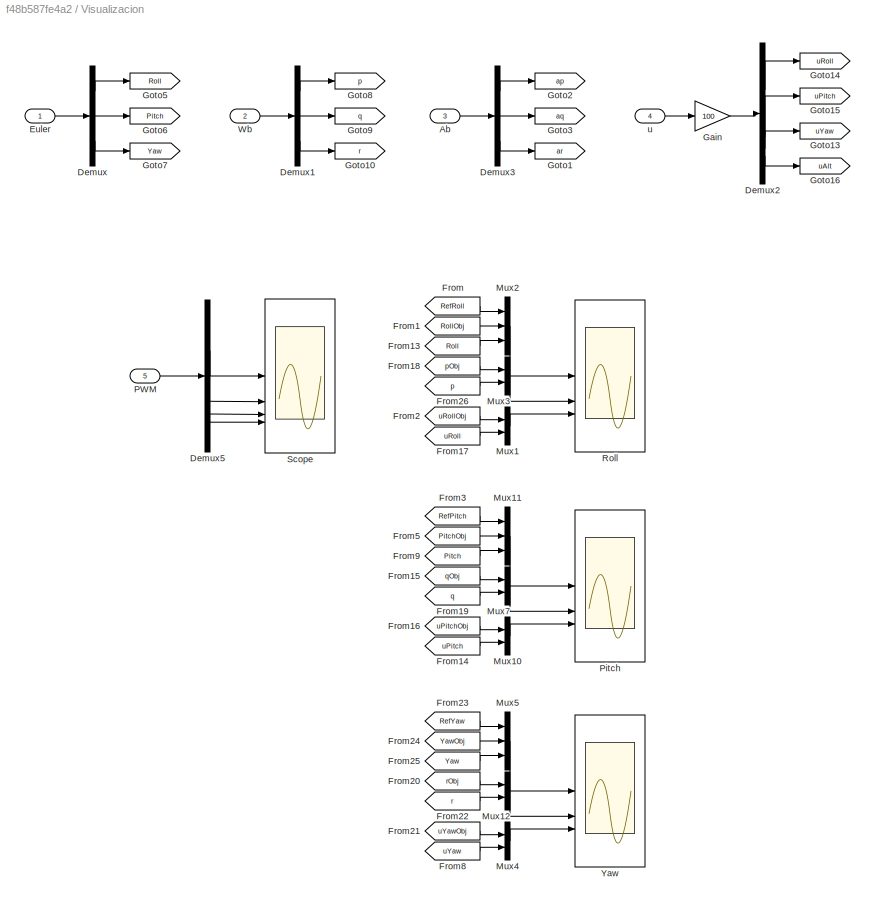
BLOCK [SubSystem] Visualizacion
BLOCK [Inport] Visualizacion/Ab
  Port = 3
BLOCK [Demux] Visualizacion/Demux
  Outputs = 3
BLOCK [Demux] Visualizacion/Demux1
  Outputs = 3
BLOCK [Demux] Visualizacion/Demux2
BLOCK [Demux] Visualizacion/Demux3
  Outputs = 3
BLOCK [Demux] Visualizacion/Demux5
BLOCK [Inport] Visualizacion/Euler
BLOCK [From] Visualizacion/From
  GotoTag = RefRoll
  TagVisibility = global
BLOCK [From] Visualizacion/From1
  GotoTag = RollObj
  TagVisibility = global
BLOCK [From] Visualizacion/From13
  GotoTag = Roll
BLOCK [From] Visualizacion/From14
  GotoTag = uPitch
BLOCK [From] Visualizacion/From15
  GotoTag = qObj
  TagVisibility = global
BLOCK [From] Visualizacion/From16
  GotoTag = uPitchObj
  TagVisibility = global
BLOCK [From] Visualizacion/From17
  GotoTag = uRoll
BLOCK [From] Visualizacion/From18
  GotoTag = pObj
  TagVisibility = global
BLOCK [From] Visualizacion/From19
  GotoTag = q
BLOCK [From] Visualizacion/From2
  GotoTag = uRollObj
  TagVisibility = global
BLOCK [From] Visualizacion/From20
  GotoTag = rObj
  TagVisibility = global
BLOCK [From] Visualizacion/From21
  GotoTag = uYawObj
  TagVisibility = global
BLOCK [From] Visualizacion/From22
  GotoTag = r
BLOCK [From] Visualizacion/From23
  GotoTag = RefYaw
  TagVisibility = global
BLOCK [From] Visualizacion/From24
  GotoTag = YawObj
  TagVisibility = global
BLOCK [From] Visualizacion/From25
  GotoTag = Yaw
BLOCK [From] Visualizacion/From26
  GotoTag = p
BLOCK [From] Visualizacion/From3
  GotoTag = RefPitch
  TagVisibility = global
BLOCK [From] Visualizacion/From5
  GotoTag = PitchObj
  TagVisibility = global
BLOCK [From] Visualizacion/From8
  GotoTag = uYaw
BLOCK [From] Visualizacion/From9
  GotoTag = Pitch
BLOCK [Gain] Visualizacion/Gain
  Gain = 100
BLOCK [Goto] Visualizacion/Goto1
  GotoTag = ar
BLOCK [Goto] Visualizacion/Goto10
  GotoTag = r
BLOCK [Goto] Visualizacion/Goto13
  GotoTag = uYaw
BLOCK [Goto] Visualizacion/Goto14
  GotoTag = uRoll
BLOCK [Goto] Visualizacion/Goto15
  GotoTag = uPitch
BLOCK [Goto] Visualizacion/Goto16
  GotoTag = uAlt
BLOCK [Goto] Visualizacion/Goto2
  GotoTag = ap
BLOCK [Goto] Visualizacion/Goto3
  GotoTag = aq
BLOCK [Goto] Visualizacion/Goto5
  GotoTag = Roll
BLOCK [Goto] Visualizacion/Goto6
  GotoTag = Pitch
BLOCK [Goto] Visualizacion/Goto7
  GotoTag = Yaw
BLOCK [Goto] Visualizacion/Goto8
  GotoTag = p
BLOCK [Goto] Visualizacion/Goto9
  GotoTag = q
BLOCK [Mux] Visualizacion/Mux1
  DisplayOption = bar
  Inputs = 2
BLOCK [Mux] Visualizacion/Mux10
  DisplayOption = bar
  Inputs = 2
BLOCK [Mux] Visualizacion/Mux11
  DisplayOption = bar
  Inputs = 3
BLOCK [Mux] Visualizacion/Mux12
  DisplayOption = bar
  Inputs = 2
BLOCK [Mux] Visualizacion/Mux2
  DisplayOption = bar
  Inputs = 3
BLOCK [Mux] Visualizacion/Mux3
  DisplayOption = bar
  Inputs = 2
BLOCK [Mux] Visualizacion/Mux4
  DisplayOption = bar
  Inputs = 2
BLOCK [Mux] Visualizacion/Mux5
  DisplayOption = bar
  Inputs = 3
BLOCK [Mux] Visualizacion/Mux7
  DisplayOption = bar
  Inputs = 2
BLOCK [Inport] Visualizacion/PWM
  Port = 5
BLOCK [Scope] Visualizacion/Pitch
  Floating = off
  NumInputPorts = 3
  ScopeSpecificationString = Simulink.scopes.TimeScopeBlockCfg('CurrentConfiguration', extmgr.ConfigurationSet(extmgr.Configuration('Core','General UI',true),extmgr.Configuration('Core','Source UI',true),extmgr.Configuration('Sources','WiredSimulink',true,'DataLoggingVariableName','ScopeData1'),extmgr.Configuration('Visuals','Time Domain',true,'SerializedDisplays',{struct('MinYLimReal','-3.38774','MaxYLimReal','44.17112','YLa...<+3021ch>
BLOCK [Scope] Visualizacion/Roll
  Floating = off
  NumInputPorts = 3
  ScopeSpecificationString = Simulink.scopes.TimeScopeBlockCfg('CurrentConfiguration', extmgr.ConfigurationSet(extmgr.Configuration('Core','General UI',true),extmgr.Configuration('Core','Source UI',true),extmgr.Configuration('Sources','WiredSimulink',true,'DataLoggingVariableName','ScopeData1'),extmgr.Configuration('Visuals','Time Domain',true,'SerializedDisplays',{struct('MinYLimReal','-52.26931','MaxYLimReal','55.21555','YL...<+3017ch>
BLOCK [Scope] Visualizacion/Scope
  Floating = off
  NumInputPorts = 4
  ScopeSpecificationString = Simulink.scopes.TimeScopeBlockCfg('CurrentConfiguration', extmgr.ConfigurationSet(extmgr.Configuration('Core','General UI',true),extmgr.Configuration('Core','Source UI',true),extmgr.Configuration('Sources','WiredSimulink',true,'DataLoggingVariableName','ScopeData1'),extmgr.Configuration('Visuals','Time Domain',true,'SerializedDisplays',{struct('MinYLimReal','-0.125','MaxYLimReal','1.125','YLabelRe...<+1436ch>
BLOCK [Inport] Visualizacion/Wb
  Port = 2
BLOCK [Scope] Visualizacion/Yaw
  Floating = off
  NumInputPorts = 3
  ScopeSpecificationString = Simulink.scopes.TimeScopeBlockCfg('CurrentConfiguration', extmgr.ConfigurationSet(extmgr.Configuration('Core','General UI',true),extmgr.Configuration('Core','Source UI',true),extmgr.Configuration('Sources','WiredSimulink',true,'DataLoggingVariableName','ScopeData2'),extmgr.Configuration('Visuals','Time Domain',true,'SerializedDisplays',{struct('MinYLimReal','-28.07039','MaxYLimReal','93.16748','YL...<+3008ch>
BLOCK [Inport] Visualizacion/u
  Port = 4
ANNOTATION (root): CIC2022. CONTROL DE LA ORIENTACIÓN DE UN UAV MULTIRROTOR Última modificación: 12/10/2023
ANNOTATION Estimacion/IMU 1: cnt
ANNOTATION Estimacion/IMU 2: cnt
ANNOTATION Estimacion/IMU 3: cnt
ANNOTATION Sistema de control: SISTEMA DE CONTROL DE ORIENTACIÓN
LINE Constant1:1 -> Estimacion:2
LINE Constant:1 -> Modelo UAV:2
LINE Datos del sistema real/Data Type Conversion:1 -> Datos del sistema real/Demux:1
LINE Datos del sistema real/Demux:10 -> Datos del sistema real/Goto9:1
LINE Datos del sistema real/Demux:11 -> Datos del sistema real/Goto10:1
LINE Datos del sistema real/Demux:12 -> Datos del sistema real/Goto11:1
LINE Datos del sistema real/Demux:13 -> Datos del sistema real/Goto12:1
LINE Datos del sistema real/Demux:14 -> Datos del sistema real/Goto21:1
LINE Datos del sistema real/Demux:15 -> Datos del sistema real/Goto22:1
LINE Datos del sistema real/Demux:16 -> Datos del sistema real/Goto26:1
LINE Datos del sistema real/Demux:17 -> Datos del sistema real/Goto27:1
LINE Datos del sistema real/Demux:18 -> Datos del sistema real/Goto28:1
LINE Datos del sistema real/Demux:19 -> Datos del sistema real/Goto29:1
LINE Datos del sistema real/Demux:2 -> Datos del sistema real/Goto1:1
LINE Datos del sistema real/Demux:20 -> Datos del sistema real/Goto30:1
LINE Datos del sistema real/Demux:21 -> Datos del sistema real/Goto31:1
LINE Datos del sistema real/Demux:22 -> Datos del sistema real/Goto32:1
LINE Datos del sistema real/Demux:23 -> Datos del sistema real/Goto33:1
LINE Datos del sistema real/Demux:24 -> Datos del sistema real/Goto34:1
LINE Datos del sistema real/Demux:25 -> Datos del sistema real/Goto35:1
LINE Datos del sistema real/Demux:26 -> Datos del sistema real/Goto36:1
LINE Datos del sistema real/Demux:27 -> Datos del sistema real/Goto37:1
LINE Datos del sistema real/Demux:28 -> Datos del sistema real/Goto38:1
LINE Datos del sistema real/Demux:29 -> Datos del sistema real/Goto39:1
LINE Datos del sistema real/Demux:3 -> Datos del sistema real/Goto2:1
LINE Datos del sistema real/Demux:30 -> Datos del sistema real/Goto40:1
LINE Datos del sistema real/Demux:31 -> Datos del sistema real/Goto41:1
LINE Datos del sistema real/Demux:32 -> Datos del sistema real/Goto13:1
LINE Datos del sistema real/Demux:33 -> Datos del sistema real/Goto14:1
LINE Datos del sistema real/Demux:34 -> Datos del sistema real/Goto15:1
LINE Datos del sistema real/Demux:35 -> Datos del sistema real/Goto42:1
LINE Datos del sistema real/Demux:36 -> Datos del sistema real/Goto43:1
LINE Datos del sistema real/Demux:37 -> Datos del sistema real/Goto44:1
LINE Datos del sistema real/Demux:38 -> Datos del sistema real/Goto45:1
LINE Datos del sistema real/Demux:4 -> Datos del sistema real/Goto3:1
LINE Datos del sistema real/Demux:5 -> Datos del sistema real/Goto4:1
LINE Datos del sistema real/Demux:6 -> Datos del sistema real/Goto5:1
LINE Datos del sistema real/Demux:7 -> Datos del sistema real/Goto6:1
LINE Datos del sistema real/Demux:8 -> Datos del sistema real/Goto7:1
LINE Datos del sistema real/Demux:9 -> Datos del sistema real/Goto8:1
LINE Datos del sistema real/From Workspace:1 -> Datos del sistema real/Data Type Conversion:1
LINE Estimacion/AHRS/Constant1:1 -> Estimacion/AHRS/Switch:2
LINE Estimacion/AHRS/Constant2:1 -> Estimacion/AHRS/Gain:1
LINE Estimacion/AHRS/Constant3:1 -> Estimacion/AHRS/MATLAB Function:1
LINE Estimacion/AHRS/Constant4:1 -> Estimacion/AHRS/Gain2:1
LINE Estimacion/AHRS/Constant5:1 -> Estimacion/AHRS/Gain1:1
LINE Estimacion/AHRS/Gain1:1 -> Estimacion/AHRS/MATLAB Function2:1
LINE Estimacion/AHRS/Gain2:1 -> Estimacion/AHRS/MATLAB Function2:2
LINE Estimacion/AHRS/Gain:1 -> Estimacion/AHRS/MATLAB Function:2
LINE Estimacion/AHRS/MATLAB Function2:1 -> Estimacion/AHRS/Switch:3
LINE Estimacion/AHRS/MATLAB Function4:1 -> Estimacion/AHRS/Euler:1
LINE Estimacion/AHRS/MATLAB Function:1 -> Estimacion/AHRS/Switch:1
NET Estimacion/AHRS/Switch:1 -> Estimacion/AHRS/MATLAB Function4:1, Estimacion/AHRS/Q:1
NET Estimacion/AHRS/acel:1 -> Estimacion/AHRS/MATLAB Function2:4, Estimacion/AHRS/MATLAB Function:4
NET Estimacion/AHRS/gir:1 -> Estimacion/AHRS/MATLAB Function2:3, Estimacion/AHRS/MATLAB Function:3
NET Estimacion/AHRS/tiempo:1 -> Estimacion/AHRS/MATLAB Function2:5, Estimacion/AHRS/MATLAB Function:5
NET Estimacion/AHRS:1 -> Estimacion/Euler:1, Estimacion/Gain5:1
LINE Estimacion/Clock2:1 -> Estimacion/AHRS:3
LINE Estimacion/Discrete Derivative:1 -> Estimacion/Filtro pasa bajos acel angular:1
LINE Estimacion/Filtro pasa bajos acel angular/Constant10:1 -> Estimacion/Filtro pasa bajos acel angular/MATLAB Function2:2
LINE Estimacion/Filtro pasa bajos acel angular/Constant11:1 -> Estimacion/Filtro pasa bajos acel angular/MATLAB Function1:2
LINE Estimacion/Filtro pasa bajos acel angular/Constant12:1 -> Estimacion/Filtro pasa bajos acel angular/MATLAB Function1:3
LINE Estimacion/Filtro pasa bajos acel angular/Constant1:1 -> Estimacion/Filtro pasa bajos acel angular/MATLAB Function4:2
LINE Estimacion/Filtro pasa bajos acel angular/Constant2:1 -> Estimacion/Filtro pasa bajos acel angular/MATLAB Function4:3
LINE Estimacion/Filtro pasa bajos acel angular/Constant3:1 -> Estimacion/Filtro pasa bajos acel angular/MATLAB Function6:2
LINE Estimacion/Filtro pasa bajos acel angular/Constant4:1 -> Estimacion/Filtro pasa bajos acel angular/MATLAB Function6:3
LINE Estimacion/Filtro pasa bajos acel angular/Constant5:1 -> Estimacion/Filtro pasa bajos acel angular/MATLAB Function3:3
LINE Estimacion/Filtro pasa bajos acel angular/Constant6:1 -> Estimacion/Filtro pasa bajos acel angular/MATLAB Function3:2
LINE Estimacion/Filtro pasa bajos acel angular/Constant7:1 -> Estimacion/Filtro pasa bajos acel angular/MATLAB Function5:3
LINE Estimacion/Filtro pasa bajos acel angular/Constant8:1 -> Estimacion/Filtro pasa bajos acel angular/MATLAB Function5:2
LINE Estimacion/Filtro pasa bajos acel angular/Constant9:1 -> Estimacion/Filtro pasa bajos acel angular/MATLAB Function2:3
LINE Estimacion/Filtro pasa bajos acel angular/Constant:1 -> Estimacion/Filtro pasa bajos acel angular/Switch:2
LINE Estimacion/Filtro pasa bajos acel angular/Demux:1 -> Estimacion/Filtro pasa bajos acel angular/Goto4:1
LINE Estimacion/Filtro pasa bajos acel angular/Demux:2 -> Estimacion/Filtro pasa bajos acel angular/Goto1:1
LINE Estimacion/Filtro pasa bajos acel angular/Demux:3 -> Estimacion/Filtro pasa bajos acel angular/Goto2:1
LINE Estimacion/Filtro pasa bajos acel angular/From10:1 -> Estimacion/Filtro pasa bajos acel angular/MATLAB Function3:1
LINE Estimacion/Filtro pasa bajos acel angular/From11:1 -> Estimacion/Filtro pasa bajos acel angular/MATLAB Function6:1
LINE Estimacion/Filtro pasa bajos acel angular/From13:1 -> Estimacion/Filtro pasa bajos acel angular/MATLAB Function1:1
LINE Estimacion/Filtro pasa bajos acel angular/From1:1 -> Estimacion/Filtro pasa bajos acel angular/MATLAB Function2:1
LINE Estimacion/Filtro pasa bajos acel angular/From2:1 -> Estimacion/Filtro pasa bajos acel angular/MATLAB Function5:1
LINE Estimacion/Filtro pasa bajos acel angular/From9:1 -> Estimacion/Filtro pasa bajos acel angular/MATLAB Function4:1
LINE Estimacion/Filtro pasa bajos acel angular/In:1 -> Estimacion/Filtro pasa bajos acel angular/Demux:1
LINE Estimacion/Filtro pasa bajos acel angular/MATLAB Function1:1 -> Estimacion/Filtro pasa bajos acel angular/Mux:1
LINE Estimacion/Filtro pasa bajos acel angular/MATLAB Function2:1 -> Estimacion/Filtro pasa bajos acel angular/Mux:2
LINE Estimacion/Filtro pasa bajos acel angular/MATLAB Function3:1 -> Estimacion/Filtro pasa bajos acel angular/Mux1:1
LINE Estimacion/Filtro pasa bajos acel angular/MATLAB Function4:1 -> Estimacion/Filtro pasa bajos acel angular/Mux1:2
LINE Estimacion/Filtro pasa bajos acel angular/MATLAB Function5:1 -> Estimacion/Filtro pasa bajos acel angular/Mux:3
LINE Estimacion/Filtro pasa bajos acel angular/MATLAB Function6:1 -> Estimacion/Filtro pasa bajos acel angular/Mux1:3
LINE Estimacion/Filtro pasa bajos acel angular/Mux1:1 -> Estimacion/Filtro pasa bajos acel angular/Switch:3
LINE Estimacion/Filtro pasa bajos acel angular/Mux:1 -> Estimacion/Filtro pasa bajos acel angular/Switch:1
LINE Estimacion/Filtro pasa bajos acel angular/Switch:1 -> Estimacion/Filtro pasa bajos acel angular/value:1
LINE Estimacion/Filtro pasa bajos acel angular:1 -> Estimacion/Ab:1
LINE Estimacion/From10:1 -> Estimacion/IMU 1:4
LINE Estimacion/From11:1 -> Estimacion/IMU 2:4
LINE Estimacion/From12:1 -> Estimacion/IMU 3:4
LINE Estimacion/From13:1 -> Estimacion/Mux:1
LINE Estimacion/From14:1 -> Estimacion/Mux:2
LINE Estimacion/From15:1 -> Estimacion/Mux:3
LINE Estimacion/From16:1 -> Estimacion/Mux1:1
LINE Estimacion/From17:1 -> Estimacion/Mux1:2
LINE Estimacion/From18:1 -> Estimacion/Mux1:3
LINE Estimacion/From1:1 -> Estimacion/IMU 1:1
LINE Estimacion/From2:1 -> Estimacion/IMU 1:2
LINE Estimacion/From3:1 -> Estimacion/IMU 2:1
LINE Estimacion/From4:1 -> Estimacion/IMU 3:1
LINE Estimacion/From5:1 -> Estimacion/IMU 2:2
LINE Estimacion/From6:1 -> Estimacion/IMU 3:2
LINE Estimacion/From7:1 -> Estimacion/IMU 1:3
LINE Estimacion/From8:1 -> Estimacion/IMU 2:3
LINE Estimacion/From9:1 -> Estimacion/IMU 3:3
LINE Estimacion/Gain5:1 -> Estimacion/MATLAB Function:1
LINE Estimacion/Gain6:1 -> Estimacion/AHRS:2
LINE Estimacion/Gb:1 -> Estimacion/Goto2:1
LINE Estimacion/IMU 1/AcelT:1 -> Estimacion/IMU 1/Sensor IMU:2
LINE Estimacion/IMU 1/Constant1:1 -> Estimacion/IMU 1/MATLAB Function1:2
LINE Estimacion/IMU 1/Constant2:1 -> Estimacion/IMU 1/MATLAB Function4:2
LINE Estimacion/IMU 1/Constant3:1 -> Estimacion/IMU 1/Switch1:2
LINE Estimacion/IMU 1/Constant4:1 -> Estimacion/IMU 1/Switch3:2
LINE Estimacion/IMU 1/Constant5:1 -> Estimacion/IMU 1/Switch6:2
LINE Estimacion/IMU 1/Constant6:1 -> Estimacion/IMU 1/Switch4:2
LINE Estimacion/IMU 1/Constant7:1 -> Estimacion/IMU 1/Switch5:2
LINE Estimacion/IMU 1/Constant:1 -> Estimacion/IMU 1/Switch2:2
LINE Estimacion/IMU 1/Filtro pasa bajos  acelerometro/Constant10:1 -> Estimacion/IMU 1/Filtro pasa bajos  acelerometro/MATLAB Function2:2
LINE Estimacion/IMU 1/Filtro pasa bajos  acelerometro/Constant11:1 -> Estimacion/IMU 1/Filtro pasa bajos  acelerometro/MATLAB Function1:2
LINE Estimacion/IMU 1/Filtro pasa bajos  acelerometro/Constant12:1 -> Estimacion/IMU 1/Filtro pasa bajos  acelerometro/MATLAB Function1:3
LINE Estimacion/IMU 1/Filtro pasa bajos  acelerometro/Constant1:1 -> Estimacion/IMU 1/Filtro pasa bajos  acelerometro/MATLAB Function4:2
LINE Estimacion/IMU 1/Filtro pasa bajos  acelerometro/Constant2:1 -> Estimacion/IMU 1/Filtro pasa bajos  acelerometro/MATLAB Function4:3
LINE Estimacion/IMU 1/Filtro pasa bajos  acelerometro/Constant3:1 -> Estimacion/IMU 1/Filtro pasa bajos  acelerometro/MATLAB Function6:2
LINE Estimacion/IMU 1/Filtro pasa bajos  acelerometro/Constant4:1 -> Estimacion/IMU 1/Filtro pasa bajos  acelerometro/MATLAB Function6:3
LINE Estimacion/IMU 1/Filtro pasa bajos  acelerometro/Constant5:1 -> Estimacion/IMU 1/Filtro pasa bajos  acelerometro/MATLAB Function3:3
LINE Estimacion/IMU 1/Filtro pasa bajos  acelerometro/Constant6:1 -> Estimacion/IMU 1/Filtro pasa bajos  acelerometro/MATLAB Function3:2
LINE Estimacion/IMU 1/Filtro pasa bajos  acelerometro/Constant7:1 -> Estimacion/IMU 1/Filtro pasa bajos  acelerometro/MATLAB Function5:3
LINE Estimacion/IMU 1/Filtro pasa bajos  acelerometro/Constant8:1 -> Estimacion/IMU 1/Filtro pasa bajos  acelerometro/MATLAB Function5:2
LINE Estimacion/IMU 1/Filtro pasa bajos  acelerometro/Constant9:1 -> Estimacion/IMU 1/Filtro pasa bajos  acelerometro/MATLAB Function2:3
LINE Estimacion/IMU 1/Filtro pasa bajos  acelerometro/Constant:1 -> Estimacion/IMU 1/Filtro pasa bajos  acelerometro/Switch:2
LINE Estimacion/IMU 1/Filtro pasa bajos  acelerometro/Demux:1 -> Estimacion/IMU 1/Filtro pasa bajos  acelerometro/Goto4:1
LINE Estimacion/IMU 1/Filtro pasa bajos  acelerometro/Demux:2 -> Estimacion/IMU 1/Filtro pasa bajos  acelerometro/Goto1:1
LINE Estimacion/IMU 1/Filtro pasa bajos  acelerometro/Demux:3 -> Estimacion/IMU 1/Filtro pasa bajos  acelerometro/Goto2:1
LINE Estimacion/IMU 1/Filtro pasa bajos  acelerometro/From10:1 -> Estimacion/IMU 1/Filtro pasa bajos  acelerometro/MATLAB Function3:1
LINE Estimacion/IMU 1/Filtro pasa bajos  acelerometro/From11:1 -> Estimacion/IMU 1/Filtro pasa bajos  acelerometro/MATLAB Function6:1
LINE Estimacion/IMU 1/Filtro pasa bajos  acelerometro/From13:1 -> Estimacion/IMU 1/Filtro pasa bajos  acelerometro/MATLAB Function1:1
LINE Estimacion/IMU 1/Filtro pasa bajos  acelerometro/From1:1 -> Estimacion/IMU 1/Filtro pasa bajos  acelerometro/MATLAB Function2:1
LINE Estimacion/IMU 1/Filtro pasa bajos  acelerometro/From2:1 -> Estimacion/IMU 1/Filtro pasa bajos  acelerometro/MATLAB Function5:1
LINE Estimacion/IMU 1/Filtro pasa bajos  acelerometro/From9:1 -> Estimacion/IMU 1/Filtro pasa bajos  acelerometro/MATLAB Function4:1
LINE Estimacion/IMU 1/Filtro pasa bajos  acelerometro/In:1 -> Estimacion/IMU 1/Filtro pasa bajos  acelerometro/Demux:1
LINE Estimacion/IMU 1/Filtro pasa bajos  acelerometro/MATLAB Function1:1 -> Estimacion/IMU 1/Filtro pasa bajos  acelerometro/Mux:1
LINE Estimacion/IMU 1/Filtro pasa bajos  acelerometro/MATLAB Function2:1 -> Estimacion/IMU 1/Filtro pasa bajos  acelerometro/Mux:2
LINE Estimacion/IMU 1/Filtro pasa bajos  acelerometro/MATLAB Function3:1 -> Estimacion/IMU 1/Filtro pasa bajos  acelerometro/Mux1:1
LINE Estimacion/IMU 1/Filtro pasa bajos  acelerometro/MATLAB Function4:1 -> Estimacion/IMU 1/Filtro pasa bajos  acelerometro/Mux1:2
LINE Estimacion/IMU 1/Filtro pasa bajos  acelerometro/MATLAB Function5:1 -> Estimacion/IMU 1/Filtro pasa bajos  acelerometro/Mux:3
LINE Estimacion/IMU 1/Filtro pasa bajos  acelerometro/MATLAB Function6:1 -> Estimacion/IMU 1/Filtro pasa bajos  acelerometro/Mux1:3
LINE Estimacion/IMU 1/Filtro pasa bajos  acelerometro/Mux1:1 -> Estimacion/IMU 1/Filtro pasa bajos  acelerometro/Switch:3
LINE Estimacion/IMU 1/Filtro pasa bajos  acelerometro/Mux:1 -> Estimacion/IMU 1/Filtro pasa bajos  acelerometro/Switch:1
LINE Estimacion/IMU 1/Filtro pasa bajos  acelerometro/Switch:1 -> Estimacion/IMU 1/Filtro pasa bajos  acelerometro/value:1
LINE Estimacion/IMU 1/Filtro pasa bajos  acelerometro:1 -> Estimacion/IMU 1/Switch3:1
LINE Estimacion/IMU 1/Filtro pasa bajos giroscopio/Constant10:1 -> Estimacion/IMU 1/Filtro pasa bajos giroscopio/MATLAB Function2:2
LINE Estimacion/IMU 1/Filtro pasa bajos giroscopio/Constant11:1 -> Estimacion/IMU 1/Filtro pasa bajos giroscopio/MATLAB Function1:2
LINE Estimacion/IMU 1/Filtro pasa bajos giroscopio/Constant12:1 -> Estimacion/IMU 1/Filtro pasa bajos giroscopio/MATLAB Function1:3
LINE Estimacion/IMU 1/Filtro pasa bajos giroscopio/Constant1:1 -> Estimacion/IMU 1/Filtro pasa bajos giroscopio/MATLAB Function4:2
LINE Estimacion/IMU 1/Filtro pasa bajos giroscopio/Constant2:1 -> Estimacion/IMU 1/Filtro pasa bajos giroscopio/MATLAB Function4:3
LINE Estimacion/IMU 1/Filtro pasa bajos giroscopio/Constant3:1 -> Estimacion/IMU 1/Filtro pasa bajos giroscopio/MATLAB Function6:2
LINE Estimacion/IMU 1/Filtro pasa bajos giroscopio/Constant4:1 -> Estimacion/IMU 1/Filtro pasa bajos giroscopio/MATLAB Function6:3
LINE Estimacion/IMU 1/Filtro pasa bajos giroscopio/Constant5:1 -> Estimacion/IMU 1/Filtro pasa bajos giroscopio/MATLAB Function3:3
LINE Estimacion/IMU 1/Filtro pasa bajos giroscopio/Constant6:1 -> Estimacion/IMU 1/Filtro pasa bajos giroscopio/MATLAB Function3:2
LINE Estimacion/IMU 1/Filtro pasa bajos giroscopio/Constant7:1 -> Estimacion/IMU 1/Filtro pasa bajos giroscopio/MATLAB Function5:3
LINE Estimacion/IMU 1/Filtro pasa bajos giroscopio/Constant8:1 -> Estimacion/IMU 1/Filtro pasa bajos giroscopio/MATLAB Function5:2
LINE Estimacion/IMU 1/Filtro pasa bajos giroscopio/Constant9:1 -> Estimacion/IMU 1/Filtro pasa bajos giroscopio/MATLAB Function2:3
LINE Estimacion/IMU 1/Filtro pasa bajos giroscopio/Constant:1 -> Estimacion/IMU 1/Filtro pasa bajos giroscopio/Switch:2
LINE Estimacion/IMU 1/Filtro pasa bajos giroscopio/Demux:1 -> Estimacion/IMU 1/Filtro pasa bajos giroscopio/Goto4:1
LINE Estimacion/IMU 1/Filtro pasa bajos giroscopio/Demux:2 -> Estimacion/IMU 1/Filtro pasa bajos giroscopio/Goto1:1
LINE Estimacion/IMU 1/Filtro pasa bajos giroscopio/Demux:3 -> Estimacion/IMU 1/Filtro pasa bajos giroscopio/Goto2:1
LINE Estimacion/IMU 1/Filtro pasa bajos giroscopio/From10:1 -> Estimacion/IMU 1/Filtro pasa bajos giroscopio/MATLAB Function3:1
LINE Estimacion/IMU 1/Filtro pasa bajos giroscopio/From11:1 -> Estimacion/IMU 1/Filtro pasa bajos giroscopio/MATLAB Function6:1
LINE Estimacion/IMU 1/Filtro pasa bajos giroscopio/From13:1 -> Estimacion/IMU 1/Filtro pasa bajos giroscopio/MATLAB Function1:1
LINE Estimacion/IMU 1/Filtro pasa bajos giroscopio/From1:1 -> Estimacion/IMU 1/Filtro pasa bajos giroscopio/MATLAB Function2:1
LINE Estimacion/IMU 1/Filtro pasa bajos giroscopio/From2:1 -> Estimacion/IMU 1/Filtro pasa bajos giroscopio/MATLAB Function5:1
LINE Estimacion/IMU 1/Filtro pasa bajos giroscopio/From9:1 -> Estimacion/IMU 1/Filtro pasa bajos giroscopio/MATLAB Function4:1
LINE Estimacion/IMU 1/Filtro pasa bajos giroscopio/In:1 -> Estimacion/IMU 1/Filtro pasa bajos giroscopio/Demux:1
LINE Estimacion/IMU 1/Filtro pasa bajos giroscopio/MATLAB Function1:1 -> Estimacion/IMU 1/Filtro pasa bajos giroscopio/Mux:1
LINE Estimacion/IMU 1/Filtro pasa bajos giroscopio/MATLAB Function2:1 -> Estimacion/IMU 1/Filtro pasa bajos giroscopio/Mux:2
LINE Estimacion/IMU 1/Filtro pasa bajos giroscopio/MATLAB Function3:1 -> Estimacion/IMU 1/Filtro pasa bajos giroscopio/Mux1:1
LINE Estimacion/IMU 1/Filtro pasa bajos giroscopio/MATLAB Function4:1 -> Estimacion/IMU 1/Filtro pasa bajos giroscopio/Mux1:2
LINE Estimacion/IMU 1/Filtro pasa bajos giroscopio/MATLAB Function5:1 -> Estimacion/IMU 1/Filtro pasa bajos giroscopio/Mux:3
LINE Estimacion/IMU 1/Filtro pasa bajos giroscopio/MATLAB Function6:1 -> Estimacion/IMU 1/Filtro pasa bajos giroscopio/Mux1:3
LINE Estimacion/IMU 1/Filtro pasa bajos giroscopio/Mux1:1 -> Estimacion/IMU 1/Filtro pasa bajos giroscopio/Switch:3
LINE Estimacion/IMU 1/Filtro pasa bajos giroscopio/Mux:1 -> Estimacion/IMU 1/Filtro pasa bajos giroscopio/Switch:1
LINE Estimacion/IMU 1/Filtro pasa bajos giroscopio/Switch:1 -> Estimacion/IMU 1/Filtro pasa bajos giroscopio/value:1
LINE Estimacion/IMU 1/Filtro pasa bajos giroscopio:1 -> Estimacion/IMU 1/Switch4:1
LINE Estimacion/IMU 1/From1:1 -> Estimacion/IMU 1/Switch6:3
LINE Estimacion/IMU 1/Gb:1 -> Estimacion/IMU 1/Switch5:3
NET Estimacion/IMU 1/GirT:1 -> Estimacion/IMU 1/Goto9:1, Estimacion/IMU 1/Sensor IMU:1
LINE Estimacion/IMU 1/MATLAB Function2:1 -> Estimacion/IMU 1/Switch2:1
LINE Estimacion/IMU 1/MATLAB Function3:1 -> Estimacion/IMU 1/Switch1:1
LINE Estimacion/IMU 1/Q:1 -> Estimacion/IMU 1/Sensor IMU:3
LINE Estimacion/IMU 1/Sensor IMU/AcelT:1 -> Estimacion/IMU 1/Sensor IMU/Zero-Order Hold:1
LINE Estimacion/IMU 1/Sensor IMU/Constant1:1 -> Estimacion/IMU 1/Sensor IMU/Switch1:2
LINE Estimacion/IMU 1/Sensor IMU/Constant:1 -> Estimacion/IMU 1/Sensor IMU/Switch2:2
NET Estimacion/IMU 1/Sensor IMU/Gain1:1 -> Estimacion/IMU 1/Sensor IMU/Sum1:2, Estimacion/IMU 1/Sensor IMU/Switch1:3
LINE Estimacion/IMU 1/Sensor IMU/Gain3:1 -> Estimacion/IMU 1/Sensor IMU/VelB:1
LINE Estimacion/IMU 1/Sensor IMU/Gain4:1 -> Estimacion/IMU 1/Sensor IMU/AcelB:1
LINE Estimacion/IMU 1/Sensor IMU/GirT:1 -> Estimacion/IMU 1/Sensor IMU/Zero-Order Hold1:1
LINE Estimacion/IMU 1/Sensor IMU/IMU:1 -> Estimacion/IMU 1/Sensor IMU/Transpose1:1
LINE Estimacion/IMU 1/Sensor IMU/IMU:2 -> Estimacion/IMU 1/Sensor IMU/Transpose3:1
LINE Estimacion/IMU 1/Sensor IMU/MATLAB Function5:1 -> Estimacion/IMU 1/Sensor IMU/Gain1:1
LINE Estimacion/IMU 1/Sensor IMU/Mux1:1 -> Estimacion/IMU 1/Sensor IMU/Sum1:1
LINE Estimacion/IMU 1/Sensor IMU/Mux:1 -> Estimacion/IMU 1/Sensor IMU/Sum:1
LINE Estimacion/IMU 1/Sensor IMU/Q:1 -> Estimacion/IMU 1/Sensor IMU/Zero-Order Hold2:1
NET Estimacion/IMU 1/Sensor IMU/Random Number3:1 -> Estimacion/IMU 1/Sensor IMU/Mux1:1, Estimacion/IMU 1/Sensor IMU/Mux1:2, Estimacion/IMU 1/Sensor IMU/Mux1:3
NET Estimacion/IMU 1/Sensor IMU/Random Number:1 -> Estimacion/IMU 1/Sensor IMU/Mux:1, Estimacion/IMU 1/Sensor IMU/Mux:2, Estimacion/IMU 1/Sensor IMU/Mux:3
LINE Estimacion/IMU 1/Sensor IMU/Sum1:1 -> Estimacion/IMU 1/Sensor IMU/Switch1:1
LINE Estimacion/IMU 1/Sensor IMU/Sum:1 -> Estimacion/IMU 1/Sensor IMU/Switch2:1
LINE Estimacion/IMU 1/Sensor IMU/Switch1:1 -> Estimacion/IMU 1/Sensor IMU/IMU:2
LINE Estimacion/IMU 1/Sensor IMU/Switch2:1 -> Estimacion/IMU 1/Sensor IMU/IMU:1
LINE Estimacion/IMU 1/Sensor IMU/Transpose1:1 -> Estimacion/IMU 1/Sensor IMU/Gain4:1
NET Estimacion/IMU 1/Sensor IMU/Transpose2:1 -> Estimacion/IMU 1/Sensor IMU/Sum:2, Estimacion/IMU 1/Sensor IMU/Switch2:3
LINE Estimacion/IMU 1/Sensor IMU/Transpose3:1 -> Estimacion/IMU 1/Sensor IMU/Gain3:1
LINE Estimacion/IMU 1/Sensor IMU/Zero-Order Hold1:1 -> Estimacion/IMU 1/Sensor IMU/MATLAB Function5:1
NET Estimacion/IMU 1/Sensor IMU/Zero-Order Hold2:1 -> Estimacion/IMU 1/Sensor IMU/IMU:3, Estimacion/IMU 1/Sensor IMU/MATLAB Function5:2
LINE Estimacion/IMU 1/Sensor IMU/Zero-Order Hold:1 -> Estimacion/IMU 1/Sensor IMU/Transpose2:1
LINE Estimacion/IMU 1/Sensor IMU:1 -> Estimacion/IMU 1/Switch5:1
LINE Estimacion/IMU 1/Sensor IMU:2 -> Estimacion/IMU 1/Switch6:1
NET Estimacion/IMU 1/Switch1:1 -> Estimacion/IMU 1/Filtro pasa bajos  acelerometro:1, Estimacion/IMU 1/Switch3:3
NET Estimacion/IMU 1/Switch2:1 -> Estimacion/IMU 1/Filtro pasa bajos giroscopio:1, Estimacion/IMU 1/Switch4:3
LINE Estimacion/IMU 1/Switch3:1 -> Estimacion/IMU 1/Acel:1
LINE Estimacion/IMU 1/Switch4:1 -> Estimacion/IMU 1/Gir:1
NET Estimacion/IMU 1/Switch5:1 -> Estimacion/IMU 1/MATLAB Function4:1, Estimacion/IMU 1/Switch1:3
NET Estimacion/IMU 1/Switch6:1 -> Estimacion/IMU 1/MATLAB Function1:1, Estimacion/IMU 1/Switch2:3
LINE Estimacion/IMU 1:1 -> Estimacion/Goto4:1
LINE Estimacion/IMU 1:2 -> Estimacion/Goto7:1
LINE Estimacion/IMU 2/AcelT:1 -> Estimacion/IMU 2/Sensor IMU:2
LINE Estimacion/IMU 2/Constant1:1 -> Estimacion/IMU 2/MATLAB Function1:2
LINE Estimacion/IMU 2/Constant2:1 -> Estimacion/IMU 2/MATLAB Function4:2
LINE Estimacion/IMU 2/Constant3:1 -> Estimacion/IMU 2/Switch1:2
LINE Estimacion/IMU 2/Constant4:1 -> Estimacion/IMU 2/Switch3:2
LINE Estimacion/IMU 2/Constant5:1 -> Estimacion/IMU 2/Switch6:2
LINE Estimacion/IMU 2/Constant6:1 -> Estimacion/IMU 2/Switch4:2
LINE Estimacion/IMU 2/Constant7:1 -> Estimacion/IMU 2/Switch5:2
LINE Estimacion/IMU 2/Constant:1 -> Estimacion/IMU 2/Switch2:2
LINE Estimacion/IMU 2/Filtro pasa bajos  acelerometro/Constant10:1 -> Estimacion/IMU 2/Filtro pasa bajos  acelerometro/MATLAB Function2:2
LINE Estimacion/IMU 2/Filtro pasa bajos  acelerometro/Constant11:1 -> Estimacion/IMU 2/Filtro pasa bajos  acelerometro/MATLAB Function1:2
LINE Estimacion/IMU 2/Filtro pasa bajos  acelerometro/Constant12:1 -> Estimacion/IMU 2/Filtro pasa bajos  acelerometro/MATLAB Function1:3
LINE Estimacion/IMU 2/Filtro pasa bajos  acelerometro/Constant1:1 -> Estimacion/IMU 2/Filtro pasa bajos  acelerometro/MATLAB Function4:2
LINE Estimacion/IMU 2/Filtro pasa bajos  acelerometro/Constant2:1 -> Estimacion/IMU 2/Filtro pasa bajos  acelerometro/MATLAB Function4:3
LINE Estimacion/IMU 2/Filtro pasa bajos  acelerometro/Constant3:1 -> Estimacion/IMU 2/Filtro pasa bajos  acelerometro/MATLAB Function6:2
LINE Estimacion/IMU 2/Filtro pasa bajos  acelerometro/Constant4:1 -> Estimacion/IMU 2/Filtro pasa bajos  acelerometro/MATLAB Function6:3
LINE Estimacion/IMU 2/Filtro pasa bajos  acelerometro/Constant5:1 -> Estimacion/IMU 2/Filtro pasa bajos  acelerometro/MATLAB Function3:3
LINE Estimacion/IMU 2/Filtro pasa bajos  acelerometro/Constant6:1 -> Estimacion/IMU 2/Filtro pasa bajos  acelerometro/MATLAB Function3:2
LINE Estimacion/IMU 2/Filtro pasa bajos  acelerometro/Constant7:1 -> Estimacion/IMU 2/Filtro pasa bajos  acelerometro/MATLAB Function5:3
LINE Estimacion/IMU 2/Filtro pasa bajos  acelerometro/Constant8:1 -> Estimacion/IMU 2/Filtro pasa bajos  acelerometro/MATLAB Function5:2
LINE Estimacion/IMU 2/Filtro pasa bajos  acelerometro/Constant9:1 -> Estimacion/IMU 2/Filtro pasa bajos  acelerometro/MATLAB Function2:3
LINE Estimacion/IMU 2/Filtro pasa bajos  acelerometro/Constant:1 -> Estimacion/IMU 2/Filtro pasa bajos  acelerometro/Switch:2
LINE Estimacion/IMU 2/Filtro pasa bajos  acelerometro/Demux:1 -> Estimacion/IMU 2/Filtro pasa bajos  acelerometro/Goto4:1
LINE Estimacion/IMU 2/Filtro pasa bajos  acelerometro/Demux:2 -> Estimacion/IMU 2/Filtro pasa bajos  acelerometro/Goto1:1
LINE Estimacion/IMU 2/Filtro pasa bajos  acelerometro/Demux:3 -> Estimacion/IMU 2/Filtro pasa bajos  acelerometro/Goto2:1
LINE Estimacion/IMU 2/Filtro pasa bajos  acelerometro/From10:1 -> Estimacion/IMU 2/Filtro pasa bajos  acelerometro/MATLAB Function3:1
LINE Estimacion/IMU 2/Filtro pasa bajos  acelerometro/From11:1 -> Estimacion/IMU 2/Filtro pasa bajos  acelerometro/MATLAB Function6:1
LINE Estimacion/IMU 2/Filtro pasa bajos  acelerometro/From13:1 -> Estimacion/IMU 2/Filtro pasa bajos  acelerometro/MATLAB Function1:1
LINE Estimacion/IMU 2/Filtro pasa bajos  acelerometro/From1:1 -> Estimacion/IMU 2/Filtro pasa bajos  acelerometro/MATLAB Function2:1
LINE Estimacion/IMU 2/Filtro pasa bajos  acelerometro/From2:1 -> Estimacion/IMU 2/Filtro pasa bajos  acelerometro/MATLAB Function5:1
LINE Estimacion/IMU 2/Filtro pasa bajos  acelerometro/From9:1 -> Estimacion/IMU 2/Filtro pasa bajos  acelerometro/MATLAB Function4:1
LINE Estimacion/IMU 2/Filtro pasa bajos  acelerometro/In:1 -> Estimacion/IMU 2/Filtro pasa bajos  acelerometro/Demux:1
LINE Estimacion/IMU 2/Filtro pasa bajos  acelerometro/MATLAB Function1:1 -> Estimacion/IMU 2/Filtro pasa bajos  acelerometro/Mux:1
LINE Estimacion/IMU 2/Filtro pasa bajos  acelerometro/MATLAB Function2:1 -> Estimacion/IMU 2/Filtro pasa bajos  acelerometro/Mux:2
LINE Estimacion/IMU 2/Filtro pasa bajos  acelerometro/MATLAB Function3:1 -> Estimacion/IMU 2/Filtro pasa bajos  acelerometro/Mux1:1
LINE Estimacion/IMU 2/Filtro pasa bajos  acelerometro/MATLAB Function4:1 -> Estimacion/IMU 2/Filtro pasa bajos  acelerometro/Mux1:2
LINE Estimacion/IMU 2/Filtro pasa bajos  acelerometro/MATLAB Function5:1 -> Estimacion/IMU 2/Filtro pasa bajos  acelerometro/Mux:3
LINE Estimacion/IMU 2/Filtro pasa bajos  acelerometro/MATLAB Function6:1 -> Estimacion/IMU 2/Filtro pasa bajos  acelerometro/Mux1:3
LINE Estimacion/IMU 2/Filtro pasa bajos  acelerometro/Mux1:1 -> Estimacion/IMU 2/Filtro pasa bajos  acelerometro/Switch:3
LINE Estimacion/IMU 2/Filtro pasa bajos  acelerometro/Mux:1 -> Estimacion/IMU 2/Filtro pasa bajos  acelerometro/Switch:1
LINE Estimacion/IMU 2/Filtro pasa bajos  acelerometro/Switch:1 -> Estimacion/IMU 2/Filtro pasa bajos  acelerometro/value:1
LINE Estimacion/IMU 2/Filtro pasa bajos  acelerometro:1 -> Estimacion/IMU 2/Switch3:1
LINE Estimacion/IMU 2/Filtro pasa bajos giroscopio/Constant10:1 -> Estimacion/IMU 2/Filtro pasa bajos giroscopio/MATLAB Function2:2
LINE Estimacion/IMU 2/Filtro pasa bajos giroscopio/Constant11:1 -> Estimacion/IMU 2/Filtro pasa bajos giroscopio/MATLAB Function1:2
LINE Estimacion/IMU 2/Filtro pasa bajos giroscopio/Constant12:1 -> Estimacion/IMU 2/Filtro pasa bajos giroscopio/MATLAB Function1:3
LINE Estimacion/IMU 2/Filtro pasa bajos giroscopio/Constant1:1 -> Estimacion/IMU 2/Filtro pasa bajos giroscopio/MATLAB Function4:2
LINE Estimacion/IMU 2/Filtro pasa bajos giroscopio/Constant2:1 -> Estimacion/IMU 2/Filtro pasa bajos giroscopio/MATLAB Function4:3
LINE Estimacion/IMU 2/Filtro pasa bajos giroscopio/Constant3:1 -> Estimacion/IMU 2/Filtro pasa bajos giroscopio/MATLAB Function6:2
LINE Estimacion/IMU 2/Filtro pasa bajos giroscopio/Constant4:1 -> Estimacion/IMU 2/Filtro pasa bajos giroscopio/MATLAB Function6:3
LINE Estimacion/IMU 2/Filtro pasa bajos giroscopio/Constant5:1 -> Estimacion/IMU 2/Filtro pasa bajos giroscopio/MATLAB Function3:3
LINE Estimacion/IMU 2/Filtro pasa bajos giroscopio/Constant6:1 -> Estimacion/IMU 2/Filtro pasa bajos giroscopio/MATLAB Function3:2
LINE Estimacion/IMU 2/Filtro pasa bajos giroscopio/Constant7:1 -> Estimacion/IMU 2/Filtro pasa bajos giroscopio/MATLAB Function5:3
LINE Estimacion/IMU 2/Filtro pasa bajos giroscopio/Constant8:1 -> Estimacion/IMU 2/Filtro pasa bajos giroscopio/MATLAB Function5:2
LINE Estimacion/IMU 2/Filtro pasa bajos giroscopio/Constant9:1 -> Estimacion/IMU 2/Filtro pasa bajos giroscopio/MATLAB Function2:3
LINE Estimacion/IMU 2/Filtro pasa bajos giroscopio/Constant:1 -> Estimacion/IMU 2/Filtro pasa bajos giroscopio/Switch:2
LINE Estimacion/IMU 2/Filtro pasa bajos giroscopio/Demux:1 -> Estimacion/IMU 2/Filtro pasa bajos giroscopio/Goto4:1
LINE Estimacion/IMU 2/Filtro pasa bajos giroscopio/Demux:2 -> Estimacion/IMU 2/Filtro pasa bajos giroscopio/Goto1:1
LINE Estimacion/IMU 2/Filtro pasa bajos giroscopio/Demux:3 -> Estimacion/IMU 2/Filtro pasa bajos giroscopio/Goto2:1
LINE Estimacion/IMU 2/Filtro pasa bajos giroscopio/From10:1 -> Estimacion/IMU 2/Filtro pasa bajos giroscopio/MATLAB Function3:1
LINE Estimacion/IMU 2/Filtro pasa bajos giroscopio/From11:1 -> Estimacion/IMU 2/Filtro pasa bajos giroscopio/MATLAB Function6:1
LINE Estimacion/IMU 2/Filtro pasa bajos giroscopio/From13:1 -> Estimacion/IMU 2/Filtro pasa bajos giroscopio/MATLAB Function1:1
LINE Estimacion/IMU 2/Filtro pasa bajos giroscopio/From1:1 -> Estimacion/IMU 2/Filtro pasa bajos giroscopio/MATLAB Function2:1
LINE Estimacion/IMU 2/Filtro pasa bajos giroscopio/From2:1 -> Estimacion/IMU 2/Filtro pasa bajos giroscopio/MATLAB Function5:1
LINE Estimacion/IMU 2/Filtro pasa bajos giroscopio/From9:1 -> Estimacion/IMU 2/Filtro pasa bajos giroscopio/MATLAB Function4:1
LINE Estimacion/IMU 2/Filtro pasa bajos giroscopio/In:1 -> Estimacion/IMU 2/Filtro pasa bajos giroscopio/Demux:1
LINE Estimacion/IMU 2/Filtro pasa bajos giroscopio/MATLAB Function1:1 -> Estimacion/IMU 2/Filtro pasa bajos giroscopio/Mux:1
LINE Estimacion/IMU 2/Filtro pasa bajos giroscopio/MATLAB Function2:1 -> Estimacion/IMU 2/Filtro pasa bajos giroscopio/Mux:2
LINE Estimacion/IMU 2/Filtro pasa bajos giroscopio/MATLAB Function3:1 -> Estimacion/IMU 2/Filtro pasa bajos giroscopio/Mux1:1
LINE Estimacion/IMU 2/Filtro pasa bajos giroscopio/MATLAB Function4:1 -> Estimacion/IMU 2/Filtro pasa bajos giroscopio/Mux1:2
LINE Estimacion/IMU 2/Filtro pasa bajos giroscopio/MATLAB Function5:1 -> Estimacion/IMU 2/Filtro pasa bajos giroscopio/Mux:3
LINE Estimacion/IMU 2/Filtro pasa bajos giroscopio/MATLAB Function6:1 -> Estimacion/IMU 2/Filtro pasa bajos giroscopio/Mux1:3
LINE Estimacion/IMU 2/Filtro pasa bajos giroscopio/Mux1:1 -> Estimacion/IMU 2/Filtro pasa bajos giroscopio/Switch:3
LINE Estimacion/IMU 2/Filtro pasa bajos giroscopio/Mux:1 -> Estimacion/IMU 2/Filtro pasa bajos giroscopio/Switch:1
LINE Estimacion/IMU 2/Filtro pasa bajos giroscopio/Switch:1 -> Estimacion/IMU 2/Filtro pasa bajos giroscopio/value:1
LINE Estimacion/IMU 2/Filtro pasa bajos giroscopio:1 -> Estimacion/IMU 2/Switch4:1
LINE Estimacion/IMU 2/From1:1 -> Estimacion/IMU 2/Switch6:3
LINE Estimacion/IMU 2/Gb:1 -> Estimacion/IMU 2/Switch5:3
NET Estimacion/IMU 2/GirT:1 -> Estimacion/IMU 2/Goto9:1, Estimacion/IMU 2/Sensor IMU:1
LINE Estimacion/IMU 2/MATLAB Function2:1 -> Estimacion/IMU 2/Switch2:1
LINE Estimacion/IMU 2/MATLAB Function3:1 -> Estimacion/IMU 2/Switch1:1
LINE Estimacion/IMU 2/Q:1 -> Estimacion/IMU 2/Sensor IMU:3
LINE Estimacion/IMU 2/Sensor IMU/AcelT:1 -> Estimacion/IMU 2/Sensor IMU/Zero-Order Hold:1
LINE Estimacion/IMU 2/Sensor IMU/Constant1:1 -> Estimacion/IMU 2/Sensor IMU/Switch1:2
LINE Estimacion/IMU 2/Sensor IMU/Constant:1 -> Estimacion/IMU 2/Sensor IMU/Switch2:2
NET Estimacion/IMU 2/Sensor IMU/Gain1:1 -> Estimacion/IMU 2/Sensor IMU/Sum1:2, Estimacion/IMU 2/Sensor IMU/Switch1:3
LINE Estimacion/IMU 2/Sensor IMU/Gain3:1 -> Estimacion/IMU 2/Sensor IMU/VelB:1
LINE Estimacion/IMU 2/Sensor IMU/Gain4:1 -> Estimacion/IMU 2/Sensor IMU/AcelB:1
LINE Estimacion/IMU 2/Sensor IMU/GirT:1 -> Estimacion/IMU 2/Sensor IMU/Zero-Order Hold1:1
LINE Estimacion/IMU 2/Sensor IMU/IMU:1 -> Estimacion/IMU 2/Sensor IMU/Transpose1:1
LINE Estimacion/IMU 2/Sensor IMU/IMU:2 -> Estimacion/IMU 2/Sensor IMU/Transpose3:1
LINE Estimacion/IMU 2/Sensor IMU/MATLAB Function5:1 -> Estimacion/IMU 2/Sensor IMU/Gain1:1
LINE Estimacion/IMU 2/Sensor IMU/Mux1:1 -> Estimacion/IMU 2/Sensor IMU/Sum1:1
LINE Estimacion/IMU 2/Sensor IMU/Mux:1 -> Estimacion/IMU 2/Sensor IMU/Sum:1
LINE Estimacion/IMU 2/Sensor IMU/Q:1 -> Estimacion/IMU 2/Sensor IMU/Zero-Order Hold2:1
NET Estimacion/IMU 2/Sensor IMU/Random Number3:1 -> Estimacion/IMU 2/Sensor IMU/Mux1:1, Estimacion/IMU 2/Sensor IMU/Mux1:2, Estimacion/IMU 2/Sensor IMU/Mux1:3
NET Estimacion/IMU 2/Sensor IMU/Random Number:1 -> Estimacion/IMU 2/Sensor IMU/Mux:1, Estimacion/IMU 2/Sensor IMU/Mux:2, Estimacion/IMU 2/Sensor IMU/Mux:3
LINE Estimacion/IMU 2/Sensor IMU/Sum1:1 -> Estimacion/IMU 2/Sensor IMU/Switch1:1
LINE Estimacion/IMU 2/Sensor IMU/Sum:1 -> Estimacion/IMU 2/Sensor IMU/Switch2:1
LINE Estimacion/IMU 2/Sensor IMU/Switch1:1 -> Estimacion/IMU 2/Sensor IMU/IMU:2
LINE Estimacion/IMU 2/Sensor IMU/Switch2:1 -> Estimacion/IMU 2/Sensor IMU/IMU:1
LINE Estimacion/IMU 2/Sensor IMU/Transpose1:1 -> Estimacion/IMU 2/Sensor IMU/Gain4:1
NET Estimacion/IMU 2/Sensor IMU/Transpose2:1 -> Estimacion/IMU 2/Sensor IMU/Sum:2, Estimacion/IMU 2/Sensor IMU/Switch2:3
LINE Estimacion/IMU 2/Sensor IMU/Transpose3:1 -> Estimacion/IMU 2/Sensor IMU/Gain3:1
LINE Estimacion/IMU 2/Sensor IMU/Zero-Order Hold1:1 -> Estimacion/IMU 2/Sensor IMU/MATLAB Function5:1
NET Estimacion/IMU 2/Sensor IMU/Zero-Order Hold2:1 -> Estimacion/IMU 2/Sensor IMU/IMU:3, Estimacion/IMU 2/Sensor IMU/MATLAB Function5:2
LINE Estimacion/IMU 2/Sensor IMU/Zero-Order Hold:1 -> Estimacion/IMU 2/Sensor IMU/Transpose2:1
LINE Estimacion/IMU 2/Sensor IMU:1 -> Estimacion/IMU 2/Switch5:1
LINE Estimacion/IMU 2/Sensor IMU:2 -> Estimacion/IMU 2/Switch6:1
NET Estimacion/IMU 2/Switch1:1 -> Estimacion/IMU 2/Filtro pasa bajos  acelerometro:1, Estimacion/IMU 2/Switch3:3
NET Estimacion/IMU 2/Switch2:1 -> Estimacion/IMU 2/Filtro pasa bajos giroscopio:1, Estimacion/IMU 2/Switch4:3
LINE Estimacion/IMU 2/Switch3:1 -> Estimacion/IMU 2/Acel:1
LINE Estimacion/IMU 2/Switch4:1 -> Estimacion/IMU 2/Gir:1
NET Estimacion/IMU 2/Switch5:1 -> Estimacion/IMU 2/MATLAB Function4:1, Estimacion/IMU 2/Switch1:3
NET Estimacion/IMU 2/Switch6:1 -> Estimacion/IMU 2/MATLAB Function1:1, Estimacion/IMU 2/Switch2:3
LINE Estimacion/IMU 2:1 -> Estimacion/Goto5:1
LINE Estimacion/IMU 2:2 -> Estimacion/Goto8:1
LINE Estimacion/IMU 3/AcelT:1 -> Estimacion/IMU 3/Sensor IMU:2
LINE Estimacion/IMU 3/Constant1:1 -> Estimacion/IMU 3/MATLAB Function1:2
LINE Estimacion/IMU 3/Constant2:1 -> Estimacion/IMU 3/MATLAB Function4:2
LINE Estimacion/IMU 3/Constant3:1 -> Estimacion/IMU 3/Switch1:2
LINE Estimacion/IMU 3/Constant4:1 -> Estimacion/IMU 3/Switch3:2
LINE Estimacion/IMU 3/Constant5:1 -> Estimacion/IMU 3/Switch6:2
LINE Estimacion/IMU 3/Constant6:1 -> Estimacion/IMU 3/Switch4:2
LINE Estimacion/IMU 3/Constant7:1 -> Estimacion/IMU 3/Switch5:2
LINE Estimacion/IMU 3/Constant:1 -> Estimacion/IMU 3/Switch2:2
LINE Estimacion/IMU 3/Filtro pasa bajos  acelerometro/Constant10:1 -> Estimacion/IMU 3/Filtro pasa bajos  acelerometro/MATLAB Function2:2
LINE Estimacion/IMU 3/Filtro pasa bajos  acelerometro/Constant11:1 -> Estimacion/IMU 3/Filtro pasa bajos  acelerometro/MATLAB Function1:2
LINE Estimacion/IMU 3/Filtro pasa bajos  acelerometro/Constant12:1 -> Estimacion/IMU 3/Filtro pasa bajos  acelerometro/MATLAB Function1:3
LINE Estimacion/IMU 3/Filtro pasa bajos  acelerometro/Constant1:1 -> Estimacion/IMU 3/Filtro pasa bajos  acelerometro/MATLAB Function4:2
LINE Estimacion/IMU 3/Filtro pasa bajos  acelerometro/Constant2:1 -> Estimacion/IMU 3/Filtro pasa bajos  acelerometro/MATLAB Function4:3
LINE Estimacion/IMU 3/Filtro pasa bajos  acelerometro/Constant3:1 -> Estimacion/IMU 3/Filtro pasa bajos  acelerometro/MATLAB Function6:2
LINE Estimacion/IMU 3/Filtro pasa bajos  acelerometro/Constant4:1 -> Estimacion/IMU 3/Filtro pasa bajos  acelerometro/MATLAB Function6:3
LINE Estimacion/IMU 3/Filtro pasa bajos  acelerometro/Constant5:1 -> Estimacion/IMU 3/Filtro pasa bajos  acelerometro/MATLAB Function3:3
LINE Estimacion/IMU 3/Filtro pasa bajos  acelerometro/Constant6:1 -> Estimacion/IMU 3/Filtro pasa bajos  acelerometro/MATLAB Function3:2
LINE Estimacion/IMU 3/Filtro pasa bajos  acelerometro/Constant7:1 -> Estimacion/IMU 3/Filtro pasa bajos  acelerometro/MATLAB Function5:3
LINE Estimacion/IMU 3/Filtro pasa bajos  acelerometro/Constant8:1 -> Estimacion/IMU 3/Filtro pasa bajos  acelerometro/MATLAB Function5:2
LINE Estimacion/IMU 3/Filtro pasa bajos  acelerometro/Constant9:1 -> Estimacion/IMU 3/Filtro pasa bajos  acelerometro/MATLAB Function2:3
LINE Estimacion/IMU 3/Filtro pasa bajos  acelerometro/Constant:1 -> Estimacion/IMU 3/Filtro pasa bajos  acelerometro/Switch:2
LINE Estimacion/IMU 3/Filtro pasa bajos  acelerometro/Demux:1 -> Estimacion/IMU 3/Filtro pasa bajos  acelerometro/Goto4:1
LINE Estimacion/IMU 3/Filtro pasa bajos  acelerometro/Demux:2 -> Estimacion/IMU 3/Filtro pasa bajos  acelerometro/Goto1:1
LINE Estimacion/IMU 3/Filtro pasa bajos  acelerometro/Demux:3 -> Estimacion/IMU 3/Filtro pasa bajos  acelerometro/Goto2:1
LINE Estimacion/IMU 3/Filtro pasa bajos  acelerometro/From10:1 -> Estimacion/IMU 3/Filtro pasa bajos  acelerometro/MATLAB Function3:1
LINE Estimacion/IMU 3/Filtro pasa bajos  acelerometro/From11:1 -> Estimacion/IMU 3/Filtro pasa bajos  acelerometro/MATLAB Function6:1
LINE Estimacion/IMU 3/Filtro pasa bajos  acelerometro/From13:1 -> Estimacion/IMU 3/Filtro pasa bajos  acelerometro/MATLAB Function1:1
LINE Estimacion/IMU 3/Filtro pasa bajos  acelerometro/From1:1 -> Estimacion/IMU 3/Filtro pasa bajos  acelerometro/MATLAB Function2:1
LINE Estimacion/IMU 3/Filtro pasa bajos  acelerometro/From2:1 -> Estimacion/IMU 3/Filtro pasa bajos  acelerometro/MATLAB Function5:1
LINE Estimacion/IMU 3/Filtro pasa bajos  acelerometro/From9:1 -> Estimacion/IMU 3/Filtro pasa bajos  acelerometro/MATLAB Function4:1
LINE Estimacion/IMU 3/Filtro pasa bajos  acelerometro/In:1 -> Estimacion/IMU 3/Filtro pasa bajos  acelerometro/Demux:1
LINE Estimacion/IMU 3/Filtro pasa bajos  acelerometro/MATLAB Function1:1 -> Estimacion/IMU 3/Filtro pasa bajos  acelerometro/Mux:1
LINE Estimacion/IMU 3/Filtro pasa bajos  acelerometro/MATLAB Function2:1 -> Estimacion/IMU 3/Filtro pasa bajos  acelerometro/Mux:2
LINE Estimacion/IMU 3/Filtro pasa bajos  acelerometro/MATLAB Function3:1 -> Estimacion/IMU 3/Filtro pasa bajos  acelerometro/Mux1:1
LINE Estimacion/IMU 3/Filtro pasa bajos  acelerometro/MATLAB Function4:1 -> Estimacion/IMU 3/Filtro pasa bajos  acelerometro/Mux1:2
LINE Estimacion/IMU 3/Filtro pasa bajos  acelerometro/MATLAB Function5:1 -> Estimacion/IMU 3/Filtro pasa bajos  acelerometro/Mux:3
LINE Estimacion/IMU 3/Filtro pasa bajos  acelerometro/MATLAB Function6:1 -> Estimacion/IMU 3/Filtro pasa bajos  acelerometro/Mux1:3
LINE Estimacion/IMU 3/Filtro pasa bajos  acelerometro/Mux1:1 -> Estimacion/IMU 3/Filtro pasa bajos  acelerometro/Switch:3
LINE Estimacion/IMU 3/Filtro pasa bajos  acelerometro/Mux:1 -> Estimacion/IMU 3/Filtro pasa bajos  acelerometro/Switch:1
LINE Estimacion/IMU 3/Filtro pasa bajos  acelerometro/Switch:1 -> Estimacion/IMU 3/Filtro pasa bajos  acelerometro/value:1
LINE Estimacion/IMU 3/Filtro pasa bajos  acelerometro:1 -> Estimacion/IMU 3/Switch3:1
LINE Estimacion/IMU 3/Filtro pasa bajos giroscopio/Constant10:1 -> Estimacion/IMU 3/Filtro pasa bajos giroscopio/MATLAB Function2:2
LINE Estimacion/IMU 3/Filtro pasa bajos giroscopio/Constant11:1 -> Estimacion/IMU 3/Filtro pasa bajos giroscopio/MATLAB Function1:2
LINE Estimacion/IMU 3/Filtro pasa bajos giroscopio/Constant12:1 -> Estimacion/IMU 3/Filtro pasa bajos giroscopio/MATLAB Function1:3
LINE Estimacion/IMU 3/Filtro pasa bajos giroscopio/Constant1:1 -> Estimacion/IMU 3/Filtro pasa bajos giroscopio/MATLAB Function4:2
LINE Estimacion/IMU 3/Filtro pasa bajos giroscopio/Constant2:1 -> Estimacion/IMU 3/Filtro pasa bajos giroscopio/MATLAB Function4:3
LINE Estimacion/IMU 3/Filtro pasa bajos giroscopio/Constant3:1 -> Estimacion/IMU 3/Filtro pasa bajos giroscopio/MATLAB Function6:2
LINE Estimacion/IMU 3/Filtro pasa bajos giroscopio/Constant4:1 -> Estimacion/IMU 3/Filtro pasa bajos giroscopio/MATLAB Function6:3
LINE Estimacion/IMU 3/Filtro pasa bajos giroscopio/Constant5:1 -> Estimacion/IMU 3/Filtro pasa bajos giroscopio/MATLAB Function3:3
LINE Estimacion/IMU 3/Filtro pasa bajos giroscopio/Constant6:1 -> Estimacion/IMU 3/Filtro pasa bajos giroscopio/MATLAB Function3:2
LINE Estimacion/IMU 3/Filtro pasa bajos giroscopio/Constant7:1 -> Estimacion/IMU 3/Filtro pasa bajos giroscopio/MATLAB Function5:3
LINE Estimacion/IMU 3/Filtro pasa bajos giroscopio/Constant8:1 -> Estimacion/IMU 3/Filtro pasa bajos giroscopio/MATLAB Function5:2
LINE Estimacion/IMU 3/Filtro pasa bajos giroscopio/Constant9:1 -> Estimacion/IMU 3/Filtro pasa bajos giroscopio/MATLAB Function2:3
LINE Estimacion/IMU 3/Filtro pasa bajos giroscopio/Constant:1 -> Estimacion/IMU 3/Filtro pasa bajos giroscopio/Switch:2
LINE Estimacion/IMU 3/Filtro pasa bajos giroscopio/Demux:1 -> Estimacion/IMU 3/Filtro pasa bajos giroscopio/Goto4:1
LINE Estimacion/IMU 3/Filtro pasa bajos giroscopio/Demux:2 -> Estimacion/IMU 3/Filtro pasa bajos giroscopio/Goto1:1
LINE Estimacion/IMU 3/Filtro pasa bajos giroscopio/Demux:3 -> Estimacion/IMU 3/Filtro pasa bajos giroscopio/Goto2:1
LINE Estimacion/IMU 3/Filtro pasa bajos giroscopio/From10:1 -> Estimacion/IMU 3/Filtro pasa bajos giroscopio/MATLAB Function3:1
LINE Estimacion/IMU 3/Filtro pasa bajos giroscopio/From11:1 -> Estimacion/IMU 3/Filtro pasa bajos giroscopio/MATLAB Function6:1
LINE Estimacion/IMU 3/Filtro pasa bajos giroscopio/From13:1 -> Estimacion/IMU 3/Filtro pasa bajos giroscopio/MATLAB Function1:1
LINE Estimacion/IMU 3/Filtro pasa bajos giroscopio/From1:1 -> Estimacion/IMU 3/Filtro pasa bajos giroscopio/MATLAB Function2:1
LINE Estimacion/IMU 3/Filtro pasa bajos giroscopio/From2:1 -> Estimacion/IMU 3/Filtro pasa bajos giroscopio/MATLAB Function5:1
LINE Estimacion/IMU 3/Filtro pasa bajos giroscopio/From9:1 -> Estimacion/IMU 3/Filtro pasa bajos giroscopio/MATLAB Function4:1
LINE Estimacion/IMU 3/Filtro pasa bajos giroscopio/In:1 -> Estimacion/IMU 3/Filtro pasa bajos giroscopio/Demux:1
LINE Estimacion/IMU 3/Filtro pasa bajos giroscopio/MATLAB Function1:1 -> Estimacion/IMU 3/Filtro pasa bajos giroscopio/Mux:1
LINE Estimacion/IMU 3/Filtro pasa bajos giroscopio/MATLAB Function2:1 -> Estimacion/IMU 3/Filtro pasa bajos giroscopio/Mux:2
LINE Estimacion/IMU 3/Filtro pasa bajos giroscopio/MATLAB Function3:1 -> Estimacion/IMU 3/Filtro pasa bajos giroscopio/Mux1:1
LINE Estimacion/IMU 3/Filtro pasa bajos giroscopio/MATLAB Function4:1 -> Estimacion/IMU 3/Filtro pasa bajos giroscopio/Mux1:2
LINE Estimacion/IMU 3/Filtro pasa bajos giroscopio/MATLAB Function5:1 -> Estimacion/IMU 3/Filtro pasa bajos giroscopio/Mux:3
LINE Estimacion/IMU 3/Filtro pasa bajos giroscopio/MATLAB Function6:1 -> Estimacion/IMU 3/Filtro pasa bajos giroscopio/Mux1:3
LINE Estimacion/IMU 3/Filtro pasa bajos giroscopio/Mux1:1 -> Estimacion/IMU 3/Filtro pasa bajos giroscopio/Switch:3
LINE Estimacion/IMU 3/Filtro pasa bajos giroscopio/Mux:1 -> Estimacion/IMU 3/Filtro pasa bajos giroscopio/Switch:1
LINE Estimacion/IMU 3/Filtro pasa bajos giroscopio/Switch:1 -> Estimacion/IMU 3/Filtro pasa bajos giroscopio/value:1
LINE Estimacion/IMU 3/Filtro pasa bajos giroscopio:1 -> Estimacion/IMU 3/Switch4:1
LINE Estimacion/IMU 3/From1:1 -> Estimacion/IMU 3/Switch6:3
LINE Estimacion/IMU 3/Gb:1 -> Estimacion/IMU 3/Switch5:3
NET Estimacion/IMU 3/GirT:1 -> Estimacion/IMU 3/Goto9:1, Estimacion/IMU 3/Sensor IMU:1
LINE Estimacion/IMU 3/MATLAB Function2:1 -> Estimacion/IMU 3/Switch2:1
LINE Estimacion/IMU 3/MATLAB Function3:1 -> Estimacion/IMU 3/Switch1:1
LINE Estimacion/IMU 3/Q:1 -> Estimacion/IMU 3/Sensor IMU:3
LINE Estimacion/IMU 3/Sensor IMU/AcelT:1 -> Estimacion/IMU 3/Sensor IMU/Zero-Order Hold:1
LINE Estimacion/IMU 3/Sensor IMU/Constant1:1 -> Estimacion/IMU 3/Sensor IMU/Switch1:2
LINE Estimacion/IMU 3/Sensor IMU/Constant:1 -> Estimacion/IMU 3/Sensor IMU/Switch2:2
NET Estimacion/IMU 3/Sensor IMU/Gain1:1 -> Estimacion/IMU 3/Sensor IMU/Sum1:2, Estimacion/IMU 3/Sensor IMU/Switch1:3
LINE Estimacion/IMU 3/Sensor IMU/Gain3:1 -> Estimacion/IMU 3/Sensor IMU/VelB:1
LINE Estimacion/IMU 3/Sensor IMU/Gain4:1 -> Estimacion/IMU 3/Sensor IMU/AcelB:1
LINE Estimacion/IMU 3/Sensor IMU/GirT:1 -> Estimacion/IMU 3/Sensor IMU/Zero-Order Hold1:1
LINE Estimacion/IMU 3/Sensor IMU/IMU:1 -> Estimacion/IMU 3/Sensor IMU/Transpose1:1
LINE Estimacion/IMU 3/Sensor IMU/IMU:2 -> Estimacion/IMU 3/Sensor IMU/Transpose3:1
LINE Estimacion/IMU 3/Sensor IMU/MATLAB Function5:1 -> Estimacion/IMU 3/Sensor IMU/Gain1:1
LINE Estimacion/IMU 3/Sensor IMU/Mux1:1 -> Estimacion/IMU 3/Sensor IMU/Sum1:1
LINE Estimacion/IMU 3/Sensor IMU/Mux:1 -> Estimacion/IMU 3/Sensor IMU/Sum:1
LINE Estimacion/IMU 3/Sensor IMU/Q:1 -> Estimacion/IMU 3/Sensor IMU/Zero-Order Hold2:1
NET Estimacion/IMU 3/Sensor IMU/Random Number3:1 -> Estimacion/IMU 3/Sensor IMU/Mux1:1, Estimacion/IMU 3/Sensor IMU/Mux1:2, Estimacion/IMU 3/Sensor IMU/Mux1:3
NET Estimacion/IMU 3/Sensor IMU/Random Number:1 -> Estimacion/IMU 3/Sensor IMU/Mux:1, Estimacion/IMU 3/Sensor IMU/Mux:2, Estimacion/IMU 3/Sensor IMU/Mux:3
LINE Estimacion/IMU 3/Sensor IMU/Sum1:1 -> Estimacion/IMU 3/Sensor IMU/Switch1:1
LINE Estimacion/IMU 3/Sensor IMU/Sum:1 -> Estimacion/IMU 3/Sensor IMU/Switch2:1
LINE Estimacion/IMU 3/Sensor IMU/Switch1:1 -> Estimacion/IMU 3/Sensor IMU/IMU:2
LINE Estimacion/IMU 3/Sensor IMU/Switch2:1 -> Estimacion/IMU 3/Sensor IMU/IMU:1
LINE Estimacion/IMU 3/Sensor IMU/Transpose1:1 -> Estimacion/IMU 3/Sensor IMU/Gain4:1
NET Estimacion/IMU 3/Sensor IMU/Transpose2:1 -> Estimacion/IMU 3/Sensor IMU/Sum:2, Estimacion/IMU 3/Sensor IMU/Switch2:3
LINE Estimacion/IMU 3/Sensor IMU/Transpose3:1 -> Estimacion/IMU 3/Sensor IMU/Gain3:1
LINE Estimacion/IMU 3/Sensor IMU/Zero-Order Hold1:1 -> Estimacion/IMU 3/Sensor IMU/MATLAB Function5:1
NET Estimacion/IMU 3/Sensor IMU/Zero-Order Hold2:1 -> Estimacion/IMU 3/Sensor IMU/IMU:3, Estimacion/IMU 3/Sensor IMU/MATLAB Function5:2
LINE Estimacion/IMU 3/Sensor IMU/Zero-Order Hold:1 -> Estimacion/IMU 3/Sensor IMU/Transpose2:1
LINE Estimacion/IMU 3/Sensor IMU:1 -> Estimacion/IMU 3/Switch5:1
LINE Estimacion/IMU 3/Sensor IMU:2 -> Estimacion/IMU 3/Switch6:1
NET Estimacion/IMU 3/Switch1:1 -> Estimacion/IMU 3/Filtro pasa bajos  acelerometro:1, Estimacion/IMU 3/Switch3:3
NET Estimacion/IMU 3/Switch2:1 -> Estimacion/IMU 3/Filtro pasa bajos giroscopio:1, Estimacion/IMU 3/Switch4:3
LINE Estimacion/IMU 3/Switch3:1 -> Estimacion/IMU 3/Acel:1
LINE Estimacion/IMU 3/Switch4:1 -> Estimacion/IMU 3/Gir:1
NET Estimacion/IMU 3/Switch5:1 -> Estimacion/IMU 3/MATLAB Function4:1, Estimacion/IMU 3/Switch1:3
NET Estimacion/IMU 3/Switch6:1 -> Estimacion/IMU 3/MATLAB Function1:1, Estimacion/IMU 3/Switch2:3
LINE Estimacion/IMU 3:1 -> Estimacion/Goto6:1
LINE Estimacion/IMU 3:2 -> Estimacion/Goto10:1
LINE Estimacion/MATLAB Function1:1 -> Estimacion/AHRS:1
NET Estimacion/MATLAB Function1:2 -> Estimacion/Discrete Derivative:1, Estimacion/Gain6:1, Estimacion/MATLAB Function:2, Estimacion/Wb:1
LINE Estimacion/MATLAB Function:1 -> Estimacion/EulerV:1
LINE Estimacion/Mux1:1 -> Estimacion/MATLAB Function1:1
LINE Estimacion/Mux:1 -> Estimacion/MATLAB Function1:2
LINE Estimacion/Q:1 -> Estimacion/Goto3:1
LINE Estimacion/acel:1 -> Estimacion/Goto1:1
LINE Estimacion/gir:1 -> Estimacion/Goto9:1
LINE Estimacion:1 -> Goto9:1
LINE Estimacion:2 -> Goto12:1
LINE Estimacion:3 -> Goto10:1
LINE Estimacion:4 -> Goto11:1
LINE From10:1 -> Modelo UAV:1
LINE From11:1 -> Sistema de control:1
LINE From12:1 -> Estimacion:4
LINE From13:1 -> Estimacion:1
LINE From14:1 -> Estimacion:3
LINE From1:1 -> Sistema de control:2
LINE From2:1 -> Visualizacion:2
LINE From3:1 -> Visualizacion:3
LINE From4:1 -> Sistema de control:5
LINE From5:1 -> Visualizacion:4
LINE From6:1 -> Sistema de control:4
LINE From7:1 -> Visualizacion:1
LINE From8:1 -> Visualizacion:5
LINE From9:1 -> Sistema de control:3
LINE Modelo UAV/Bat:1 -> Modelo UAV/Sistema de propulsion:2
LINE Modelo UAV/Dinamica UAV/Clock1:1 -> Modelo UAV/Dinamica UAV/Modelo:18
LINE Modelo UAV/Dinamica UAV/Clock2:1 -> Modelo UAV/Dinamica UAV/Rotacion:2
LINE Modelo UAV/Dinamica UAV/Constant11:1 -> Modelo UAV/Dinamica UAV/Modelo:14
LINE Modelo UAV/Dinamica UAV/Constant12:1 -> Modelo UAV/Dinamica UAV/Modelo:13
LINE Modelo UAV/Dinamica UAV/Constant1:1 -> Modelo UAV/Dinamica UAV/Modelo:9
LINE Modelo UAV/Dinamica UAV/Constant2:1 -> Modelo UAV/Dinamica UAV/Modelo:4
LINE Modelo UAV/Dinamica UAV/Constant3:1 -> Modelo UAV/Dinamica UAV/Modelo:6
LINE Modelo UAV/Dinamica UAV/Constant4:1 -> Modelo UAV/Dinamica UAV/Modelo:8
LINE Modelo UAV/Dinamica UAV/Constant5:1 -> Modelo UAV/Dinamica UAV/Modelo:7
LINE Modelo UAV/Dinamica UAV/Constant6:1 -> Modelo UAV/Dinamica UAV/Modelo:10
LINE Modelo UAV/Dinamica UAV/Constant7:1 -> Modelo UAV/Dinamica UAV/Modelo:11
LINE Modelo UAV/Dinamica UAV/Constant8:1 -> Modelo UAV/Dinamica UAV/Modelo:5
LINE Modelo UAV/Dinamica UAV/Constant9:1 -> Modelo UAV/Dinamica UAV/Modelo:12
LINE Modelo UAV/Dinamica UAV/Delta:1 -> Modelo UAV/Dinamica UAV/Modelo:2
LINE Modelo UAV/Dinamica UAV/Derivative:1 -> Modelo UAV/Dinamica UAV/EulerV:1
LINE Modelo UAV/Dinamica UAV/From1:1 -> Modelo UAV/Dinamica UAV/Modelo:16
LINE Modelo UAV/Dinamica UAV/From2:1 -> Modelo UAV/Dinamica UAV/Modelo:17
LINE Modelo UAV/Dinamica UAV/From7:1 -> Modelo UAV/Dinamica UAV/Modelo:15
LINE Modelo UAV/Dinamica UAV/Gain1:1 -> Modelo UAV/Dinamica UAV/Wb:1
LINE Modelo UAV/Dinamica UAV/Gain2:1 -> Modelo UAV/Dinamica UAV/Ab:1
NET Modelo UAV/Dinamica UAV/Gain3:1 -> Modelo UAV/Dinamica UAV/Derivative:1, Modelo UAV/Dinamica UAV/Euler:1
LINE Modelo UAV/Dinamica UAV/Integrator1:1 -> Modelo UAV/Dinamica UAV/Goto1:1
NET Modelo UAV/Dinamica UAV/Integrator:1 -> Modelo UAV/Dinamica UAV/Gain1:1, Modelo UAV/Dinamica UAV/Goto:1, Modelo UAV/Dinamica UAV/Rotacion:1
NET Modelo UAV/Dinamica UAV/Modelo:1 -> Modelo UAV/Dinamica UAV/Gain2:1, Modelo UAV/Dinamica UAV/Integrator:1
LINE Modelo UAV/Dinamica UAV/Modelo:2 -> Modelo UAV/Dinamica UAV/Gb:1
LINE Modelo UAV/Dinamica UAV/Modelo:3 -> Modelo UAV/Dinamica UAV/Integrator1:1
NET Modelo UAV/Dinamica UAV/Rotacion:1 -> Modelo UAV/Dinamica UAV/Goto2:1, Modelo UAV/Dinamica UAV/Q:1
LINE Modelo UAV/Dinamica UAV/Rotacion:2 -> Modelo UAV/Dinamica UAV/Gain3:1
LINE Modelo UAV/Dinamica UAV/T:1 -> Modelo UAV/Dinamica UAV/Modelo:1
LINE Modelo UAV/Dinamica UAV/Wm:1 -> Modelo UAV/Dinamica UAV/Modelo:3
LINE Modelo UAV/Dinamica UAV:1 -> Modelo UAV/Ab:1
LINE Modelo UAV/Dinamica UAV:2 -> Modelo UAV/Wb:1
LINE Modelo UAV/Dinamica UAV:3 -> Modelo UAV/Gb:1
LINE Modelo UAV/Dinamica UAV:4 -> Modelo UAV/Euler:1
LINE Modelo UAV/Dinamica UAV:5 -> Modelo UAV/EulerV:1
LINE Modelo UAV/Dinamica UAV:6 -> Modelo UAV/Q:1
LINE Modelo UAV/PWM:1 -> Modelo UAV/Sistema de propulsion:1
LINE Modelo UAV/Sistema de propulsion/Constant1:1 -> Modelo UAV/Sistema de propulsion/MATLAB Function2:5
LINE Modelo UAV/Sistema de propulsion/Constant2:1 -> Modelo UAV/Sistema de propulsion/MATLAB Function2:4
LINE Modelo UAV/Sistema de propulsion/Constant3:1 -> Modelo UAV/Sistema de propulsion/MATLAB Function1:3
LINE Modelo UAV/Sistema de propulsion/Constant4:1 -> Modelo UAV/Sistema de propulsion/MATLAB Function1:5
LINE Modelo UAV/Sistema de propulsion/Constant5:1 -> Modelo UAV/Sistema de propulsion/MATLAB Function1:4
LINE Modelo UAV/Sistema de propulsion/Constant6:1 -> Modelo UAV/Sistema de propulsion/MATLAB Function3:3
LINE Modelo UAV/Sistema de propulsion/Constant7:1 -> Modelo UAV/Sistema de propulsion/MATLAB Function3:5
LINE Modelo UAV/Sistema de propulsion/Constant8:1 -> Modelo UAV/Sistema de propulsion/MATLAB Function3:4
LINE Modelo UAV/Sistema de propulsion/Constant:1 -> Modelo UAV/Sistema de propulsion/MATLAB Function2:3
LINE Modelo UAV/Sistema de propulsion/Demux:1 -> Modelo UAV/Sistema de propulsion/Transfer Fcn3:1
LINE Modelo UAV/Sistema de propulsion/Demux:2 -> Modelo UAV/Sistema de propulsion/Transfer Fcn2:1
LINE Modelo UAV/Sistema de propulsion/Demux:3 -> Modelo UAV/Sistema de propulsion/Transfer Fcn1:1
LINE Modelo UAV/Sistema de propulsion/Demux:4 -> Modelo UAV/Sistema de propulsion/Transfer Fcn4:1
LINE Modelo UAV/Sistema de propulsion/MATLAB Function1:1 -> Modelo UAV/Sistema de propulsion/D:1
LINE Modelo UAV/Sistema de propulsion/MATLAB Function2:1 -> Modelo UAV/Sistema de propulsion/T:1
LINE Modelo UAV/Sistema de propulsion/MATLAB Function3:1 -> Modelo UAV/Sistema de propulsion/W:1
NET Modelo UAV/Sistema de propulsion/Mux:1 -> Modelo UAV/Sistema de propulsion/MATLAB Function1:1, Modelo UAV/Sistema de propulsion/MATLAB Function2:1, Modelo UAV/Sistema de propulsion/MATLAB Function3:1
LINE Modelo UAV/Sistema de propulsion/PWM:1 -> Modelo UAV/Sistema de propulsion/Zero-Order Hold:1
LINE Modelo UAV/Sistema de propulsion/Transfer Fcn1:1 -> Modelo UAV/Sistema de propulsion/Mux:3
LINE Modelo UAV/Sistema de propulsion/Transfer Fcn2:1 -> Modelo UAV/Sistema de propulsion/Mux:2
LINE Modelo UAV/Sistema de propulsion/Transfer Fcn3:1 -> Modelo UAV/Sistema de propulsion/Mux:1
LINE Modelo UAV/Sistema de propulsion/Transfer Fcn4:1 -> Modelo UAV/Sistema de propulsion/Mux:4
LINE Modelo UAV/Sistema de propulsion/Zero-Order Hold:1 -> Modelo UAV/Sistema de propulsion/Demux:1
NET Modelo UAV/Sistema de propulsion/v:1 -> Modelo UAV/Sistema de propulsion/MATLAB Function1:2, Modelo UAV/Sistema de propulsion/MATLAB Function2:2, Modelo UAV/Sistema de propulsion/MATLAB Function3:2
LINE Modelo UAV/Sistema de propulsion:1 -> Modelo UAV/Dinamica UAV:1
LINE Modelo UAV/Sistema de propulsion:2 -> Modelo UAV/Dinamica UAV:2
LINE Modelo UAV/Sistema de propulsion:3 -> Modelo UAV/Dinamica UAV:3
LINE Modelo UAV:1 -> Goto2:1
LINE Modelo UAV:2 -> Goto6:1
LINE Modelo UAV:3 -> Goto8:1
LINE Modelo UAV:4 -> Goto5:1
LINE Modelo UAV:5 -> Goto7:1
LINE Modelo UAV:6 -> Goto13:1
LINE Referencias/From1:1 -> Referencias/Mux17:2
LINE Referencias/From2:1 -> Referencias/Mux17:3
LINE Referencias/From:1 -> Referencias/Mux17:1
LINE Referencias/Mux17:1 -> Referencias/Zero-Order Hold:1
LINE Referencias/Zero-Order Hold:1 -> Referencias/Refs:1
LINE Referencias:1 -> Goto4:1
LINE Sistema de control/Ab:1 -> Sistema de control/Demux4:1
LINE Sistema de control/Clock1:1 -> Sistema de control/PID roll:5
LINE Sistema de control/Clock2:1 -> Sistema de control/PID pitch:5
LINE Sistema de control/Clock3:1 -> Sistema de control/PID yaw:5
LINE Sistema de control/Clock4:1 -> Sistema de control/PID roll velocidad:5
LINE Sistema de control/Clock5:1 -> Sistema de control/PID pitch velocidad:5
LINE Sistema de control/Clock6:1 -> Sistema de control/PID yaw velocidad:5
LINE Sistema de control/Constant1:1 -> Sistema de control/Mux:2
LINE Sistema de control/Constant5:1 -> Sistema de control/Switch1:2
LINE Sistema de control/Constant6:1 -> Sistema de control/Goto16:1
LINE Sistema de control/Demux1:1 -> Sistema de control/Goto4:1
LINE Sistema de control/Demux1:2 -> Sistema de control/Goto3:1
LINE Sistema de control/Demux1:3 -> Sistema de control/Goto2:1
LINE Sistema de control/Demux2:1 -> Sistema de control/Goto7:1
LINE Sistema de control/Demux2:2 -> Sistema de control/Goto6:1
LINE Sistema de control/Demux2:3 -> Sistema de control/Goto5:1
LINE Sistema de control/Demux3:1 -> Sistema de control/Goto10:1
LINE Sistema de control/Demux3:2 -> Sistema de control/Goto9:1
LINE Sistema de control/Demux3:3 -> Sistema de control/Goto8:1
LINE Sistema de control/Demux4:1 -> Sistema de control/Goto14:1
LINE Sistema de control/Demux4:2 -> Sistema de control/Goto12:1
LINE Sistema de control/Demux4:3 -> Sistema de control/Goto11:1
LINE Sistema de control/Demux5:1 -> Sistema de control/Goto15:1
LINE Sistema de control/Demux5:2 -> Sistema de control/Goto13:1
LINE Sistema de control/Demux5:3 -> Sistema de control/Goto1:1
LINE Sistema de control/Demux6:1 -> Sistema de control/PID roll velocidad:1
LINE Sistema de control/Demux6:2 -> Sistema de control/PID pitch velocidad:1
LINE Sistema de control/Demux6:3 -> Sistema de control/PID yaw velocidad:1
NET Sistema de control/Euler:1 -> Sistema de control/Demux1:1, Sistema de control/Goto17:1
LINE Sistema de control/EulerVel:1 -> Sistema de control/Demux2:1
LINE Sistema de control/From10:1 -> Sistema de control/PID roll velocidad:2
LINE Sistema de control/From12:1 -> Sistema de control/PID pitch velocidad:2
LINE Sistema de control/From14:1 -> Sistema de control/PID yaw velocidad:3
LINE Sistema de control/From15:1 -> Sistema de control/PID yaw velocidad:2
LINE Sistema de control/From17:1 -> Sistema de control/PID roll:4
LINE Sistema de control/From18:1 -> Sistema de control/PID pitch:4
LINE Sistema de control/From19:1 -> Sistema de control/PID yaw:4
LINE Sistema de control/From1:1 -> Sistema de control/PID roll:3
LINE Sistema de control/From20:1 -> Sistema de control/PID roll velocidad:4
LINE Sistema de control/From21:1 -> Sistema de control/PID pitch velocidad:4
LINE Sistema de control/From22:1 -> Sistema de control/PID roll:2
LINE Sistema de control/From23:1 -> Sistema de control/PID roll:1
LINE Sistema de control/From24:1 -> Sistema de control/PID yaw velocidad:4
LINE Sistema de control/From25:1 -> Sistema de control/MATLAB Function2:1
LINE Sistema de control/From2:1 -> Sistema de control/PID pitch:3
LINE Sistema de control/From3:1 -> Sistema de control/PID pitch:2
LINE Sistema de control/From4:1 -> Sistema de control/PID pitch:1
LINE Sistema de control/From5:1 -> Sistema de control/PID yaw:3
LINE Sistema de control/From6:1 -> Sistema de control/PID yaw:2
LINE Sistema de control/From7:1 -> Sistema de control/PID yaw:1
LINE Sistema de control/From8:1 -> Sistema de control/PID roll velocidad:3
LINE Sistema de control/From9:1 -> Sistema de control/PID pitch velocidad:3
LINE Sistema de control/MATLAB Function2:1 -> Sistema de control/Switch1:1
LINE Sistema de control/MATLAB Function:1 -> Sistema de control/Saturation1:1
NET Sistema de control/Mux1:1 -> Sistema de control/MATLAB Function2:2, Sistema de control/Switch1:3
LINE Sistema de control/Mux2:1 -> Sistema de control/Mux:1
NET Sistema de control/Mux:1 -> Sistema de control/MATLAB Function:1, Sistema de control/u:1
LINE Sistema de control/PID pitch velocidad/Constant1:1 -> Sistema de control/PID pitch velocidad/MATLAB Function:2
LINE Sistema de control/PID pitch velocidad/Constant2:1 -> Sistema de control/PID pitch velocidad/MATLAB Function:3
LINE Sistema de control/PID pitch velocidad/Constant3:1 -> Sistema de control/PID pitch velocidad/MATLAB Function:4
LINE Sistema de control/PID pitch velocidad/Constant4:1 -> Sistema de control/PID pitch velocidad/MATLAB Function:5
LINE Sistema de control/PID pitch velocidad/Constant5:1 -> Sistema de control/PID pitch velocidad/MATLAB Function:6
LINE Sistema de control/PID pitch velocidad/Constant:1 -> Sistema de control/PID pitch velocidad/MATLAB Function:1
LINE Sistema de control/PID pitch velocidad/MATLAB Function:1 -> Sistema de control/PID pitch velocidad/u:1
LINE Sistema de control/PID pitch velocidad/habIntegral:1 -> Sistema de control/PID pitch velocidad/MATLAB Function:10
LINE Sistema de control/PID pitch velocidad/sensor:1 -> Sistema de control/PID pitch velocidad/MATLAB Function:8
LINE Sistema de control/PID pitch velocidad/sensorDerivada:1 -> Sistema de control/PID pitch velocidad/MATLAB Function:9
LINE Sistema de control/PID pitch velocidad/setpoint:1 -> Sistema de control/PID pitch velocidad/MATLAB Function:7
LINE Sistema de control/PID pitch velocidad/tiempo:1 -> Sistema de control/PID pitch velocidad/MATLAB Function:11
LINE Sistema de control/PID pitch velocidad:1 -> Sistema de control/Mux2:2
LINE Sistema de control/PID pitch/Constant1:1 -> Sistema de control/PID pitch/MATLAB Function:2
LINE Sistema de control/PID pitch/Constant2:1 -> Sistema de control/PID pitch/MATLAB Function:3
LINE Sistema de control/PID pitch/Constant3:1 -> Sistema de control/PID pitch/MATLAB Function:4
LINE Sistema de control/PID pitch/Constant4:1 -> Sistema de control/PID pitch/MATLAB Function:5
LINE Sistema de control/PID pitch/Constant5:1 -> Sistema de control/PID pitch/MATLAB Function:6
LINE Sistema de control/PID pitch/Constant:1 -> Sistema de control/PID pitch/MATLAB Function:1
LINE Sistema de control/PID pitch/MATLAB Function:1 -> Sistema de control/PID pitch/u:1
LINE Sistema de control/PID pitch/habIntegral:1 -> Sistema de control/PID pitch/MATLAB Function:10
LINE Sistema de control/PID pitch/sensor:1 -> Sistema de control/PID pitch/MATLAB Function:8
LINE Sistema de control/PID pitch/sensorDerivada:1 -> Sistema de control/PID pitch/MATLAB Function:9
LINE Sistema de control/PID pitch/setpoint:1 -> Sistema de control/PID pitch/MATLAB Function:7
LINE Sistema de control/PID pitch/tiempo:1 -> Sistema de control/PID pitch/MATLAB Function:11
LINE Sistema de control/PID pitch:1 -> Sistema de control/Mux1:2
LINE Sistema de control/PID roll velocidad/Constant1:1 -> Sistema de control/PID roll velocidad/MATLAB Function:2
LINE Sistema de control/PID roll velocidad/Constant2:1 -> Sistema de control/PID roll velocidad/MATLAB Function:3
LINE Sistema de control/PID roll velocidad/Constant3:1 -> Sistema de control/PID roll velocidad/MATLAB Function:4
LINE Sistema de control/PID roll velocidad/Constant4:1 -> Sistema de control/PID roll velocidad/MATLAB Function:5
LINE Sistema de control/PID roll velocidad/Constant5:1 -> Sistema de control/PID roll velocidad/MATLAB Function:6
LINE Sistema de control/PID roll velocidad/Constant:1 -> Sistema de control/PID roll velocidad/MATLAB Function:1
LINE Sistema de control/PID roll velocidad/MATLAB Function:1 -> Sistema de control/PID roll velocidad/u:1
LINE Sistema de control/PID roll velocidad/habIntegral:1 -> Sistema de control/PID roll velocidad/MATLAB Function:10
LINE Sistema de control/PID roll velocidad/sensor:1 -> Sistema de control/PID roll velocidad/MATLAB Function:8
LINE Sistema de control/PID roll velocidad/sensorDerivada:1 -> Sistema de control/PID roll velocidad/MATLAB Function:9
LINE Sistema de control/PID roll velocidad/setpoint:1 -> Sistema de control/PID roll velocidad/MATLAB Function:7
LINE Sistema de control/PID roll velocidad/tiempo:1 -> Sistema de control/PID roll velocidad/MATLAB Function:11
LINE Sistema de control/PID roll velocidad:1 -> Sistema de control/Mux2:1
LINE Sistema de control/PID roll/Constant1:1 -> Sistema de control/PID roll/MATLAB Function:2
LINE Sistema de control/PID roll/Constant2:1 -> Sistema de control/PID roll/MATLAB Function:3
LINE Sistema de control/PID roll/Constant3:1 -> Sistema de control/PID roll/MATLAB Function:4
LINE Sistema de control/PID roll/Constant4:1 -> Sistema de control/PID roll/MATLAB Function:5
LINE Sistema de control/PID roll/Constant5:1 -> Sistema de control/PID roll/MATLAB Function:6
LINE Sistema de control/PID roll/Constant:1 -> Sistema de control/PID roll/MATLAB Function:1
LINE Sistema de control/PID roll/MATLAB Function:1 -> Sistema de control/PID roll/u:1
LINE Sistema de control/PID roll/habIntegral:1 -> Sistema de control/PID roll/MATLAB Function:10
LINE Sistema de control/PID roll/sensor:1 -> Sistema de control/PID roll/MATLAB Function:8
LINE Sistema de control/PID roll/sensorDerivada:1 -> Sistema de control/PID roll/MATLAB Function:9
LINE Sistema de control/PID roll/setpoint:1 -> Sistema de control/PID roll/MATLAB Function:7
LINE Sistema de control/PID roll/tiempo:1 -> Sistema de control/PID roll/MATLAB Function:11
LINE Sistema de control/PID roll:1 -> Sistema de control/Mux1:1
LINE Sistema de control/PID yaw velocidad/Constant1:1 -> Sistema de control/PID yaw velocidad/MATLAB Function:2
LINE Sistema de control/PID yaw velocidad/Constant2:1 -> Sistema de control/PID yaw velocidad/MATLAB Function:3
LINE Sistema de control/PID yaw velocidad/Constant3:1 -> Sistema de control/PID yaw velocidad/MATLAB Function:4
LINE Sistema de control/PID yaw velocidad/Constant4:1 -> Sistema de control/PID yaw velocidad/MATLAB Function:5
LINE Sistema de control/PID yaw velocidad/Constant5:1 -> Sistema de control/PID yaw velocidad/MATLAB Function:6
LINE Sistema de control/PID yaw velocidad/Constant:1 -> Sistema de control/PID yaw velocidad/MATLAB Function:1
LINE Sistema de control/PID yaw velocidad/MATLAB Function:1 -> Sistema de control/PID yaw velocidad/u:1
LINE Sistema de control/PID yaw velocidad/habIntegral:1 -> Sistema de control/PID yaw velocidad/MATLAB Function:10
LINE Sistema de control/PID yaw velocidad/sensor:1 -> Sistema de control/PID yaw velocidad/MATLAB Function:8
LINE Sistema de control/PID yaw velocidad/sensorDerivada:1 -> Sistema de control/PID yaw velocidad/MATLAB Function:9
LINE Sistema de control/PID yaw velocidad/setpoint:1 -> Sistema de control/PID yaw velocidad/MATLAB Function:7
LINE Sistema de control/PID yaw velocidad/tiempo:1 -> Sistema de control/PID yaw velocidad/MATLAB Function:11
LINE Sistema de control/PID yaw velocidad:1 -> Sistema de control/Mux2:3
LINE Sistema de control/PID yaw/Constant1:1 -> Sistema de control/PID yaw/MATLAB Function:2
LINE Sistema de control/PID yaw/Constant2:1 -> Sistema de control/PID yaw/MATLAB Function:3
LINE Sistema de control/PID yaw/Constant3:1 -> Sistema de control/PID yaw/MATLAB Function:4
LINE Sistema de control/PID yaw/Constant4:1 -> Sistema de control/PID yaw/MATLAB Function:5
LINE Sistema de control/PID yaw/Constant5:1 -> Sistema de control/PID yaw/MATLAB Function:6
LINE Sistema de control/PID yaw/Constant:1 -> Sistema de control/PID yaw/MATLAB Function:1
LINE Sistema de control/PID yaw/MATLAB Function:1 -> Sistema de control/PID yaw/u:1
LINE Sistema de control/PID yaw/habIntegral:1 -> Sistema de control/PID yaw/MATLAB Function:10
LINE Sistema de control/PID yaw/sensor:1 -> Sistema de control/PID yaw/MATLAB Function:8
LINE Sistema de control/PID yaw/sensorDerivada:1 -> Sistema de control/PID yaw/MATLAB Function:9
LINE Sistema de control/PID yaw/setpoint:1 -> Sistema de control/PID yaw/MATLAB Function:7
LINE Sistema de control/PID yaw/tiempo:1 -> Sistema de control/PID yaw/MATLAB Function:11
LINE Sistema de control/PID yaw:1 -> Sistema de control/Mux1:3
LINE Sistema de control/Refs:1 -> Sistema de control/Demux5:1
LINE Sistema de control/Saturation1:1 -> Sistema de control/PWM:1
LINE Sistema de control/Switch1:1 -> Sistema de control/Demux6:1
LINE Sistema de control/Wb:1 -> Sistema de control/Demux3:1
LINE Sistema de control:1 -> Goto3:1
LINE Sistema de control:2 -> Goto1:1
LINE Visualizacion/Ab:1 -> Visualizacion/Demux3:1
LINE Visualizacion/Demux1:1 -> Visualizacion/Goto8:1
LINE Visualizacion/Demux1:2 -> Visualizacion/Goto9:1
LINE Visualizacion/Demux1:3 -> Visualizacion/Goto10:1
LINE Visualizacion/Demux2:1 -> Visualizacion/Goto14:1
LINE Visualizacion/Demux2:2 -> Visualizacion/Goto15:1
LINE Visualizacion/Demux2:3 -> Visualizacion/Goto13:1
LINE Visualizacion/Demux2:4 -> Visualizacion/Goto16:1
LINE Visualizacion/Demux3:1 -> Visualizacion/Goto2:1
LINE Visualizacion/Demux3:2 -> Visualizacion/Goto3:1
LINE Visualizacion/Demux3:3 -> Visualizacion/Goto1:1
LINE Visualizacion/Demux5:1 -> Visualizacion/Scope:1
LINE Visualizacion/Demux5:2 -> Visualizacion/Scope:2
LINE Visualizacion/Demux5:3 -> Visualizacion/Scope:3
LINE Visualizacion/Demux5:4 -> Visualizacion/Scope:4
LINE Visualizacion/Demux:1 -> Visualizacion/Goto5:1
LINE Visualizacion/Demux:2 -> Visualizacion/Goto6:1
LINE Visualizacion/Demux:3 -> Visualizacion/Goto7:1
LINE Visualizacion/Euler:1 -> Visualizacion/Demux:1
LINE Visualizacion/From13:1 -> Visualizacion/Mux2:3
LINE Visualizacion/From14:1 -> Visualizacion/Mux10:2
LINE Visualizacion/From15:1 -> Visualizacion/Mux7:1
LINE Visualizacion/From16:1 -> Visualizacion/Mux10:1
LINE Visualizacion/From17:1 -> Visualizacion/Mux1:2
LINE Visualizacion/From18:1 -> Visualizacion/Mux3:1
LINE Visualizacion/From19:1 -> Visualizacion/Mux7:2
LINE Visualizacion/From1:1 -> Visualizacion/Mux2:2
LINE Visualizacion/From20:1 -> Visualizacion/Mux12:1
LINE Visualizacion/From21:1 -> Visualizacion/Mux4:1
LINE Visualizacion/From22:1 -> Visualizacion/Mux12:2
LINE Visualizacion/From23:1 -> Visualizacion/Mux5:1
LINE Visualizacion/From24:1 -> Visualizacion/Mux5:2
LINE Visualizacion/From25:1 -> Visualizacion/Mux5:3
LINE Visualizacion/From26:1 -> Visualizacion/Mux3:2
LINE Visualizacion/From2:1 -> Visualizacion/Mux1:1
LINE Visualizacion/From3:1 -> Visualizacion/Mux11:1
LINE Visualizacion/From5:1 -> Visualizacion/Mux11:2
LINE Visualizacion/From8:1 -> Visualizacion/Mux4:2
LINE Visualizacion/From9:1 -> Visualizacion/Mux11:3
LINE Visualizacion/From:1 -> Visualizacion/Mux2:1
LINE Visualizacion/Gain:1 -> Visualizacion/Demux2:1
LINE Visualizacion/Mux10:1 -> Visualizacion/Pitch:3
LINE Visualizacion/Mux11:1 -> Visualizacion/Pitch:1
LINE Visualizacion/Mux12:1 -> Visualizacion/Yaw:2
LINE Visualizacion/Mux1:1 -> Visualizacion/Roll:3
LINE Visualizacion/Mux2:1 -> Visualizacion/Roll:1
LINE Visualizacion/Mux3:1 -> Visualizacion/Roll:2
LINE Visualizacion/Mux4:1 -> Visualizacion/Yaw:3
LINE Visualizacion/Mux5:1 -> Visualizacion/Yaw:1
LINE Visualizacion/Mux7:1 -> Visualizacion/Pitch:2
LINE Visualizacion/PWM:1 -> Visualizacion/Demux5:1
LINE Visualizacion/Wb:1 -> Visualizacion/Demux1:1
LINE Visualizacion/u:1 -> Visualizacion/Gain:1
note: NET lines group one-source signal fan-out (src -> all destinations, sorted); 1:1 wires keep LINE
CHART Modelo UAV/Sistema de propulsion/MATLAB Function2 states=1 transitions=1
  STATE_LABEL 'eML_blk_kernel()'
  STATE_LABEL 'SCRIPT:\nfunction y = fuerzaMotor(u, v, vMin, vMax, m)\n\nf  = [0.0 0.0 0.0 0.0];\ny1 = [0.0 0.0 0.0 0.0];\ny2 = [0.0 0.0 0.0 0.0];\n    \nif v < vMin \n    t = vMin;\nelseif v > vMax\n    t = vMax;\nelse\n    t = v;\nend\n\nnDim   = size(m, 1);\npaso   = (vMax - vMin) / (nDim - 1);\nnPasos = fix((t - vMin) / paso);\nv1     = vMin + nPasos * paso;\n\n% Filas de la matriz\nx1 = nPasos + 1;\nx2 = x1 + 1;\n\n\n% Calculo de l...<+263ch>'
CHART Modelo UAV/Sistema de propulsion/MATLAB Function1 states=1 transitions=1
  STATE_LABEL 'eML_blk_kernel()'
  STATE_LABEL 'SCRIPT:\nfunction y = dragMotor(u, v, vMin, vMax, m)\n\nf  = [0.0 0.0 0.0 0.0];\ny1 = [0.0 0.0 0.0 0.0];\ny2 = [0.0 0.0 0.0 0.0];\n    \nif v < vMin \n    t = vMin;\nelseif v > vMax\n    t = vMax;\nelse\n    t = v;\nend\n\nnDim   = size(m, 1);\npaso   = (vMax - vMin) / (nDim - 1);\nnPasos = fix((t - vMin) / paso);\nv1     = vMin + nPasos * paso;\n\n% Filas de la matriz\nx1 = nPasos + 1;\nx2 = x1 + 1;\n\n\n% Calculo de los...<+261ch>'
CHART Modelo UAV/Sistema de propulsion/MATLAB Function3 states=1 transitions=1
  STATE_LABEL 'eML_blk_kernel()'
  STATE_LABEL 'SCRIPT:\nfunction y = velMotor(u, v, vMin, vMax, m)\n\nf  = [0.0 0.0 0.0 0.0];\ny1 = [0.0 0.0 0.0 0.0];\ny2 = [0.0 0.0 0.0 0.0];\n    \nif v < vMin \n    t = vMin;\nelseif v > vMax\n    t = vMax;\nelse\n    t = v;\nend\n\nnDim   = size(m, 1);\npaso   = (vMax - vMin) / (nDim - 1);\nnPasos = fix((t - vMin) / paso);\nv1     = vMin + nPasos * paso;\n\n% Filas de la matriz\nx1 = nPasos + 1;\nx2 = x1 + 1;\n\n\n% Calculo de los ...<+260ch>'
CHART Estimacion/AHRS/MATLAB Function2 states=1 transitions=1
  STATE_LABEL 'eML_blk_kernel()'
  STATE_LABEL "SCRIPT:\nfunction Q = Mahony(kp, ki, gir, acel, tiempo)\n\npersistent tiempoAnterior q ei\n\nif isempty(tiempoAnterior)\n    tiempoAnterior = 0;\n    q  = [1 0 0 0]';\n    ei = [0 0 0]';\nend\n\nv   = [0 0 0]';\ne   = [0 0 0]';\nvel = [0 0 0]';\n\ndt = tiempo - tiempoAnterior;\ntiempoAnterior = tiempo;\n\nif (~((acel(1) == 0) && (acel(2) == 0) && (acel(3) == 0))) \n\n\t% Se normaliza la acelereacion\n    normA = norm(a...<+1447ch>"
CHART Estimacion/MATLAB Function1 states=1 transitions=1
  STATE_LABEL 'eML_blk_kernel()'
  STATE_LABEL "SCRIPT:\nfunction [acelV, girV] = ImuVirtual(acel, gir)\n\nacelAcum = [0 0 0]';\ngirAcum  = [0 0 0]';\n\nfor ind = 1 : 3\n    i = (ind - 1) * 3 + 1;\n\n    acelAcum(1) = acelAcum(1) + acel(i);\n    acelAcum(2) = acelAcum(2) + acel(i+1);\n    acelAcum(3) = acelAcum(3) + acel(i+2);\n\n    girAcum(1) = girAcum(1) + gir(i);\n    girAcum(2) = girAcum(2) + gir(i+1);\n    girAcum(3) = girAcum(3) + gir(i+2);\nend\n\nacelV ...<+37ch>"
CHART Sistema de control/MATLAB Function states=1 transitions=1
  STATE_LABEL 'eML_blk_kernel()'
  STATE_LABEL "SCRIPT:\nfunction pwm = Mixer(u)\n    pwm = [0 0 0 0]';\n    \n    pwm(1) = u(4) - u(1) + u(2) + u(3);\n    pwm(2) = u(4) + u(1) + u(2) - u(3);\n    pwm(3) = u(4) + u(1) - u(2) + u(3);   \n    pwm(4) = u(4) - u(1) - u(2) - u(3);\n"
CHART Modelo UAV/Dinamica UAV/Rotacion states=1 transitions=1
  STATE_LABEL 'eML_blk_kernel()'
  STATE_LABEL "SCRIPT:\nfunction [Q, Euler] = RotacionAngular(Wb, Tiempo)\n\npersistent q TiempoAnterior\n\nif isempty(q)\n    q  = [1 0 0 0];\n    TiempoAnterior = 0;\nend\n\ndt = Tiempo - TiempoAnterior;\nTiempoAnterior = Tiempo;\n\nW = [0 0 0]';\nEuler = [0 0 0]';\n\n% Se integra la tasa de cambio de cuaternion\nW(1) = Wb(1) * (0.5 * dt);\nW(2) = Wb(2) * (0.5 * dt);\nW(3) = Wb(3) * (0.5 * dt);\n\nq1 = q(1);\nq2 = q(2);\nq3 = q(3);\n...<+577ch>"
CHART Estimacion/AHRS/MATLAB Function4 states=1 transitions=1
  STATE_LABEL 'eML_blk_kernel()'
  STATE_LABEL 'SCRIPT:\nfunction Euler = AHRS(Q)\n\neuler = [0 0 0];\n\n% Ecuaciones sacadas de Madgwick con el conjugado implicito en las formulas\neuler(1) = atan2(2 * Q(3) * Q(4) + 2 * Q(1) * Q(2), 2 * Q(1) * Q(1) + 2 * Q(4) * Q(4) - 1);\neuler(2) = -asin(2 * (Q(2) * Q(4) - Q(1) * Q(3)));\neuler(3) = atan2(2 * Q(2) * Q(3) + 2 * Q(1) * Q(4), 2 * Q(1) * Q(1) + 2 * Q(2) * Q(2) - 1);\n\n% Conversion a grados\neuler = euler ...<+125ch>'
CHART Estimacion/IMU 1/Filtro pasa bajos  acelerometro/MATLAB Function1 states=1 transitions=1
  STATE_LABEL 'eML_blk_kernel()'
  STATE_LABEL 'SCRIPT:\nfunction Out  = LowPassFilterP2(In, Fc, Ts)\n\npersistent b0 b1 b2 a1 a2 a0 in1 in2 out1 out2\n\nif isempty(b0)\n    ohm     = 2 * pi * Fc;\n    damping = 1 / (sqrt(2));\n\n    b2 = Ts^2 * ohm^2;\n    b1 = 2.0 * b2;\n    b0 = b2;\n\n    a2 = 4.0 + 4.0 * damping * ohm * Ts + b2;\n    a1 = -8.0 + b1;\n    a0 = 4.0 - 4.0 * damping * ohm * Ts + b2;\n\n    in1  = 0;\n    in2  = 0;\n    out1 = 0;\n    out2 = 0;\nen...<+120ch>'  <repeated x21 — deduplicated; at blocks: MATLAB Function1, MATLAB Function2, MATLAB Function5>
CHART Estimacion/IMU 2/Filtro pasa bajos  acelerometro/MATLAB Function1 states=1 transitions=1
  STATE_LABEL 'eML_blk_kernel()'
CHART Estimacion/IMU 2/Filtro pasa bajos  acelerometro/MATLAB Function2 states=1 transitions=1
  STATE_LABEL 'eML_blk_kernel()'
CHART Estimacion/IMU 2/Filtro pasa bajos  acelerometro/MATLAB Function3 states=1 transitions=1
  STATE_LABEL 'eML_blk_kernel()'
  STATE_LABEL 'SCRIPT:\nfunction Out  = LowPassFilterP1(In, Fc, Ts)\n\npersistent b0 b1 a0 a1 in1 out1\n\nif isempty(b0)\n    ohm = 2.0 * pi * Fc;\n\n    b1 = ohm * Ts;\n    b0 = b1;\n    a1 = 2.0 + b1;\n    a0 = b1 - 2.0;\n\n    in1  = 0;\n    out1 = 0;\nend\n\nOut = (b1 * In + b0 * in1 - a0 * out1) / a1;\n\nin1  = In;\nout1 = Out;\n\n\n'  <repeated x21 — deduplicated; at blocks: MATLAB Function3, MATLAB Function4, MATLAB Function6>
CHART Estimacion/IMU 2/Filtro pasa bajos  acelerometro/MATLAB Function4 states=1 transitions=1
  STATE_LABEL 'eML_blk_kernel()'
CHART Estimacion/IMU 2/Filtro pasa bajos  acelerometro/MATLAB Function5 states=1 transitions=1
  STATE_LABEL 'eML_blk_kernel()'
CHART Estimacion/IMU 2/Filtro pasa bajos  acelerometro/MATLAB Function6 states=1 transitions=1
  STATE_LABEL 'eML_blk_kernel()'
CHART Estimacion/IMU 2/Filtro pasa bajos giroscopio/MATLAB Function1 states=1 transitions=1
  STATE_LABEL 'eML_blk_kernel()'
CHART Estimacion/IMU 2/Filtro pasa bajos giroscopio/MATLAB Function2 states=1 transitions=1
  STATE_LABEL 'eML_blk_kernel()'
CHART Estimacion/IMU 2/Filtro pasa bajos giroscopio/MATLAB Function3 states=1 transitions=1
  STATE_LABEL 'eML_blk_kernel()'
CHART Estimacion/IMU 2/Filtro pasa bajos giroscopio/MATLAB Function4 states=1 transitions=1
  STATE_LABEL 'eML_blk_kernel()'
CHART Estimacion/IMU 2/Filtro pasa bajos giroscopio/MATLAB Function5 states=1 transitions=1
  STATE_LABEL 'eML_blk_kernel()'
CHART Estimacion/IMU 2/Filtro pasa bajos giroscopio/MATLAB Function6 states=1 transitions=1
  STATE_LABEL 'eML_blk_kernel()'
CHART Estimacion/IMU 2/MATLAB Function1 states=1 transitions=1
  STATE_LABEL 'eML_blk_kernel()'
  STATE_LABEL 'SCRIPT:\nfunction escribirAcumuladorW(u, max)\n\nglobal acumW2 cntW2\n\nacumW2 = acumW2 + u;\ncntW2  = cntW2 + 1;\n\nif cntW2 >= max\n    cntW2  = max / 2;\n    acumW2 = acumW2 / 2;\nend\n'
CHART Estimacion/IMU 2/MATLAB Function2 states=1 transitions=1
  STATE_LABEL 'eML_blk_kernel()'
  STATE_LABEL "SCRIPT:\nfunction y = leerAcumuladorW\n\nglobal acumW2 cntW2\npersistent valor\n\nif isempty(valor)\n    valor = [0 0 0]';\nend\n\nif cntW2 ~= 0\n    valor  = acumW2 / cntW2;\n    acumW2 = [0 0 0]';\n    cntW2  = 0;\nend\n    \ny = valor;"
CHART Estimacion/IMU 2/MATLAB Function3 states=1 transitions=1
  STATE_LABEL 'eML_blk_kernel()'
  STATE_LABEL "SCRIPT:\nfunction y = leerAcumuladorA\n\nglobal acumA2 cntA2\npersistent valor\n\nif isempty(valor)\n    valor = [0 0 0]';\nend\n\nif cntA2 ~= 0\n    valor  = acumA2 / cntA2;\n    acumA2 = [0 0 0]';\n    cntA2  = 0;\nend\n\ny = valor;"
CHART Estimacion/IMU 2/MATLAB Function4 states=1 transitions=1
  STATE_LABEL 'eML_blk_kernel()'
  STATE_LABEL 'SCRIPT:\nfunction escribirAcumuladorA(u, max)\n\nglobal acumA2 cntA2\n\nacumA2 = acumA2 + u;\ncntA2  = cntA2 + 1;\n\nif cntA2 >= max\n    cntA2 = max / 2;\n    acumA2 = acumA2 / 2;\nend\n'
CHART Estimacion/IMU 2/Sensor IMU/MATLAB Function5 states=1 transitions=1
  STATE_LABEL 'eML_blk_kernel()'
  STATE_LABEL "SCRIPT:\nfunction Vel = RotacionVelBT(Wb, Q)\n\nEuler = [0 0 0]';\n\nEuler(1) = atan2(2 * Q(3) * Q(4) + 2 * Q(1) * Q(2), 2 * Q(1) * Q(1) + 2 * Q(4) * Q(4) - 1);\nEuler(2) = -asin(2 * (Q(2) * Q(4) - Q(1) * Q(3)));\nEuler(3) = atan2(2 * Q(2) * Q(3) + 2 * Q(1) * Q(4), 2 * Q(1) * Q(1) + 2 * Q(2) * Q(2) - 1);\n\n\nw1 = Wb(1) + Wb(2) * sin(Euler(1)) * tan(Euler(2)) + Wb(3) * cos(Euler(1)) * tan(Euler(2));\nw2 = Wb...<+148ch>"  <repeated x3 — deduplicated; at blocks: MATLAB Function5>
CHART Estimacion/IMU 3/Filtro pasa bajos  acelerometro/MATLAB Function1 states=1 transitions=1
  STATE_LABEL 'eML_blk_kernel()'
CHART Estimacion/IMU 3/Filtro pasa bajos  acelerometro/MATLAB Function2 states=1 transitions=1
  STATE_LABEL 'eML_blk_kernel()'
CHART Estimacion/IMU 3/Filtro pasa bajos  acelerometro/MATLAB Function3 states=1 transitions=1
  STATE_LABEL 'eML_blk_kernel()'
CHART Estimacion/IMU 3/Filtro pasa bajos  acelerometro/MATLAB Function4 states=1 transitions=1
  STATE_LABEL 'eML_blk_kernel()'
CHART Estimacion/IMU 3/Filtro pasa bajos  acelerometro/MATLAB Function5 states=1 transitions=1
  STATE_LABEL 'eML_blk_kernel()'
CHART Estimacion/IMU 3/Filtro pasa bajos  acelerometro/MATLAB Function6 states=1 transitions=1
  STATE_LABEL 'eML_blk_kernel()'
CHART Estimacion/IMU 3/Filtro pasa bajos giroscopio/MATLAB Function1 states=1 transitions=1
  STATE_LABEL 'eML_blk_kernel()'
CHART Estimacion/IMU 3/Filtro pasa bajos giroscopio/MATLAB Function2 states=1 transitions=1
  STATE_LABEL 'eML_blk_kernel()'
CHART Estimacion/IMU 3/Filtro pasa bajos giroscopio/MATLAB Function3 states=1 transitions=1
  STATE_LABEL 'eML_blk_kernel()'
CHART Estimacion/IMU 3/Filtro pasa bajos giroscopio/MATLAB Function4 states=1 transitions=1
  STATE_LABEL 'eML_blk_kernel()'
CHART Sistema de control/PID pitch/MATLAB Function states=1 transitions=1
  STATE_LABEL 'eML_blk_kernel()'
  STATE_LABEL 'SCRIPT:\nfunction u = ControlPID(kp, ki, kd, kff, limIntegral, limTotal, setPoint, sensor, sensorDerivada, habIntegral, tiempo)\n\npersistent integral tiempoAnterior\n\nif isempty(integral)\n    integral = 0;\n    tiempoAnterior = 0;\nend\n\ndt = tiempo - tiempoAnterior;\ntiempoAnterior = tiempo;\n\nerror  = setPoint - sensor;\nsalida = error * kp + ki - sensorDerivada * kd + setPoint * kff;\n\nif habIntegral \n  ...<+295ch>'  <repeated x5 — deduplicated; at blocks: MATLAB Function>
CHART Sistema de control/PID roll/MATLAB Function states=1 transitions=1
  STATE_LABEL 'eML_blk_kernel()'
CHART Sistema de control/PID yaw/MATLAB Function states=1 transitions=1
  STATE_LABEL 'eML_blk_kernel()'
CHART Sistema de control/PID pitch velocidad/MATLAB Function states=1 transitions=1
  STATE_LABEL 'eML_blk_kernel()'
CHART Sistema de control/PID roll velocidad/MATLAB Function states=1 transitions=1
  STATE_LABEL 'eML_blk_kernel()'
  STATE_LABEL 'SCRIPT:\nfunction u = ControlPID(kp, ki, kd, kff, limIntegral, limTotal, setpoint, sensor, sensorDerivada, habIntegral, tiempo)\n\npersistent integral tiempoAnterior\n\nif isempty(integral)\n    integral = 0;\n    tiempoAnterior = 0;\nend\n\ndt = tiempo - tiempoAnterior;\ntiempoAnterior = tiempo;\n\nerror  = setpoint - sensor;\nsalida = error * kp + ki - sensorDerivada * kd + setpoint * kff;\n\nif habIntegral \n  ...<+295ch>'
CHART Sistema de control/PID yaw velocidad/MATLAB Function states=1 transitions=1
  STATE_LABEL 'eML_blk_kernel()'
CHART Sistema de control/MATLAB Function2 states=1 transitions=1
  STATE_LABEL 'eML_blk_kernel()'
  STATE_LABEL "SCRIPT:\nfunction Wb = RotacionVelTB(Euler, Vel)\n\nw = [0 0 0]';\n\nw(1) = Vel(1) - sin(Euler(2)) * Vel(3);\nw(2) = cos(Euler(1)) * Vel(2)   + sin(Euler(1)) * cos(Euler(2)) * Vel(3);\nw(3) = - sin(Euler(1)) * Vel(2) + cos(Euler(2)) * cos(Euler(1)) * Vel(3);\n\nWb = w;\n"
CHART Estimacion/IMU 3/Filtro pasa bajos giroscopio/MATLAB Function5 states=1 transitions=1
  STATE_LABEL 'eML_blk_kernel()'
CHART Estimacion/IMU 1/Filtro pasa bajos  acelerometro/MATLAB Function2 states=1 transitions=1
  STATE_LABEL 'eML_blk_kernel()'
CHART Estimacion/IMU 1/Filtro pasa bajos  acelerometro/MATLAB Function3 states=1 transitions=1
  STATE_LABEL 'eML_blk_kernel()'
CHART Estimacion/IMU 1/Filtro pasa bajos  acelerometro/MATLAB Function4 states=1 transitions=1
  STATE_LABEL 'eML_blk_kernel()'
CHART Estimacion/IMU 1/Filtro pasa bajos  acelerometro/MATLAB Function5 states=1 transitions=1
  STATE_LABEL 'eML_blk_kernel()'
CHART Estimacion/IMU 1/Filtro pasa bajos  acelerometro/MATLAB Function6 states=1 transitions=1
  STATE_LABEL 'eML_blk_kernel()'
CHART Estimacion/Filtro pasa bajos acel angular/MATLAB Function1 states=1 transitions=1
  STATE_LABEL 'eML_blk_kernel()'
CHART Estimacion/Filtro pasa bajos acel angular/MATLAB Function2 states=1 transitions=1
  STATE_LABEL 'eML_blk_kernel()'
CHART Estimacion/Filtro pasa bajos acel angular/MATLAB Function3 states=1 transitions=1
  STATE_LABEL 'eML_blk_kernel()'
CHART Estimacion/Filtro pasa bajos acel angular/MATLAB Function4 states=1 transitions=1
  STATE_LABEL 'eML_blk_kernel()'
CHART Estimacion/Filtro pasa bajos acel angular/MATLAB Function5 states=1 transitions=1
  STATE_LABEL 'eML_blk_kernel()'
CHART Estimacion/Filtro pasa bajos acel angular/MATLAB Function6 states=1 transitions=1
  STATE_LABEL 'eML_blk_kernel()'
CHART Estimacion/IMU 1/Filtro pasa bajos giroscopio/MATLAB Function1 states=1 transitions=1
  STATE_LABEL 'eML_blk_kernel()'
CHART Estimacion/IMU 1/Filtro pasa bajos giroscopio/MATLAB Function2 states=1 transitions=1
  STATE_LABEL 'eML_blk_kernel()'
CHART Estimacion/IMU 1/Filtro pasa bajos giroscopio/MATLAB Function3 states=1 transitions=1
  STATE_LABEL 'eML_blk_kernel()'
CHART Estimacion/IMU 1/Filtro pasa bajos giroscopio/MATLAB Function4 states=1 transitions=1
  STATE_LABEL 'eML_blk_kernel()'
CHART Estimacion/IMU 1/Filtro pasa bajos giroscopio/MATLAB Function5 states=1 transitions=1
  STATE_LABEL 'eML_blk_kernel()'
CHART Estimacion/IMU 1/Filtro pasa bajos giroscopio/MATLAB Function6 states=1 transitions=1
  STATE_LABEL 'eML_blk_kernel()'
CHART Estimacion/IMU 1/Sensor IMU/MATLAB Function5 states=1 transitions=1
  STATE_LABEL 'eML_blk_kernel()'
CHART Estimacion/MATLAB Function states=1 transitions=1
  STATE_LABEL 'eML_blk_kernel()'
  STATE_LABEL 'SCRIPT:\nfunction Vel = RotacionVelBT(Euler, Wb)\n\nw1 = Wb(1) + Wb(2) * sin(Euler(1)) * tan(Euler(2)) + Wb(3) * cos(Euler(1)) * tan(Euler(2));\nw2 = Wb(2) * cos(Euler(1)) - Wb(3) * sin(Euler(1));\nw3 = Wb(2) * sin(Euler(1)) / cos(Euler(2)) + Wb(3) * cos(Euler(1)) / cos(Euler(2));\n\nVel = [w1 w2 w3];\n'
CHART Estimacion/IMU 1/MATLAB Function1 states=1 transitions=1
  STATE_LABEL 'eML_blk_kernel()'
  STATE_LABEL 'SCRIPT:\nfunction escribirAcumuladorW(u, max)\n\nglobal acumW1 cntW1\n\nacumW1 = acumW1 + u;\ncntW1  = cntW1 + 1;\n\nif cntW1 >= max\n    cntW1 = max / 2;\n    acumW1 = acumW1 / 2;\nend\n'
CHART Estimacion/IMU 1/MATLAB Function2 states=1 transitions=1
  STATE_LABEL 'eML_blk_kernel()'
  STATE_LABEL "SCRIPT:\nfunction y = leerAcumuladorW\n\nglobal acumW1 cntW1\npersistent valor\n\nif isempty(valor)\n    valor = [0 0 0]';\nend\n\nif cntW1 ~= 0\n    valor = acumW1 / cntW1;\n    acumW1 = [0 0 0]';\n    cntW1  = 0;\nend\n    \ny = valor;"
CHART Estimacion/IMU 1/MATLAB Function3 states=1 transitions=1
  STATE_LABEL 'eML_blk_kernel()'
  STATE_LABEL "SCRIPT:\nfunction y = leerAcumuladorA\n\nglobal acumA1 cntA1\npersistent valor\n\nif isempty(valor)\n    valor = [0 0 0]';\nend\n\nif cntA1 ~= 0\n    valor  = acumA1 / cntA1;\n    acumA1 = [0 0 0]';\n    cntA1  = 0;\nend\n\ny = valor;"
CHART Estimacion/IMU 1/MATLAB Function4 states=1 transitions=1
  STATE_LABEL 'eML_blk_kernel()'
  STATE_LABEL 'SCRIPT:\nfunction escribirAcumuladorA(u, max)\n\nglobal acumA1 cntA1\n\nacumA1 = acumA1 + u;\ncntA1  = cntA1 + 1;\n\nif cntA1 >= max\n    cntA1 = max / 2;\n    acumA1 = acumA1 / 2;\nend\n'
CHART Estimacion/IMU 3/Filtro pasa bajos giroscopio/MATLAB Function6 states=1 transitions=1
  STATE_LABEL 'eML_blk_kernel()'
CHART Estimacion/AHRS/MATLAB Function states=1 transitions=1
  STATE_LABEL 'eML_blk_kernel()'
  STATE_LABEL "SCRIPT:\nfunction Q = Madgwick(zeta, beta, gir, acel, tiempo)\n\npersistent tiempoAnterior q bias\n\nif isempty(q)\n    tiempoAnterior = 0;\n    q    = [1 0 0 0]';\n    bias = [0 0 0]';\nend\n\nqDot = [0 0 0 0]';\ns    = [0 0 0 0]';\ne    = [0 0 0]';\nvel  = [0 0 0]';\n\ndt = tiempo - tiempoAnterior;\ntiempoAnterior = tiempo;\n\nif (~((acel(1) == 0) && (acel(2) == 0) && (acel(3) == 0))) \n\n\t% Se normaliza la acelerea...<+2126ch>"
CHART Estimacion/IMU 3/MATLAB Function1 states=1 transitions=1
  STATE_LABEL 'eML_blk_kernel()'
  STATE_LABEL 'SCRIPT:\nfunction escribirAcumuladorW(u, max)\n\nglobal acumW3 cntW3\n\nacumW3 = acumW3 + u;\ncntW3  = cntW3 + 1;\n\nif cntW3 >= max\n    cntW3  = max / 2;\n    acumW3 = acumW3 / 2;\nend\n'
CHART Estimacion/IMU 3/MATLAB Function2 states=1 transitions=1
  STATE_LABEL 'eML_blk_kernel()'
  STATE_LABEL "SCRIPT:\nfunction y = leerAcumuladorW\n\nglobal acumW3 cntW3\npersistent valor\n\nif isempty(valor)\n    valor = [0 0 0]';\nend\n\nif cntW3 ~= 0\n    valor  = acumW3 / cntW3;\n    acumW3 = [0 0 0]';\n    cntW3  = 0;\nend\n    \ny = valor;"
CHART Estimacion/IMU 3/MATLAB Function3 states=1 transitions=1
  STATE_LABEL 'eML_blk_kernel()'
  STATE_LABEL "SCRIPT:\nfunction y = leerAcumuladorA\n\nglobal acumA3 cntA3\npersistent valor\n\nif isempty(valor)\n    valor = [0 0 0]';\nend\n\nif cntA3 ~= 0\n    valor  = acumA3 / cntA3;\n    acumA3 = [0 0 0]';\n    cntA3  = 0;\nend\n\ny = valor;"
CHART Estimacion/IMU 3/MATLAB Function4 states=1 transitions=1
  STATE_LABEL 'eML_blk_kernel()'
  STATE_LABEL 'SCRIPT:\nfunction escribirAcumuladorA(u, max)\n\nglobal acumA3 cntA3\n\nacumA3 = acumA3 + u;\ncntA3  = cntA3 + 1;\n\nif cntA3 >= max\n    cntA3  = max / 2;\n    acumA3 = acumA3 / 2;\nend\n'
CHART Estimacion/IMU 3/Sensor IMU/MATLAB Function5 states=1 transitions=1
  STATE_LABEL 'eML_blk_kernel()'
CHART Modelo UAV/Dinamica UAV/Modelo states=1 transitions=1
  STATE_LABEL 'eML_blk_kernel()'
  STATE_LABEL 'SCRIPT:\nfunction [Ab, Gb, Al] = Modelo(T, Delta, Wm, I, Im, B, F, dM, M, Dr, Dp, Mo, HabYaw, HabAcel, Wb, Velb, Q, Tiempo)\n% Modelo matemático del UAV \n\n%%%%%%%%%%%%%%%%%%%%%%%%%%%%%%% ENTRADAS %%%%%%%%%%%%%%%%%%%%%%%%%%%%%%%%%%%%%%%%%%%%%%%%%%\n% T     -> Fuerza de sustentación\n% Delta -> Par de arraste \n% Wm    -> Velocidad de rotacion de los rotores\n% I     -> Inercia del dron\n% Im    -> Inercia...<+3098ch>'
CHART  states=0 transitions=0
CHART  states=0 transitions=0
CHART  states=0 transitions=0
CHART  states=0 transitions=0
CHART  states=0 transitions=0
CHART  states=0 transitions=0
CHART  states=0 transitions=0
CHART  states=0 transitions=0
CHART  states=0 transitions=0
CHART  states=0 transitions=0
CHART  states=0 transitions=0
CHART  states=0 transitions=0
CHART  states=0 transitions=0
CHART  states=0 transitions=0
CHART  states=0 transitions=0
CHART  states=0 transitions=0
CHART  states=0 transitions=0
CHART  states=0 transitions=0
CHART  states=0 transitions=0
CHART  states=0 transitions=0
CHART  states=0 transitions=0
CHART  states=0 transitions=0
CHART  states=0 transitions=0
CHART  states=0 transitions=0
CHART  states=0 transitions=0
CHART  states=0 transitions=0
CHART  states=0 transitions=0
CHART  states=0 transitions=0
CHART  states=0 transitions=0
CHART  states=0 transitions=0
CHART  states=0 transitions=0
CHART  states=0 transitions=0
CHART  states=0 transitions=0
CHART  states=0 transitions=0
CHART  states=0 transitions=0
CHART  states=0 transitions=0
CHART  states=0 transitions=0
CHART  states=0 transitions=0
CHART  states=0 transitions=0
CHART  states=0 transitions=0
CHART  states=0 transitions=0
CHART  states=0 transitions=0
CHART  states=0 transitions=0
CHART  states=0 transitions=0
CHART  states=0 transitions=0
CHART  states=0 transitions=0
CHART  states=0 transitions=0
CHART  states=0 transitions=0
CHART  states=0 transitions=0
CHART  states=0 transitions=0
CHART  states=0 transitions=0
CHART  states=0 transitions=0
CHART  states=0 transitions=0
CHART  states=0 transitions=0
CHART  states=0 transitions=0
CHART  states=0 transitions=0
CHART  states=0 transitions=0
CHART  states=0 transitions=0
CHART  states=0 transitions=0
CHART  states=0 transitions=0
CHART  states=0 transitions=0
CHART  states=0 transitions=0
CHART  states=0 transitions=0
CHART  states=0 transitions=0
CHART  states=0 transitions=0
CHART  states=0 transitions=0
CHART  states=0 transitions=0
CHART  states=0 transitions=0
CHART  states=0 transitions=0
CHART  states=0 transitions=0
CHART  states=0 transitions=0
CHART  states=0 transitions=0
CHART  states=0 transitions=0
CHART  states=0 transitions=0
CHART  states=0 transitions=0
